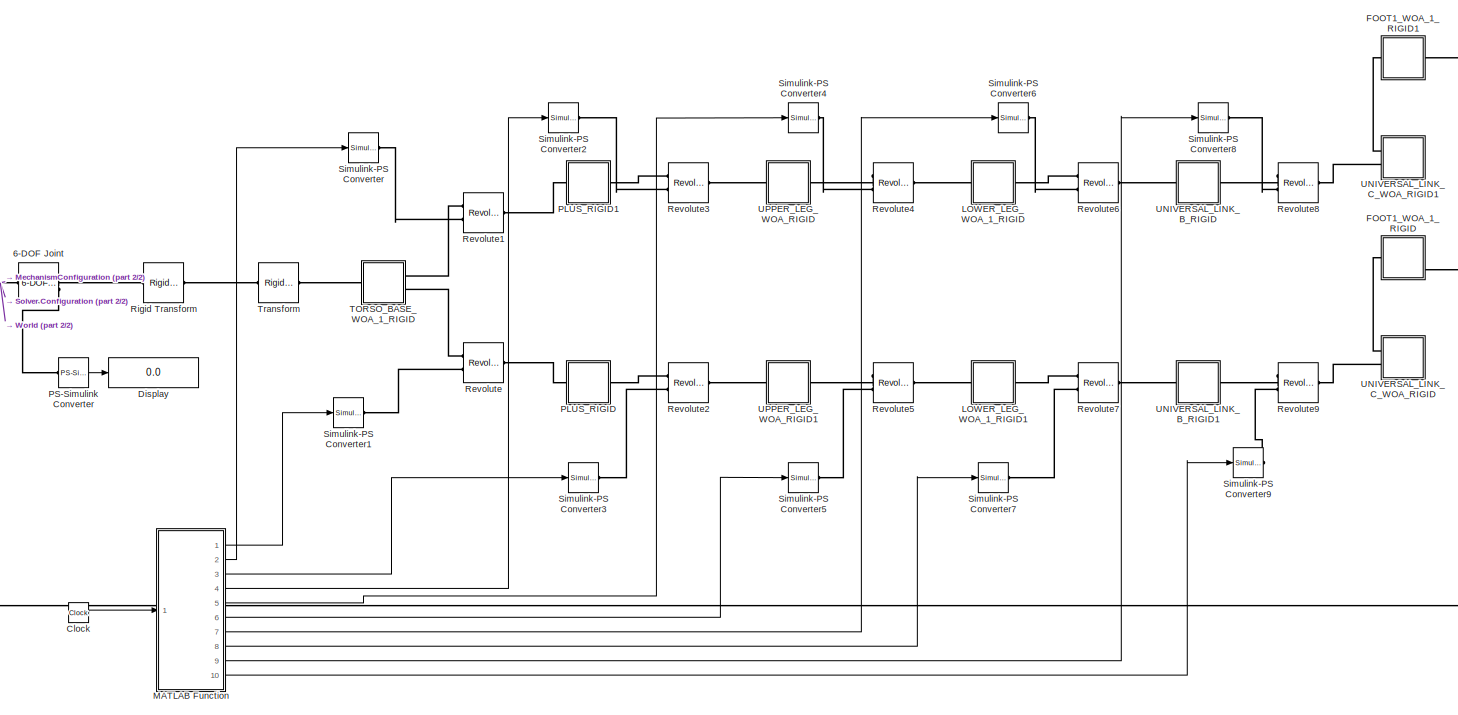
[diagram: root canvas - part 1/2, most of the canvas]
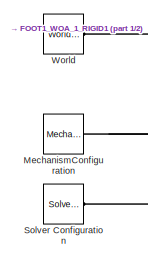
[diagram: root canvas - part 2/2, middle left region]
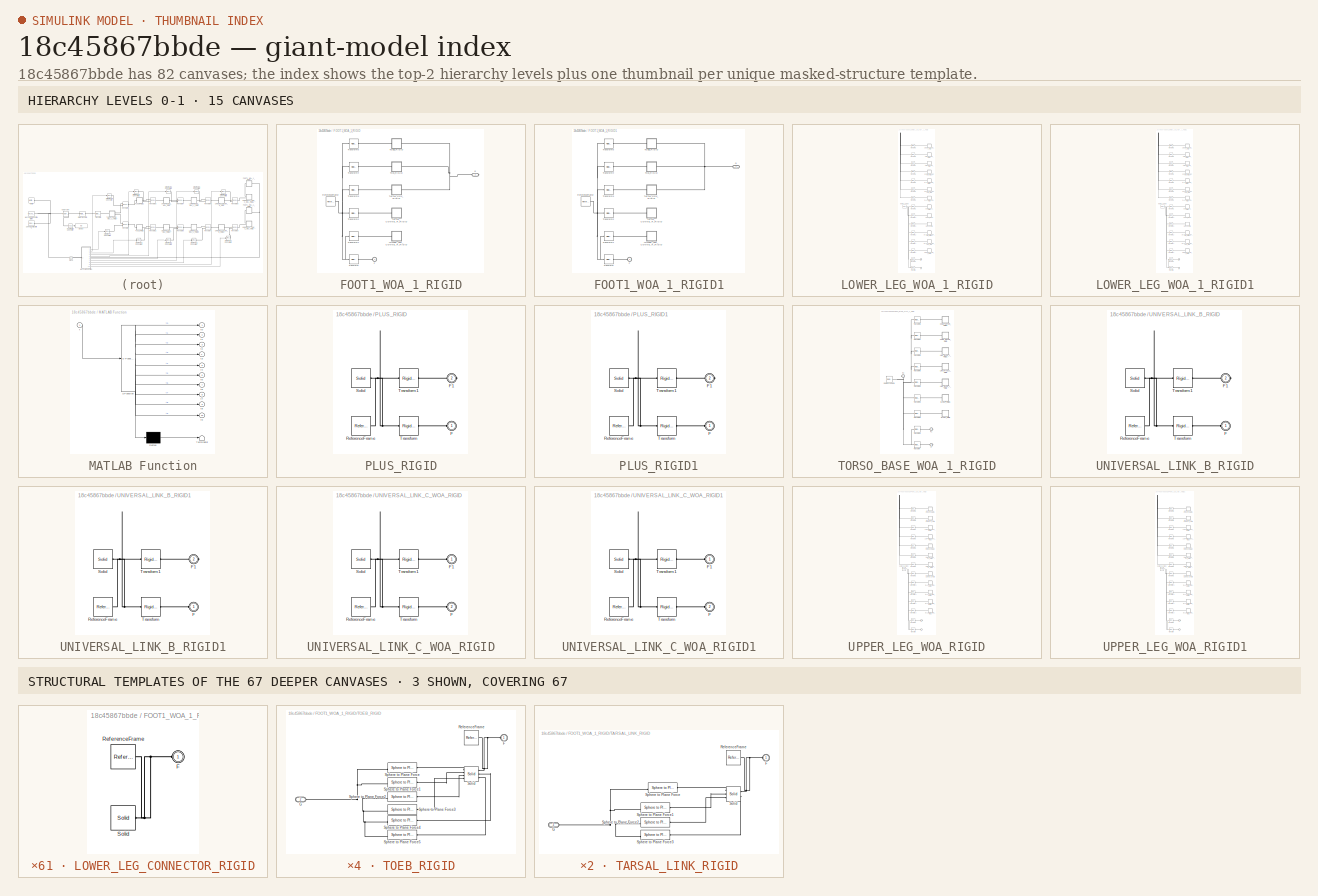
[diagram: thumbnail index - top-2 hierarchy levels (15 canvases) + 3 structural-template representatives of the remaining 67 canvases]
MODEL slx_18c45867bbde
KIND model
CONFIG AbsTol = auto
CONFIG EnableMultiTasking = off
CONFIG FixedStep = auto
CONFIG MaxStep = 1e-2
CONFIG MinStep = auto
CONFIG RelTol = 1e-3
CONFIG SampleTimeConstraint = Unconstrained
CONFIG Solver = ode15s
CONFIG SolverName = ode15s
CONFIG StartTime = 0.0
CONFIG StopTime = 50
BLOCK [Reference] 6-DOF Joint  REF=sm_lib/Joints/6-DOF Joint
  Ports = [0, 0, 0, 0, 0, 1, 2]
  SourceBlock = sm_lib/Joints/6-DOF Joint
  SourceProductBaseCode = MS
  SourceProductName = Simscape Multibody
  SourceType = 6-DOF Joint
BLOCK [Clock] Clock
  DisplayTime = on
BLOCK [Display] Display
  Decimation = 1
  Ports = [1]
BLOCK [SubSystem] FOOT1_WOA_1_RIGID
  Ports = [0, 0, 0, 0, 0, 1, 1]
  RequestExecContextInheritance = off
  Variant = off
BLOCK [PMIOPort] FOOT1_WOA_1_RIGID/F
  Port = 1
  Side = Left
BLOCK [PMIOPort] FOOT1_WOA_1_RIGID/G
  Port = 2
  Side = Right
BLOCK [SubSystem] FOOT1_WOA_1_RIGID/LOWER_LEG_CONNECTOR_RIGID
  Ports = [0, 0, 0, 0, 0, 1]
  RequestExecContextInheritance = off
  Variant = off
BLOCK [PMIOPort] FOOT1_WOA_1_RIGID/LOWER_LEG_CONNECTOR_RIGID/F
  Port = 1
  Side = Left
BLOCK [Reference] FOOT1_WOA_1_RIGID/LOWER_LEG_CONNECTOR_RIGID/ReferenceFrame  REF=sm_lib/Frames and
Transforms/Reference
Frame
  Ports = [0, 0, 0, 0, 0, 0, 1]
  SourceBlock = sm_lib/Frames and\nTransforms/Reference\nFrame
  SourceProductBaseCode = MS
  SourceProductName = Simscape Multibody
  SourceType = Reference\nFrame
BLOCK [Reference] FOOT1_WOA_1_RIGID/LOWER_LEG_CONNECTOR_RIGID/Solid  REF=sm_lib/Body Elements/Solid
  Ports = [0, 0, 0, 0, 0, 0, 1]
  SourceBlock = sm_lib/Body Elements/Solid
  SourceProductBaseCode = MS
  SourceProductName = Simscape Multibody
  SourceType = Solid
BLOCK [Reference] FOOT1_WOA_1_RIGID/ReferenceFrame  REF=sm_lib/Frames and
Transforms/Reference
Frame
  Ports = [0, 0, 0, 0, 0, 0, 1]
  SourceBlock = sm_lib/Frames and\nTransforms/Reference\nFrame
  SourceProductBaseCode = MS
  SourceProductName = Simscape Multibody
  SourceType = Reference\nFrame
BLOCK [SubSystem] FOOT1_WOA_1_RIGID/TARSAL_CONNECTOR_RIGID
  Ports = [0, 0, 0, 0, 0, 1]
  RequestExecContextInheritance = off
  Variant = off
BLOCK [PMIOPort] FOOT1_WOA_1_RIGID/TARSAL_CONNECTOR_RIGID/F
  Port = 1
  Side = Left
BLOCK [Reference] FOOT1_WOA_1_RIGID/TARSAL_CONNECTOR_RIGID/ReferenceFrame  REF=sm_lib/Frames and
Transforms/Reference
Frame
  Ports = [0, 0, 0, 0, 0, 0, 1]
  SourceBlock = sm_lib/Frames and\nTransforms/Reference\nFrame
  SourceProductBaseCode = MS
  SourceProductName = Simscape Multibody
  SourceType = Reference\nFrame
BLOCK [Reference] FOOT1_WOA_1_RIGID/TARSAL_CONNECTOR_RIGID/Solid  REF=sm_lib/Body Elements/Solid
  Ports = [0, 0, 0, 0, 0, 0, 1]
  SourceBlock = sm_lib/Body Elements/Solid
  SourceProductBaseCode = MS
  SourceProductName = Simscape Multibody
  SourceType = Solid
BLOCK [SubSystem] FOOT1_WOA_1_RIGID/TARSAL_LINK_RIGID
  Ports = [0, 0, 0, 0, 0, 1, 1]
  RequestExecContextInheritance = off
  Variant = off
BLOCK [PMIOPort] FOOT1_WOA_1_RIGID/TARSAL_LINK_RIGID/F
  Port = 1
  Side = Left
BLOCK [PMIOPort] FOOT1_WOA_1_RIGID/TARSAL_LINK_RIGID/G
  Port = 2
  Side = Right
BLOCK [Reference] FOOT1_WOA_1_RIGID/TARSAL_LINK_RIGID/ReferenceFrame  REF=sm_lib/Frames and
Transforms/Reference
Frame
  Ports = [0, 0, 0, 0, 0, 0, 1]
  SourceBlock = sm_lib/Frames and\nTransforms/Reference\nFrame
  SourceProductBaseCode = MS
  SourceProductName = Simscape Multibody
  SourceType = Reference\nFrame
BLOCK [Reference] FOOT1_WOA_1_RIGID/TARSAL_LINK_RIGID/Solid  REF=sm_lib/Body Elements/Solid
  Ports = [0, 0, 0, 0, 0, 3, 2]
  SourceBlock = sm_lib/Body Elements/Solid
  SourceProductBaseCode = MS
  SourceProductName = Simscape Multibody
  SourceType = Solid
BLOCK [Reference] FOOT1_WOA_1_RIGID/TARSAL_LINK_RIGID/Sphere to Plane Force  REF=Contact_Forces_Lib/3D/Sphere to Plane Force
  Ports = [0, 1, 0, 0, 0, 1, 1]
  SourceBlock = Contact_Forces_Lib/3D/Sphere to Plane Force
  SourceType = Sphere to Plane Force
BLOCK [Reference] FOOT1_WOA_1_RIGID/TARSAL_LINK_RIGID/Sphere to Plane Force1  REF=Contact_Forces_Lib/3D/Sphere to Plane Force
  Ports = [0, 1, 0, 0, 0, 1, 1]
  SourceBlock = Contact_Forces_Lib/3D/Sphere to Plane Force
  SourceType = Sphere to Plane Force
BLOCK [Reference] FOOT1_WOA_1_RIGID/TARSAL_LINK_RIGID/Sphere to Plane Force2  REF=Contact_Forces_Lib/3D/Sphere to Plane Force
  Ports = [0, 1, 0, 0, 0, 1, 1]
  SourceBlock = Contact_Forces_Lib/3D/Sphere to Plane Force
  SourceType = Sphere to Plane Force
BLOCK [Reference] FOOT1_WOA_1_RIGID/TARSAL_LINK_RIGID/Sphere to Plane Force3  REF=Contact_Forces_Lib/3D/Sphere to Plane Force
  Ports = [0, 1, 0, 0, 0, 1, 1]
  SourceBlock = Contact_Forces_Lib/3D/Sphere to Plane Force
  SourceType = Sphere to Plane Force
BLOCK [SubSystem] FOOT1_WOA_1_RIGID/TOEB_RIGID
  Ports = [0, 0, 0, 0, 0, 1, 1]
  RequestExecContextInheritance = off
  Variant = off
BLOCK [PMIOPort] FOOT1_WOA_1_RIGID/TOEB_RIGID/F
  Port = 1
  Side = Left
BLOCK [PMIOPort] FOOT1_WOA_1_RIGID/TOEB_RIGID/G
  Port = 2
  Side = Right
BLOCK [Reference] FOOT1_WOA_1_RIGID/TOEB_RIGID/ReferenceFrame  REF=sm_lib/Frames and
Transforms/Reference
Frame
  Ports = [0, 0, 0, 0, 0, 0, 1]
  SourceBlock = sm_lib/Frames and\nTransforms/Reference\nFrame
  SourceProductBaseCode = MS
  SourceProductName = Simscape Multibody
  SourceType = Reference\nFrame
BLOCK [Reference] FOOT1_WOA_1_RIGID/TOEB_RIGID/Solid  REF=sm_lib/Body Elements/Solid
  Ports = [0, 0, 0, 0, 0, 4, 3]
  SourceBlock = sm_lib/Body Elements/Solid
  SourceProductBaseCode = MS
  SourceProductName = Simscape Multibody
  SourceType = Solid
BLOCK [Reference] FOOT1_WOA_1_RIGID/TOEB_RIGID/Sphere to Plane Force  REF=Contact_Forces_Lib/3D/Sphere to Plane Force
  Ports = [0, 1, 0, 0, 0, 1, 1]
  SourceBlock = Contact_Forces_Lib/3D/Sphere to Plane Force
  SourceType = Sphere to Plane Force
BLOCK [Reference] FOOT1_WOA_1_RIGID/TOEB_RIGID/Sphere to Plane Force1  REF=Contact_Forces_Lib/3D/Sphere to Plane Force
  Ports = [0, 1, 0, 0, 0, 1, 1]
  SourceBlock = Contact_Forces_Lib/3D/Sphere to Plane Force
  SourceType = Sphere to Plane Force
BLOCK [Reference] FOOT1_WOA_1_RIGID/TOEB_RIGID/Sphere to Plane Force2  REF=Contact_Forces_Lib/3D/Sphere to Plane Force
  Ports = [0, 1, 0, 0, 0, 1, 1]
  SourceBlock = Contact_Forces_Lib/3D/Sphere to Plane Force
  SourceType = Sphere to Plane Force
BLOCK [Reference] FOOT1_WOA_1_RIGID/TOEB_RIGID/Sphere to Plane Force3  REF=Contact_Forces_Lib/3D/Sphere to Plane Force
  Ports = [0, 1, 0, 0, 0, 1, 1]
  SourceBlock = Contact_Forces_Lib/3D/Sphere to Plane Force
  SourceType = Sphere to Plane Force
BLOCK [Reference] FOOT1_WOA_1_RIGID/TOEB_RIGID/Sphere to Plane Force4  REF=Contact_Forces_Lib/3D/Sphere to Plane Force
  Ports = [0, 1, 0, 0, 0, 1, 1]
  SourceBlock = Contact_Forces_Lib/3D/Sphere to Plane Force
  SourceType = Sphere to Plane Force
BLOCK [Reference] FOOT1_WOA_1_RIGID/TOEB_RIGID/Sphere to Plane Force5  REF=Contact_Forces_Lib/3D/Sphere to Plane Force
  Ports = [0, 1, 0, 0, 0, 1, 1]
  SourceBlock = Contact_Forces_Lib/3D/Sphere to Plane Force
  SourceType = Sphere to Plane Force
BLOCK [SubSystem] FOOT1_WOA_1_RIGID/TOE_RIGID
  Ports = [0, 0, 0, 0, 0, 1, 1]
  RequestExecContextInheritance = off
  Variant = off
BLOCK [PMIOPort] FOOT1_WOA_1_RIGID/TOE_RIGID/F
  Port = 1
  Side = Left
BLOCK [PMIOPort] FOOT1_WOA_1_RIGID/TOE_RIGID/G
  Port = 2
  Side = Right
BLOCK [Reference] FOOT1_WOA_1_RIGID/TOE_RIGID/ReferenceFrame  REF=sm_lib/Frames and
Transforms/Reference
Frame
  Ports = [0, 0, 0, 0, 0, 0, 1]
  SourceBlock = sm_lib/Frames and\nTransforms/Reference\nFrame
  SourceProductBaseCode = MS
  SourceProductName = Simscape Multibody
  SourceType = Reference\nFrame
BLOCK [Reference] FOOT1_WOA_1_RIGID/TOE_RIGID/Solid  REF=sm_lib/Body Elements/Solid
  Ports = [0, 0, 0, 0, 0, 4, 3]
  SourceBlock = sm_lib/Body Elements/Solid
  SourceProductBaseCode = MS
  SourceProductName = Simscape Multibody
  SourceType = Solid
BLOCK [Reference] FOOT1_WOA_1_RIGID/TOE_RIGID/Sphere to Plane Force  REF=Contact_Forces_Lib/3D/Sphere to Plane Force
  Ports = [0, 1, 0, 0, 0, 1, 1]
  SourceBlock = Contact_Forces_Lib/3D/Sphere to Plane Force
  SourceType = Sphere to Plane Force
BLOCK [Reference] FOOT1_WOA_1_RIGID/TOE_RIGID/Sphere to Plane Force1  REF=Contact_Forces_Lib/3D/Sphere to Plane Force
  Ports = [0, 1, 0, 0, 0, 1, 1]
  SourceBlock = Contact_Forces_Lib/3D/Sphere to Plane Force
  SourceType = Sphere to Plane Force
BLOCK [Reference] FOOT1_WOA_1_RIGID/TOE_RIGID/Sphere to Plane Force2  REF=Contact_Forces_Lib/3D/Sphere to Plane Force
  Ports = [0, 1, 0, 0, 0, 1, 1]
  SourceBlock = Contact_Forces_Lib/3D/Sphere to Plane Force
  SourceType = Sphere to Plane Force
BLOCK [Reference] FOOT1_WOA_1_RIGID/TOE_RIGID/Sphere to Plane Force3  REF=Contact_Forces_Lib/3D/Sphere to Plane Force
  Ports = [0, 1, 0, 0, 0, 1, 1]
  SourceBlock = Contact_Forces_Lib/3D/Sphere to Plane Force
  SourceType = Sphere to Plane Force
BLOCK [Reference] FOOT1_WOA_1_RIGID/TOE_RIGID/Sphere to Plane Force4  REF=Contact_Forces_Lib/3D/Sphere to Plane Force
  Ports = [0, 1, 0, 0, 0, 1, 1]
  SourceBlock = Contact_Forces_Lib/3D/Sphere to Plane Force
  SourceType = Sphere to Plane Force
BLOCK [Reference] FOOT1_WOA_1_RIGID/TOE_RIGID/Sphere to Plane Force5  REF=Contact_Forces_Lib/3D/Sphere to Plane Force
  Ports = [0, 1, 0, 0, 0, 1, 1]
  SourceBlock = Contact_Forces_Lib/3D/Sphere to Plane Force
  SourceType = Sphere to Plane Force
BLOCK [Reference] FOOT1_WOA_1_RIGID/Transform  REF=sm_lib/Frames and
Transforms/Rigid
Transform
  Ports = [0, 0, 0, 0, 0, 1, 1]
  SourceBlock = sm_lib/Frames and\nTransforms/Rigid\nTransform
  SourceProductBaseCode = MS
  SourceProductName = Simscape Multibody
  SourceType = Rigid\nTransform
BLOCK [Reference] FOOT1_WOA_1_RIGID/Transform1  REF=sm_lib/Frames and
Transforms/Rigid
Transform
  Ports = [0, 0, 0, 0, 0, 1, 1]
  SourceBlock = sm_lib/Frames and\nTransforms/Rigid\nTransform
  SourceProductBaseCode = MS
  SourceProductName = Simscape Multibody
  SourceType = Rigid\nTransform
BLOCK [Reference] FOOT1_WOA_1_RIGID/Transform2  REF=sm_lib/Frames and
Transforms/Rigid
Transform
  Ports = [0, 0, 0, 0, 0, 1, 1]
  SourceBlock = sm_lib/Frames and\nTransforms/Rigid\nTransform
  SourceProductBaseCode = MS
  SourceProductName = Simscape Multibody
  SourceType = Rigid\nTransform
BLOCK [Reference] FOOT1_WOA_1_RIGID/Transform3  REF=sm_lib/Frames and
Transforms/Rigid
Transform
  Ports = [0, 0, 0, 0, 0, 1, 1]
  SourceBlock = sm_lib/Frames and\nTransforms/Rigid\nTransform
  SourceProductBaseCode = MS
  SourceProductName = Simscape Multibody
  SourceType = Rigid\nTransform
BLOCK [Reference] FOOT1_WOA_1_RIGID/Transform4  REF=sm_lib/Frames and
Transforms/Rigid
Transform
  Ports = [0, 0, 0, 0, 0, 1, 1]
  SourceBlock = sm_lib/Frames and\nTransforms/Rigid\nTransform
  SourceProductBaseCode = MS
  SourceProductName = Simscape Multibody
  SourceType = Rigid\nTransform
BLOCK [Reference] FOOT1_WOA_1_RIGID/Transform5  REF=sm_lib/Frames and
Transforms/Rigid
Transform
  Ports = [0, 0, 0, 0, 0, 1, 1]
  SourceBlock = sm_lib/Frames and\nTransforms/Rigid\nTransform
  SourceProductBaseCode = MS
  SourceProductName = Simscape Multibody
  SourceType = Rigid\nTransform
BLOCK [SubSystem] FOOT1_WOA_1_RIGID1
  Ports = [0, 0, 0, 0, 0, 1, 1]
  RequestExecContextInheritance = off
  Variant = off
BLOCK [PMIOPort] FOOT1_WOA_1_RIGID1/F
  Port = 1
  Side = Left
BLOCK [PMIOPort] FOOT1_WOA_1_RIGID1/G
  Port = 2
  Side = Right
BLOCK [SubSystem] FOOT1_WOA_1_RIGID1/LOWER_LEG_CONNECTOR_RIGID
  Ports = [0, 0, 0, 0, 0, 1]
  RequestExecContextInheritance = off
  Variant = off
BLOCK [PMIOPort] FOOT1_WOA_1_RIGID1/LOWER_LEG_CONNECTOR_RIGID/F
  Port = 1
  Side = Left
BLOCK [Reference] FOOT1_WOA_1_RIGID1/LOWER_LEG_CONNECTOR_RIGID/ReferenceFrame  REF=sm_lib/Frames and
Transforms/Reference
Frame
  Ports = [0, 0, 0, 0, 0, 0, 1]
  SourceBlock = sm_lib/Frames and\nTransforms/Reference\nFrame
  SourceProductBaseCode = MS
  SourceProductName = Simscape Multibody
  SourceType = Reference\nFrame
BLOCK [Reference] FOOT1_WOA_1_RIGID1/LOWER_LEG_CONNECTOR_RIGID/Solid  REF=sm_lib/Body Elements/Solid
  Ports = [0, 0, 0, 0, 0, 0, 1]
  SourceBlock = sm_lib/Body Elements/Solid
  SourceProductBaseCode = MS
  SourceProductName = Simscape Multibody
  SourceType = Solid
BLOCK [Reference] FOOT1_WOA_1_RIGID1/ReferenceFrame  REF=sm_lib/Frames and
Transforms/Reference
Frame
  Ports = [0, 0, 0, 0, 0, 0, 1]
  SourceBlock = sm_lib/Frames and\nTransforms/Reference\nFrame
  SourceProductBaseCode = MS
  SourceProductName = Simscape Multibody
  SourceType = Reference\nFrame
BLOCK [SubSystem] FOOT1_WOA_1_RIGID1/TARSAL_CONNECTOR_RIGID
  Ports = [0, 0, 0, 0, 0, 1]
  RequestExecContextInheritance = off
  Variant = off
BLOCK [PMIOPort] FOOT1_WOA_1_RIGID1/TARSAL_CONNECTOR_RIGID/F
  Port = 1
  Side = Left
BLOCK [Reference] FOOT1_WOA_1_RIGID1/TARSAL_CONNECTOR_RIGID/ReferenceFrame  REF=sm_lib/Frames and
Transforms/Reference
Frame
  Ports = [0, 0, 0, 0, 0, 0, 1]
  SourceBlock = sm_lib/Frames and\nTransforms/Reference\nFrame
  SourceProductBaseCode = MS
  SourceProductName = Simscape Multibody
  SourceType = Reference\nFrame
BLOCK [Reference] FOOT1_WOA_1_RIGID1/TARSAL_CONNECTOR_RIGID/Solid  REF=sm_lib/Body Elements/Solid
  Ports = [0, 0, 0, 0, 0, 0, 1]
  SourceBlock = sm_lib/Body Elements/Solid
  SourceProductBaseCode = MS
  SourceProductName = Simscape Multibody
  SourceType = Solid
BLOCK [SubSystem] FOOT1_WOA_1_RIGID1/TARSAL_LINK_RIGID
  Ports = [0, 0, 0, 0, 0, 1, 1]
  RequestExecContextInheritance = off
  Variant = off
BLOCK [PMIOPort] FOOT1_WOA_1_RIGID1/TARSAL_LINK_RIGID/F
  Port = 1
  Side = Left
BLOCK [PMIOPort] FOOT1_WOA_1_RIGID1/TARSAL_LINK_RIGID/G
  Port = 2
  Side = Right
BLOCK [Reference] FOOT1_WOA_1_RIGID1/TARSAL_LINK_RIGID/ReferenceFrame  REF=sm_lib/Frames and
Transforms/Reference
Frame
  Ports = [0, 0, 0, 0, 0, 0, 1]
  SourceBlock = sm_lib/Frames and\nTransforms/Reference\nFrame
  SourceProductBaseCode = MS
  SourceProductName = Simscape Multibody
  SourceType = Reference\nFrame
BLOCK [Reference] FOOT1_WOA_1_RIGID1/TARSAL_LINK_RIGID/Solid  REF=sm_lib/Body Elements/Solid
  Ports = [0, 0, 0, 0, 0, 3, 2]
  SourceBlock = sm_lib/Body Elements/Solid
  SourceProductBaseCode = MS
  SourceProductName = Simscape Multibody
  SourceType = Solid
BLOCK [Reference] FOOT1_WOA_1_RIGID1/TARSAL_LINK_RIGID/Sphere to Plane Force  REF=Contact_Forces_Lib/3D/Sphere to Plane Force
  Ports = [0, 1, 0, 0, 0, 1, 1]
  SourceBlock = Contact_Forces_Lib/3D/Sphere to Plane Force
  SourceType = Sphere to Plane Force
BLOCK [Reference] FOOT1_WOA_1_RIGID1/TARSAL_LINK_RIGID/Sphere to Plane Force1  REF=Contact_Forces_Lib/3D/Sphere to Plane Force
  Ports = [0, 1, 0, 0, 0, 1, 1]
  SourceBlock = Contact_Forces_Lib/3D/Sphere to Plane Force
  SourceType = Sphere to Plane Force
BLOCK [Reference] FOOT1_WOA_1_RIGID1/TARSAL_LINK_RIGID/Sphere to Plane Force2  REF=Contact_Forces_Lib/3D/Sphere to Plane Force
  Ports = [0, 1, 0, 0, 0, 1, 1]
  SourceBlock = Contact_Forces_Lib/3D/Sphere to Plane Force
  SourceType = Sphere to Plane Force
BLOCK [Reference] FOOT1_WOA_1_RIGID1/TARSAL_LINK_RIGID/Sphere to Plane Force3  REF=Contact_Forces_Lib/3D/Sphere to Plane Force
  Ports = [0, 1, 0, 0, 0, 1, 1]
  SourceBlock = Contact_Forces_Lib/3D/Sphere to Plane Force
  SourceType = Sphere to Plane Force
BLOCK [SubSystem] FOOT1_WOA_1_RIGID1/TOEB_RIGID
  Ports = [0, 0, 0, 0, 0, 1, 1]
  RequestExecContextInheritance = off
  Variant = off
BLOCK [PMIOPort] FOOT1_WOA_1_RIGID1/TOEB_RIGID/F
  Port = 1
  Side = Left
BLOCK [PMIOPort] FOOT1_WOA_1_RIGID1/TOEB_RIGID/G
  Port = 2
  Side = Right
BLOCK [Reference] FOOT1_WOA_1_RIGID1/TOEB_RIGID/ReferenceFrame  REF=sm_lib/Frames and
Transforms/Reference
Frame
  Ports = [0, 0, 0, 0, 0, 0, 1]
  SourceBlock = sm_lib/Frames and\nTransforms/Reference\nFrame
  SourceProductBaseCode = MS
  SourceProductName = Simscape Multibody
  SourceType = Reference\nFrame
BLOCK [Reference] FOOT1_WOA_1_RIGID1/TOEB_RIGID/Solid  REF=sm_lib/Body Elements/Solid
  Ports = [0, 0, 0, 0, 0, 4, 3]
  SourceBlock = sm_lib/Body Elements/Solid
  SourceProductBaseCode = MS
  SourceProductName = Simscape Multibody
  SourceType = Solid
BLOCK [Reference] FOOT1_WOA_1_RIGID1/TOEB_RIGID/Sphere to Plane Force  REF=Contact_Forces_Lib/3D/Sphere to Plane Force
  Ports = [0, 1, 0, 0, 0, 1, 1]
  SourceBlock = Contact_Forces_Lib/3D/Sphere to Plane Force
  SourceType = Sphere to Plane Force
BLOCK [Reference] FOOT1_WOA_1_RIGID1/TOEB_RIGID/Sphere to Plane Force1  REF=Contact_Forces_Lib/3D/Sphere to Plane Force
  Ports = [0, 1, 0, 0, 0, 1, 1]
  SourceBlock = Contact_Forces_Lib/3D/Sphere to Plane Force
  SourceType = Sphere to Plane Force
BLOCK [Reference] FOOT1_WOA_1_RIGID1/TOEB_RIGID/Sphere to Plane Force2  REF=Contact_Forces_Lib/3D/Sphere to Plane Force
  Ports = [0, 1, 0, 0, 0, 1, 1]
  SourceBlock = Contact_Forces_Lib/3D/Sphere to Plane Force
  SourceType = Sphere to Plane Force
BLOCK [Reference] FOOT1_WOA_1_RIGID1/TOEB_RIGID/Sphere to Plane Force3  REF=Contact_Forces_Lib/3D/Sphere to Plane Force
  Ports = [0, 1, 0, 0, 0, 1, 1]
  SourceBlock = Contact_Forces_Lib/3D/Sphere to Plane Force
  SourceType = Sphere to Plane Force
BLOCK [Reference] FOOT1_WOA_1_RIGID1/TOEB_RIGID/Sphere to Plane Force4  REF=Contact_Forces_Lib/3D/Sphere to Plane Force
  Ports = [0, 1, 0, 0, 0, 1, 1]
  SourceBlock = Contact_Forces_Lib/3D/Sphere to Plane Force
  SourceType = Sphere to Plane Force
BLOCK [Reference] FOOT1_WOA_1_RIGID1/TOEB_RIGID/Sphere to Plane Force5  REF=Contact_Forces_Lib/3D/Sphere to Plane Force
  Ports = [0, 1, 0, 0, 0, 1, 1]
  SourceBlock = Contact_Forces_Lib/3D/Sphere to Plane Force
  SourceType = Sphere to Plane Force
BLOCK [SubSystem] FOOT1_WOA_1_RIGID1/TOE_RIGID
  Ports = [0, 0, 0, 0, 0, 1, 1]
  RequestExecContextInheritance = off
  Variant = off
BLOCK [PMIOPort] FOOT1_WOA_1_RIGID1/TOE_RIGID/F
  Port = 1
  Side = Left
BLOCK [PMIOPort] FOOT1_WOA_1_RIGID1/TOE_RIGID/G
  Port = 2
  Side = Right
BLOCK [Reference] FOOT1_WOA_1_RIGID1/TOE_RIGID/ReferenceFrame  REF=sm_lib/Frames and
Transforms/Reference
Frame
  Ports = [0, 0, 0, 0, 0, 0, 1]
  SourceBlock = sm_lib/Frames and\nTransforms/Reference\nFrame
  SourceProductBaseCode = MS
  SourceProductName = Simscape Multibody
  SourceType = Reference\nFrame
BLOCK [Reference] FOOT1_WOA_1_RIGID1/TOE_RIGID/Solid  REF=sm_lib/Body Elements/Solid
  Ports = [0, 0, 0, 0, 0, 4, 3]
  SourceBlock = sm_lib/Body Elements/Solid
  SourceProductBaseCode = MS
  SourceProductName = Simscape Multibody
  SourceType = Solid
BLOCK [Reference] FOOT1_WOA_1_RIGID1/TOE_RIGID/Sphere to Plane Force  REF=Contact_Forces_Lib/3D/Sphere to Plane Force
  Ports = [0, 1, 0, 0, 0, 1, 1]
  SourceBlock = Contact_Forces_Lib/3D/Sphere to Plane Force
  SourceType = Sphere to Plane Force
BLOCK [Reference] FOOT1_WOA_1_RIGID1/TOE_RIGID/Sphere to Plane Force1  REF=Contact_Forces_Lib/3D/Sphere to Plane Force
  Ports = [0, 1, 0, 0, 0, 1, 1]
  SourceBlock = Contact_Forces_Lib/3D/Sphere to Plane Force
  SourceType = Sphere to Plane Force
BLOCK [Reference] FOOT1_WOA_1_RIGID1/TOE_RIGID/Sphere to Plane Force2  REF=Contact_Forces_Lib/3D/Sphere to Plane Force
  Ports = [0, 1, 0, 0, 0, 1, 1]
  SourceBlock = Contact_Forces_Lib/3D/Sphere to Plane Force
  SourceType = Sphere to Plane Force
BLOCK [Reference] FOOT1_WOA_1_RIGID1/TOE_RIGID/Sphere to Plane Force3  REF=Contact_Forces_Lib/3D/Sphere to Plane Force
  Ports = [0, 1, 0, 0, 0, 1, 1]
  SourceBlock = Contact_Forces_Lib/3D/Sphere to Plane Force
  SourceType = Sphere to Plane Force
BLOCK [Reference] FOOT1_WOA_1_RIGID1/TOE_RIGID/Sphere to Plane Force4  REF=Contact_Forces_Lib/3D/Sphere to Plane Force
  Ports = [0, 1, 0, 0, 0, 1, 1]
  SourceBlock = Contact_Forces_Lib/3D/Sphere to Plane Force
  SourceType = Sphere to Plane Force
BLOCK [Reference] FOOT1_WOA_1_RIGID1/TOE_RIGID/Sphere to Plane Force5  REF=Contact_Forces_Lib/3D/Sphere to Plane Force
  Ports = [0, 1, 0, 0, 0, 1, 1]
  SourceBlock = Contact_Forces_Lib/3D/Sphere to Plane Force
  SourceType = Sphere to Plane Force
BLOCK [Reference] FOOT1_WOA_1_RIGID1/Transform  REF=sm_lib/Frames and
Transforms/Rigid
Transform
  Ports = [0, 0, 0, 0, 0, 1, 1]
  SourceBlock = sm_lib/Frames and\nTransforms/Rigid\nTransform
  SourceProductBaseCode = MS
  SourceProductName = Simscape Multibody
  SourceType = Rigid\nTransform
BLOCK [Reference] FOOT1_WOA_1_RIGID1/Transform1  REF=sm_lib/Frames and
Transforms/Rigid
Transform
  Ports = [0, 0, 0, 0, 0, 1, 1]
  SourceBlock = sm_lib/Frames and\nTransforms/Rigid\nTransform
  SourceProductBaseCode = MS
  SourceProductName = Simscape Multibody
  SourceType = Rigid\nTransform
BLOCK [Reference] FOOT1_WOA_1_RIGID1/Transform2  REF=sm_lib/Frames and
Transforms/Rigid
Transform
  Ports = [0, 0, 0, 0, 0, 1, 1]
  SourceBlock = sm_lib/Frames and\nTransforms/Rigid\nTransform
  SourceProductBaseCode = MS
  SourceProductName = Simscape Multibody
  SourceType = Rigid\nTransform
BLOCK [Reference] FOOT1_WOA_1_RIGID1/Transform3  REF=sm_lib/Frames and
Transforms/Rigid
Transform
  Ports = [0, 0, 0, 0, 0, 1, 1]
  SourceBlock = sm_lib/Frames and\nTransforms/Rigid\nTransform
  SourceProductBaseCode = MS
  SourceProductName = Simscape Multibody
  SourceType = Rigid\nTransform
BLOCK [Reference] FOOT1_WOA_1_RIGID1/Transform4  REF=sm_lib/Frames and
Transforms/Rigid
Transform
  Ports = [0, 0, 0, 0, 0, 1, 1]
  SourceBlock = sm_lib/Frames and\nTransforms/Rigid\nTransform
  SourceProductBaseCode = MS
  SourceProductName = Simscape Multibody
  SourceType = Rigid\nTransform
BLOCK [Reference] FOOT1_WOA_1_RIGID1/Transform5  REF=sm_lib/Frames and
Transforms/Rigid
Transform
  Ports = [0, 0, 0, 0, 0, 1, 1]
  SourceBlock = sm_lib/Frames and\nTransforms/Rigid\nTransform
  SourceProductBaseCode = MS
  SourceProductName = Simscape Multibody
  SourceType = Rigid\nTransform
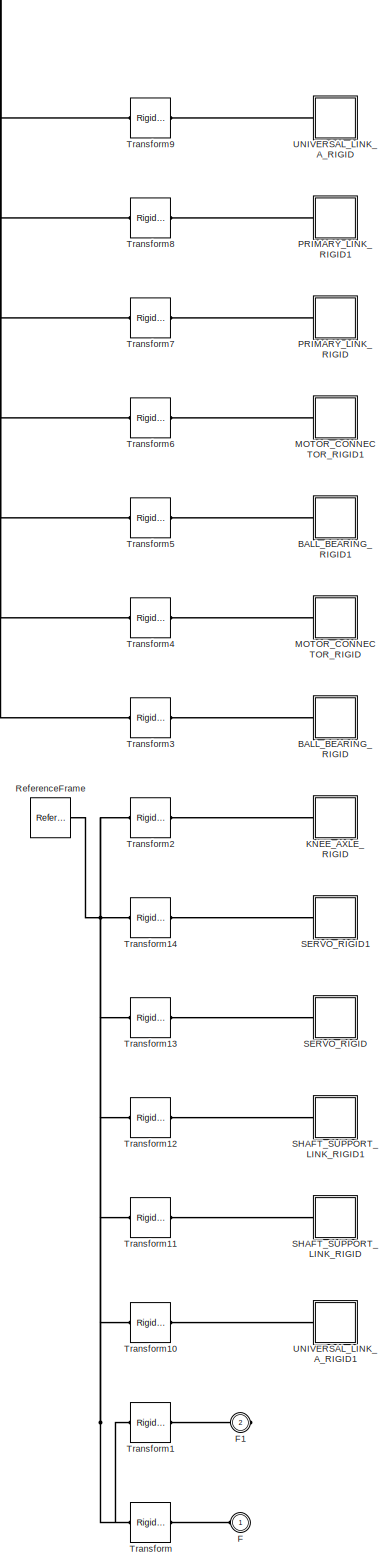
[diagram: LOWER_LEG_WOA_1_RIGID - part 1/1, most of the canvas]
BLOCK [SubSystem] LOWER_LEG_WOA_1_RIGID
  Ports = [0, 0, 0, 0, 0, 1, 1]
  RequestExecContextInheritance = off
  Variant = off
BLOCK [SubSystem] LOWER_LEG_WOA_1_RIGID/BALL_BEARING_RIGID
  Ports = [0, 0, 0, 0, 0, 1]
  RequestExecContextInheritance = off
  Variant = off
BLOCK [PMIOPort] LOWER_LEG_WOA_1_RIGID/BALL_BEARING_RIGID/F
  Port = 1
  Side = Left
BLOCK [Reference] LOWER_LEG_WOA_1_RIGID/BALL_BEARING_RIGID/ReferenceFrame  REF=sm_lib/Frames and
Transforms/Reference
Frame
  Ports = [0, 0, 0, 0, 0, 0, 1]
  SourceBlock = sm_lib/Frames and\nTransforms/Reference\nFrame
  SourceProductBaseCode = MS
  SourceProductName = Simscape Multibody
  SourceType = Reference\nFrame
BLOCK [Reference] LOWER_LEG_WOA_1_RIGID/BALL_BEARING_RIGID/Solid  REF=sm_lib/Body Elements/Solid
  Ports = [0, 0, 0, 0, 0, 0, 1]
  SourceBlock = sm_lib/Body Elements/Solid
  SourceProductBaseCode = MS
  SourceProductName = Simscape Multibody
  SourceType = Solid
BLOCK [SubSystem] LOWER_LEG_WOA_1_RIGID/BALL_BEARING_RIGID1
  Ports = [0, 0, 0, 0, 0, 1]
  RequestExecContextInheritance = off
  Variant = off
BLOCK [PMIOPort] LOWER_LEG_WOA_1_RIGID/BALL_BEARING_RIGID1/F
  Port = 1
  Side = Left
BLOCK [Reference] LOWER_LEG_WOA_1_RIGID/BALL_BEARING_RIGID1/ReferenceFrame  REF=sm_lib/Frames and
Transforms/Reference
Frame
  Ports = [0, 0, 0, 0, 0, 0, 1]
  SourceBlock = sm_lib/Frames and\nTransforms/Reference\nFrame
  SourceProductBaseCode = MS
  SourceProductName = Simscape Multibody
  SourceType = Reference\nFrame
BLOCK [Reference] LOWER_LEG_WOA_1_RIGID/BALL_BEARING_RIGID1/Solid  REF=sm_lib/Body Elements/Solid
  Ports = [0, 0, 0, 0, 0, 0, 1]
  SourceBlock = sm_lib/Body Elements/Solid
  SourceProductBaseCode = MS
  SourceProductName = Simscape Multibody
  SourceType = Solid
BLOCK [PMIOPort] LOWER_LEG_WOA_1_RIGID/F
  Port = 1
  Side = Left
BLOCK [PMIOPort] LOWER_LEG_WOA_1_RIGID/F1
  Port = 2
  Side = Right
BLOCK [SubSystem] LOWER_LEG_WOA_1_RIGID/KNEE_AXLE_RIGID
  Ports = [0, 0, 0, 0, 0, 1]
  RequestExecContextInheritance = off
  Variant = off
BLOCK [PMIOPort] LOWER_LEG_WOA_1_RIGID/KNEE_AXLE_RIGID/F
  Port = 1
  Side = Left
BLOCK [Reference] LOWER_LEG_WOA_1_RIGID/KNEE_AXLE_RIGID/ReferenceFrame  REF=sm_lib/Frames and
Transforms/Reference
Frame
  Ports = [0, 0, 0, 0, 0, 0, 1]
  SourceBlock = sm_lib/Frames and\nTransforms/Reference\nFrame
  SourceProductBaseCode = MS
  SourceProductName = Simscape Multibody
  SourceType = Reference\nFrame
BLOCK [Reference] LOWER_LEG_WOA_1_RIGID/KNEE_AXLE_RIGID/Solid  REF=sm_lib/Body Elements/Solid
  Ports = [0, 0, 0, 0, 0, 0, 1]
  SourceBlock = sm_lib/Body Elements/Solid
  SourceProductBaseCode = MS
  SourceProductName = Simscape Multibody
  SourceType = Solid
BLOCK [SubSystem] LOWER_LEG_WOA_1_RIGID/MOTOR_CONNECTOR_RIGID
  Ports = [0, 0, 0, 0, 0, 1]
  RequestExecContextInheritance = off
  Variant = off
BLOCK [PMIOPort] LOWER_LEG_WOA_1_RIGID/MOTOR_CONNECTOR_RIGID/F
  Port = 1
  Side = Left
BLOCK [Reference] LOWER_LEG_WOA_1_RIGID/MOTOR_CONNECTOR_RIGID/ReferenceFrame  REF=sm_lib/Frames and
Transforms/Reference
Frame
  Ports = [0, 0, 0, 0, 0, 0, 1]
  SourceBlock = sm_lib/Frames and\nTransforms/Reference\nFrame
  SourceProductBaseCode = MS
  SourceProductName = Simscape Multibody
  SourceType = Reference\nFrame
BLOCK [Reference] LOWER_LEG_WOA_1_RIGID/MOTOR_CONNECTOR_RIGID/Solid  REF=sm_lib/Body Elements/Solid
  Ports = [0, 0, 0, 0, 0, 0, 1]
  SourceBlock = sm_lib/Body Elements/Solid
  SourceProductBaseCode = MS
  SourceProductName = Simscape Multibody
  SourceType = Solid
BLOCK [SubSystem] LOWER_LEG_WOA_1_RIGID/MOTOR_CONNECTOR_RIGID1
  Ports = [0, 0, 0, 0, 0, 1]
  RequestExecContextInheritance = off
  Variant = off
BLOCK [PMIOPort] LOWER_LEG_WOA_1_RIGID/MOTOR_CONNECTOR_RIGID1/F
  Port = 1
  Side = Left
BLOCK [Reference] LOWER_LEG_WOA_1_RIGID/MOTOR_CONNECTOR_RIGID1/ReferenceFrame  REF=sm_lib/Frames and
Transforms/Reference
Frame
  Ports = [0, 0, 0, 0, 0, 0, 1]
  SourceBlock = sm_lib/Frames and\nTransforms/Reference\nFrame
  SourceProductBaseCode = MS
  SourceProductName = Simscape Multibody
  SourceType = Reference\nFrame
BLOCK [Reference] LOWER_LEG_WOA_1_RIGID/MOTOR_CONNECTOR_RIGID1/Solid  REF=sm_lib/Body Elements/Solid
  Ports = [0, 0, 0, 0, 0, 0, 1]
  SourceBlock = sm_lib/Body Elements/Solid
  SourceProductBaseCode = MS
  SourceProductName = Simscape Multibody
  SourceType = Solid
BLOCK [SubSystem] LOWER_LEG_WOA_1_RIGID/PRIMARY_LINK_RIGID
  Ports = [0, 0, 0, 0, 0, 1]
  RequestExecContextInheritance = off
  Variant = off
BLOCK [PMIOPort] LOWER_LEG_WOA_1_RIGID/PRIMARY_LINK_RIGID/F
  Port = 1
  Side = Left
BLOCK [Reference] LOWER_LEG_WOA_1_RIGID/PRIMARY_LINK_RIGID/ReferenceFrame  REF=sm_lib/Frames and
Transforms/Reference
Frame
  Ports = [0, 0, 0, 0, 0, 0, 1]
  SourceBlock = sm_lib/Frames and\nTransforms/Reference\nFrame
  SourceProductBaseCode = MS
  SourceProductName = Simscape Multibody
  SourceType = Reference\nFrame
BLOCK [Reference] LOWER_LEG_WOA_1_RIGID/PRIMARY_LINK_RIGID/Solid  REF=sm_lib/Body Elements/Solid
  Ports = [0, 0, 0, 0, 0, 0, 1]
  SourceBlock = sm_lib/Body Elements/Solid
  SourceProductBaseCode = MS
  SourceProductName = Simscape Multibody
  SourceType = Solid
BLOCK [SubSystem] LOWER_LEG_WOA_1_RIGID/PRIMARY_LINK_RIGID1
  Ports = [0, 0, 0, 0, 0, 1]
  RequestExecContextInheritance = off
  Variant = off
BLOCK [PMIOPort] LOWER_LEG_WOA_1_RIGID/PRIMARY_LINK_RIGID1/F
  Port = 1
  Side = Left
BLOCK [Reference] LOWER_LEG_WOA_1_RIGID/PRIMARY_LINK_RIGID1/ReferenceFrame  REF=sm_lib/Frames and
Transforms/Reference
Frame
  Ports = [0, 0, 0, 0, 0, 0, 1]
  SourceBlock = sm_lib/Frames and\nTransforms/Reference\nFrame
  SourceProductBaseCode = MS
  SourceProductName = Simscape Multibody
  SourceType = Reference\nFrame
BLOCK [Reference] LOWER_LEG_WOA_1_RIGID/PRIMARY_LINK_RIGID1/Solid  REF=sm_lib/Body Elements/Solid
  Ports = [0, 0, 0, 0, 0, 0, 1]
  SourceBlock = sm_lib/Body Elements/Solid
  SourceProductBaseCode = MS
  SourceProductName = Simscape Multibody
  SourceType = Solid
BLOCK [Reference] LOWER_LEG_WOA_1_RIGID/ReferenceFrame  REF=sm_lib/Frames and
Transforms/Reference
Frame
  Ports = [0, 0, 0, 0, 0, 0, 1]
  SourceBlock = sm_lib/Frames and\nTransforms/Reference\nFrame
  SourceProductBaseCode = MS
  SourceProductName = Simscape Multibody
  SourceType = Reference\nFrame
BLOCK [SubSystem] LOWER_LEG_WOA_1_RIGID/SERVO_RIGID
  Ports = [0, 0, 0, 0, 0, 1]
  RequestExecContextInheritance = off
  Variant = off
BLOCK [PMIOPort] LOWER_LEG_WOA_1_RIGID/SERVO_RIGID/F
  Port = 1
  Side = Left
BLOCK [Reference] LOWER_LEG_WOA_1_RIGID/SERVO_RIGID/ReferenceFrame  REF=sm_lib/Frames and
Transforms/Reference
Frame
  Ports = [0, 0, 0, 0, 0, 0, 1]
  SourceBlock = sm_lib/Frames and\nTransforms/Reference\nFrame
  SourceProductBaseCode = MS
  SourceProductName = Simscape Multibody
  SourceType = Reference\nFrame
BLOCK [Reference] LOWER_LEG_WOA_1_RIGID/SERVO_RIGID/Solid  REF=sm_lib/Body Elements/Solid
  Ports = [0, 0, 0, 0, 0, 0, 1]
  SourceBlock = sm_lib/Body Elements/Solid
  SourceProductBaseCode = MS
  SourceProductName = Simscape Multibody
  SourceType = Solid
BLOCK [SubSystem] LOWER_LEG_WOA_1_RIGID/SERVO_RIGID1
  Ports = [0, 0, 0, 0, 0, 1]
  RequestExecContextInheritance = off
  Variant = off
BLOCK [PMIOPort] LOWER_LEG_WOA_1_RIGID/SERVO_RIGID1/F
  Port = 1
  Side = Left
BLOCK [Reference] LOWER_LEG_WOA_1_RIGID/SERVO_RIGID1/ReferenceFrame  REF=sm_lib/Frames and
Transforms/Reference
Frame
  Ports = [0, 0, 0, 0, 0, 0, 1]
  SourceBlock = sm_lib/Frames and\nTransforms/Reference\nFrame
  SourceProductBaseCode = MS
  SourceProductName = Simscape Multibody
  SourceType = Reference\nFrame
BLOCK [Reference] LOWER_LEG_WOA_1_RIGID/SERVO_RIGID1/Solid  REF=sm_lib/Body Elements/Solid
  Ports = [0, 0, 0, 0, 0, 0, 1]
  SourceBlock = sm_lib/Body Elements/Solid
  SourceProductBaseCode = MS
  SourceProductName = Simscape Multibody
  SourceType = Solid
BLOCK [SubSystem] LOWER_LEG_WOA_1_RIGID/SHAFT_SUPPORT_LINK_RIGID
  Ports = [0, 0, 0, 0, 0, 1]
  RequestExecContextInheritance = off
  Variant = off
BLOCK [PMIOPort] LOWER_LEG_WOA_1_RIGID/SHAFT_SUPPORT_LINK_RIGID/F
  Port = 1
  Side = Left
BLOCK [Reference] LOWER_LEG_WOA_1_RIGID/SHAFT_SUPPORT_LINK_RIGID/ReferenceFrame  REF=sm_lib/Frames and
Transforms/Reference
Frame
  Ports = [0, 0, 0, 0, 0, 0, 1]
  SourceBlock = sm_lib/Frames and\nTransforms/Reference\nFrame
  SourceProductBaseCode = MS
  SourceProductName = Simscape Multibody
  SourceType = Reference\nFrame
BLOCK [Reference] LOWER_LEG_WOA_1_RIGID/SHAFT_SUPPORT_LINK_RIGID/Solid  REF=sm_lib/Body Elements/Solid
  Ports = [0, 0, 0, 0, 0, 0, 1]
  SourceBlock = sm_lib/Body Elements/Solid
  SourceProductBaseCode = MS
  SourceProductName = Simscape Multibody
  SourceType = Solid
BLOCK [SubSystem] LOWER_LEG_WOA_1_RIGID/SHAFT_SUPPORT_LINK_RIGID1
  Ports = [0, 0, 0, 0, 0, 1]
  RequestExecContextInheritance = off
  Variant = off
BLOCK [PMIOPort] LOWER_LEG_WOA_1_RIGID/SHAFT_SUPPORT_LINK_RIGID1/F
  Port = 1
  Side = Left
BLOCK [Reference] LOWER_LEG_WOA_1_RIGID/SHAFT_SUPPORT_LINK_RIGID1/ReferenceFrame  REF=sm_lib/Frames and
Transforms/Reference
Frame
  Ports = [0, 0, 0, 0, 0, 0, 1]
  SourceBlock = sm_lib/Frames and\nTransforms/Reference\nFrame
  SourceProductBaseCode = MS
  SourceProductName = Simscape Multibody
  SourceType = Reference\nFrame
BLOCK [Reference] LOWER_LEG_WOA_1_RIGID/SHAFT_SUPPORT_LINK_RIGID1/Solid  REF=sm_lib/Body Elements/Solid
  Ports = [0, 0, 0, 0, 0, 0, 1]
  SourceBlock = sm_lib/Body Elements/Solid
  SourceProductBaseCode = MS
  SourceProductName = Simscape Multibody
  SourceType = Solid
BLOCK [Reference] LOWER_LEG_WOA_1_RIGID/Transform  REF=sm_lib/Frames and
Transforms/Rigid
Transform
  Ports = [0, 0, 0, 0, 0, 1, 1]
  SourceBlock = sm_lib/Frames and\nTransforms/Rigid\nTransform
  SourceProductBaseCode = MS
  SourceProductName = Simscape Multibody
  SourceType = Rigid\nTransform
BLOCK [Reference] LOWER_LEG_WOA_1_RIGID/Transform1  REF=sm_lib/Frames and
Transforms/Rigid
Transform
  Ports = [0, 0, 0, 0, 0, 1, 1]
  SourceBlock = sm_lib/Frames and\nTransforms/Rigid\nTransform
  SourceProductBaseCode = MS
  SourceProductName = Simscape Multibody
  SourceType = Rigid\nTransform
BLOCK [Reference] LOWER_LEG_WOA_1_RIGID/Transform10  REF=sm_lib/Frames and
Transforms/Rigid
Transform
  Ports = [0, 0, 0, 0, 0, 1, 1]
  SourceBlock = sm_lib/Frames and\nTransforms/Rigid\nTransform
  SourceProductBaseCode = MS
  SourceProductName = Simscape Multibody
  SourceType = Rigid\nTransform
BLOCK [Reference] LOWER_LEG_WOA_1_RIGID/Transform11  REF=sm_lib/Frames and
Transforms/Rigid
Transform
  Ports = [0, 0, 0, 0, 0, 1, 1]
  SourceBlock = sm_lib/Frames and\nTransforms/Rigid\nTransform
  SourceProductBaseCode = MS
  SourceProductName = Simscape Multibody
  SourceType = Rigid\nTransform
BLOCK [Reference] LOWER_LEG_WOA_1_RIGID/Transform12  REF=sm_lib/Frames and
Transforms/Rigid
Transform
  Ports = [0, 0, 0, 0, 0, 1, 1]
  SourceBlock = sm_lib/Frames and\nTransforms/Rigid\nTransform
  SourceProductBaseCode = MS
  SourceProductName = Simscape Multibody
  SourceType = Rigid\nTransform
BLOCK [Reference] LOWER_LEG_WOA_1_RIGID/Transform13  REF=sm_lib/Frames and
Transforms/Rigid
Transform
  Ports = [0, 0, 0, 0, 0, 1, 1]
  SourceBlock = sm_lib/Frames and\nTransforms/Rigid\nTransform
  SourceProductBaseCode = MS
  SourceProductName = Simscape Multibody
  SourceType = Rigid\nTransform
BLOCK [Reference] LOWER_LEG_WOA_1_RIGID/Transform14  REF=sm_lib/Frames and
Transforms/Rigid
Transform
  Ports = [0, 0, 0, 0, 0, 1, 1]
  SourceBlock = sm_lib/Frames and\nTransforms/Rigid\nTransform
  SourceProductBaseCode = MS
  SourceProductName = Simscape Multibody
  SourceType = Rigid\nTransform
BLOCK [Reference] LOWER_LEG_WOA_1_RIGID/Transform2  REF=sm_lib/Frames and
Transforms/Rigid
Transform
  Ports = [0, 0, 0, 0, 0, 1, 1]
  SourceBlock = sm_lib/Frames and\nTransforms/Rigid\nTransform
  SourceProductBaseCode = MS
  SourceProductName = Simscape Multibody
  SourceType = Rigid\nTransform
BLOCK [Reference] LOWER_LEG_WOA_1_RIGID/Transform3  REF=sm_lib/Frames and
Transforms/Rigid
Transform
  Ports = [0, 0, 0, 0, 0, 1, 1]
  SourceBlock = sm_lib/Frames and\nTransforms/Rigid\nTransform
  SourceProductBaseCode = MS
  SourceProductName = Simscape Multibody
  SourceType = Rigid\nTransform
BLOCK [Reference] LOWER_LEG_WOA_1_RIGID/Transform4  REF=sm_lib/Frames and
Transforms/Rigid
Transform
  Ports = [0, 0, 0, 0, 0, 1, 1]
  SourceBlock = sm_lib/Frames and\nTransforms/Rigid\nTransform
  SourceProductBaseCode = MS
  SourceProductName = Simscape Multibody
  SourceType = Rigid\nTransform
BLOCK [Reference] LOWER_LEG_WOA_1_RIGID/Transform5  REF=sm_lib/Frames and
Transforms/Rigid
Transform
  Ports = [0, 0, 0, 0, 0, 1, 1]
  SourceBlock = sm_lib/Frames and\nTransforms/Rigid\nTransform
  SourceProductBaseCode = MS
  SourceProductName = Simscape Multibody
  SourceType = Rigid\nTransform
BLOCK [Reference] LOWER_LEG_WOA_1_RIGID/Transform6  REF=sm_lib/Frames and
Transforms/Rigid
Transform
  Ports = [0, 0, 0, 0, 0, 1, 1]
  SourceBlock = sm_lib/Frames and\nTransforms/Rigid\nTransform
  SourceProductBaseCode = MS
  SourceProductName = Simscape Multibody
  SourceType = Rigid\nTransform
BLOCK [Reference] LOWER_LEG_WOA_1_RIGID/Transform7  REF=sm_lib/Frames and
Transforms/Rigid
Transform
  Ports = [0, 0, 0, 0, 0, 1, 1]
  SourceBlock = sm_lib/Frames and\nTransforms/Rigid\nTransform
  SourceProductBaseCode = MS
  SourceProductName = Simscape Multibody
  SourceType = Rigid\nTransform
BLOCK [Reference] LOWER_LEG_WOA_1_RIGID/Transform8  REF=sm_lib/Frames and
Transforms/Rigid
Transform
  Ports = [0, 0, 0, 0, 0, 1, 1]
  SourceBlock = sm_lib/Frames and\nTransforms/Rigid\nTransform
  SourceProductBaseCode = MS
  SourceProductName = Simscape Multibody
  SourceType = Rigid\nTransform
BLOCK [Reference] LOWER_LEG_WOA_1_RIGID/Transform9  REF=sm_lib/Frames and
Transforms/Rigid
Transform
  Ports = [0, 0, 0, 0, 0, 1, 1]
  SourceBlock = sm_lib/Frames and\nTransforms/Rigid\nTransform
  SourceProductBaseCode = MS
  SourceProductName = Simscape Multibody
  SourceType = Rigid\nTransform
BLOCK [SubSystem] LOWER_LEG_WOA_1_RIGID/UNIVERSAL_LINK_A_RIGID
  Ports = [0, 0, 0, 0, 0, 1]
  RequestExecContextInheritance = off
  Variant = off
BLOCK [PMIOPort] LOWER_LEG_WOA_1_RIGID/UNIVERSAL_LINK_A_RIGID/F
  Port = 1
  Side = Left
BLOCK [Reference] LOWER_LEG_WOA_1_RIGID/UNIVERSAL_LINK_A_RIGID/ReferenceFrame  REF=sm_lib/Frames and
Transforms/Reference
Frame
  Ports = [0, 0, 0, 0, 0, 0, 1]
  SourceBlock = sm_lib/Frames and\nTransforms/Reference\nFrame
  SourceProductBaseCode = MS
  SourceProductName = Simscape Multibody
  SourceType = Reference\nFrame
BLOCK [Reference] LOWER_LEG_WOA_1_RIGID/UNIVERSAL_LINK_A_RIGID/Solid  REF=sm_lib/Body Elements/Solid
  Ports = [0, 0, 0, 0, 0, 0, 1]
  SourceBlock = sm_lib/Body Elements/Solid
  SourceProductBaseCode = MS
  SourceProductName = Simscape Multibody
  SourceType = Solid
BLOCK [SubSystem] LOWER_LEG_WOA_1_RIGID/UNIVERSAL_LINK_A_RIGID1
  Ports = [0, 0, 0, 0, 0, 1]
  RequestExecContextInheritance = off
  Variant = off
BLOCK [PMIOPort] LOWER_LEG_WOA_1_RIGID/UNIVERSAL_LINK_A_RIGID1/F
  Port = 1
  Side = Left
BLOCK [Reference] LOWER_LEG_WOA_1_RIGID/UNIVERSAL_LINK_A_RIGID1/ReferenceFrame  REF=sm_lib/Frames and
Transforms/Reference
Frame
  Ports = [0, 0, 0, 0, 0, 0, 1]
  SourceBlock = sm_lib/Frames and\nTransforms/Reference\nFrame
  SourceProductBaseCode = MS
  SourceProductName = Simscape Multibody
  SourceType = Reference\nFrame
BLOCK [Reference] LOWER_LEG_WOA_1_RIGID/UNIVERSAL_LINK_A_RIGID1/Solid  REF=sm_lib/Body Elements/Solid
  Ports = [0, 0, 0, 0, 0, 0, 1]
  SourceBlock = sm_lib/Body Elements/Solid
  SourceProductBaseCode = MS
  SourceProductName = Simscape Multibody
  SourceType = Solid
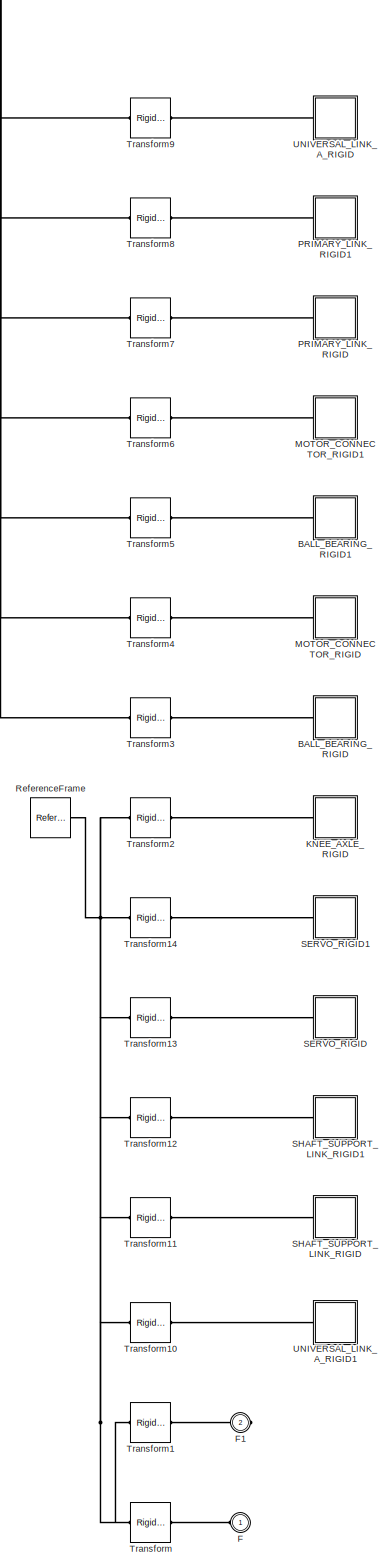
[diagram: LOWER_LEG_WOA_1_RIGID1 - part 1/1, most of the canvas]
BLOCK [SubSystem] LOWER_LEG_WOA_1_RIGID1
  Ports = [0, 0, 0, 0, 0, 1, 1]
  RequestExecContextInheritance = off
  Variant = off
BLOCK [SubSystem] LOWER_LEG_WOA_1_RIGID1/BALL_BEARING_RIGID
  Ports = [0, 0, 0, 0, 0, 1]
  RequestExecContextInheritance = off
  Variant = off
BLOCK [PMIOPort] LOWER_LEG_WOA_1_RIGID1/BALL_BEARING_RIGID/F
  Port = 1
  Side = Left
BLOCK [Reference] LOWER_LEG_WOA_1_RIGID1/BALL_BEARING_RIGID/ReferenceFrame  REF=sm_lib/Frames and
Transforms/Reference
Frame
  Ports = [0, 0, 0, 0, 0, 0, 1]
  SourceBlock = sm_lib/Frames and\nTransforms/Reference\nFrame
  SourceProductBaseCode = MS
  SourceProductName = Simscape Multibody
  SourceType = Reference\nFrame
BLOCK [Reference] LOWER_LEG_WOA_1_RIGID1/BALL_BEARING_RIGID/Solid  REF=sm_lib/Body Elements/Solid
  Ports = [0, 0, 0, 0, 0, 0, 1]
  SourceBlock = sm_lib/Body Elements/Solid
  SourceProductBaseCode = MS
  SourceProductName = Simscape Multibody
  SourceType = Solid
BLOCK [SubSystem] LOWER_LEG_WOA_1_RIGID1/BALL_BEARING_RIGID1
  Ports = [0, 0, 0, 0, 0, 1]
  RequestExecContextInheritance = off
  Variant = off
BLOCK [PMIOPort] LOWER_LEG_WOA_1_RIGID1/BALL_BEARING_RIGID1/F
  Port = 1
  Side = Left
BLOCK [Reference] LOWER_LEG_WOA_1_RIGID1/BALL_BEARING_RIGID1/ReferenceFrame  REF=sm_lib/Frames and
Transforms/Reference
Frame
  Ports = [0, 0, 0, 0, 0, 0, 1]
  SourceBlock = sm_lib/Frames and\nTransforms/Reference\nFrame
  SourceProductBaseCode = MS
  SourceProductName = Simscape Multibody
  SourceType = Reference\nFrame
BLOCK [Reference] LOWER_LEG_WOA_1_RIGID1/BALL_BEARING_RIGID1/Solid  REF=sm_lib/Body Elements/Solid
  Ports = [0, 0, 0, 0, 0, 0, 1]
  SourceBlock = sm_lib/Body Elements/Solid
  SourceProductBaseCode = MS
  SourceProductName = Simscape Multibody
  SourceType = Solid
BLOCK [PMIOPort] LOWER_LEG_WOA_1_RIGID1/F
  Port = 1
  Side = Left
BLOCK [PMIOPort] LOWER_LEG_WOA_1_RIGID1/F1
  Port = 2
  Side = Right
BLOCK [SubSystem] LOWER_LEG_WOA_1_RIGID1/KNEE_AXLE_RIGID
  Ports = [0, 0, 0, 0, 0, 1]
  RequestExecContextInheritance = off
  Variant = off
BLOCK [PMIOPort] LOWER_LEG_WOA_1_RIGID1/KNEE_AXLE_RIGID/F
  Port = 1
  Side = Left
BLOCK [Reference] LOWER_LEG_WOA_1_RIGID1/KNEE_AXLE_RIGID/ReferenceFrame  REF=sm_lib/Frames and
Transforms/Reference
Frame
  Ports = [0, 0, 0, 0, 0, 0, 1]
  SourceBlock = sm_lib/Frames and\nTransforms/Reference\nFrame
  SourceProductBaseCode = MS
  SourceProductName = Simscape Multibody
  SourceType = Reference\nFrame
BLOCK [Reference] LOWER_LEG_WOA_1_RIGID1/KNEE_AXLE_RIGID/Solid  REF=sm_lib/Body Elements/Solid
  Ports = [0, 0, 0, 0, 0, 0, 1]
  SourceBlock = sm_lib/Body Elements/Solid
  SourceProductBaseCode = MS
  SourceProductName = Simscape Multibody
  SourceType = Solid
BLOCK [SubSystem] LOWER_LEG_WOA_1_RIGID1/MOTOR_CONNECTOR_RIGID
  Ports = [0, 0, 0, 0, 0, 1]
  RequestExecContextInheritance = off
  Variant = off
BLOCK [PMIOPort] LOWER_LEG_WOA_1_RIGID1/MOTOR_CONNECTOR_RIGID/F
  Port = 1
  Side = Left
BLOCK [Reference] LOWER_LEG_WOA_1_RIGID1/MOTOR_CONNECTOR_RIGID/ReferenceFrame  REF=sm_lib/Frames and
Transforms/Reference
Frame
  Ports = [0, 0, 0, 0, 0, 0, 1]
  SourceBlock = sm_lib/Frames and\nTransforms/Reference\nFrame
  SourceProductBaseCode = MS
  SourceProductName = Simscape Multibody
  SourceType = Reference\nFrame
BLOCK [Reference] LOWER_LEG_WOA_1_RIGID1/MOTOR_CONNECTOR_RIGID/Solid  REF=sm_lib/Body Elements/Solid
  Ports = [0, 0, 0, 0, 0, 0, 1]
  SourceBlock = sm_lib/Body Elements/Solid
  SourceProductBaseCode = MS
  SourceProductName = Simscape Multibody
  SourceType = Solid
BLOCK [SubSystem] LOWER_LEG_WOA_1_RIGID1/MOTOR_CONNECTOR_RIGID1
  Ports = [0, 0, 0, 0, 0, 1]
  RequestExecContextInheritance = off
  Variant = off
BLOCK [PMIOPort] LOWER_LEG_WOA_1_RIGID1/MOTOR_CONNECTOR_RIGID1/F
  Port = 1
  Side = Left
BLOCK [Reference] LOWER_LEG_WOA_1_RIGID1/MOTOR_CONNECTOR_RIGID1/ReferenceFrame  REF=sm_lib/Frames and
Transforms/Reference
Frame
  Ports = [0, 0, 0, 0, 0, 0, 1]
  SourceBlock = sm_lib/Frames and\nTransforms/Reference\nFrame
  SourceProductBaseCode = MS
  SourceProductName = Simscape Multibody
  SourceType = Reference\nFrame
BLOCK [Reference] LOWER_LEG_WOA_1_RIGID1/MOTOR_CONNECTOR_RIGID1/Solid  REF=sm_lib/Body Elements/Solid
  Ports = [0, 0, 0, 0, 0, 0, 1]
  SourceBlock = sm_lib/Body Elements/Solid
  SourceProductBaseCode = MS
  SourceProductName = Simscape Multibody
  SourceType = Solid
BLOCK [SubSystem] LOWER_LEG_WOA_1_RIGID1/PRIMARY_LINK_RIGID
  Ports = [0, 0, 0, 0, 0, 1]
  RequestExecContextInheritance = off
  Variant = off
BLOCK [PMIOPort] LOWER_LEG_WOA_1_RIGID1/PRIMARY_LINK_RIGID/F
  Port = 1
  Side = Left
BLOCK [Reference] LOWER_LEG_WOA_1_RIGID1/PRIMARY_LINK_RIGID/ReferenceFrame  REF=sm_lib/Frames and
Transforms/Reference
Frame
  Ports = [0, 0, 0, 0, 0, 0, 1]
  SourceBlock = sm_lib/Frames and\nTransforms/Reference\nFrame
  SourceProductBaseCode = MS
  SourceProductName = Simscape Multibody
  SourceType = Reference\nFrame
BLOCK [Reference] LOWER_LEG_WOA_1_RIGID1/PRIMARY_LINK_RIGID/Solid  REF=sm_lib/Body Elements/Solid
  Ports = [0, 0, 0, 0, 0, 0, 1]
  SourceBlock = sm_lib/Body Elements/Solid
  SourceProductBaseCode = MS
  SourceProductName = Simscape Multibody
  SourceType = Solid
BLOCK [SubSystem] LOWER_LEG_WOA_1_RIGID1/PRIMARY_LINK_RIGID1
  Ports = [0, 0, 0, 0, 0, 1]
  RequestExecContextInheritance = off
  Variant = off
BLOCK [PMIOPort] LOWER_LEG_WOA_1_RIGID1/PRIMARY_LINK_RIGID1/F
  Port = 1
  Side = Left
BLOCK [Reference] LOWER_LEG_WOA_1_RIGID1/PRIMARY_LINK_RIGID1/ReferenceFrame  REF=sm_lib/Frames and
Transforms/Reference
Frame
  Ports = [0, 0, 0, 0, 0, 0, 1]
  SourceBlock = sm_lib/Frames and\nTransforms/Reference\nFrame
  SourceProductBaseCode = MS
  SourceProductName = Simscape Multibody
  SourceType = Reference\nFrame
BLOCK [Reference] LOWER_LEG_WOA_1_RIGID1/PRIMARY_LINK_RIGID1/Solid  REF=sm_lib/Body Elements/Solid
  Ports = [0, 0, 0, 0, 0, 0, 1]
  SourceBlock = sm_lib/Body Elements/Solid
  SourceProductBaseCode = MS
  SourceProductName = Simscape Multibody
  SourceType = Solid
BLOCK [Reference] LOWER_LEG_WOA_1_RIGID1/ReferenceFrame  REF=sm_lib/Frames and
Transforms/Reference
Frame
  Ports = [0, 0, 0, 0, 0, 0, 1]
  SourceBlock = sm_lib/Frames and\nTransforms/Reference\nFrame
  SourceProductBaseCode = MS
  SourceProductName = Simscape Multibody
  SourceType = Reference\nFrame
BLOCK [SubSystem] LOWER_LEG_WOA_1_RIGID1/SERVO_RIGID
  Ports = [0, 0, 0, 0, 0, 1]
  RequestExecContextInheritance = off
  Variant = off
BLOCK [PMIOPort] LOWER_LEG_WOA_1_RIGID1/SERVO_RIGID/F
  Port = 1
  Side = Left
BLOCK [Reference] LOWER_LEG_WOA_1_RIGID1/SERVO_RIGID/ReferenceFrame  REF=sm_lib/Frames and
Transforms/Reference
Frame
  Ports = [0, 0, 0, 0, 0, 0, 1]
  SourceBlock = sm_lib/Frames and\nTransforms/Reference\nFrame
  SourceProductBaseCode = MS
  SourceProductName = Simscape Multibody
  SourceType = Reference\nFrame
BLOCK [Reference] LOWER_LEG_WOA_1_RIGID1/SERVO_RIGID/Solid  REF=sm_lib/Body Elements/Solid
  Ports = [0, 0, 0, 0, 0, 0, 1]
  SourceBlock = sm_lib/Body Elements/Solid
  SourceProductBaseCode = MS
  SourceProductName = Simscape Multibody
  SourceType = Solid
BLOCK [SubSystem] LOWER_LEG_WOA_1_RIGID1/SERVO_RIGID1
  Ports = [0, 0, 0, 0, 0, 1]
  RequestExecContextInheritance = off
  Variant = off
BLOCK [PMIOPort] LOWER_LEG_WOA_1_RIGID1/SERVO_RIGID1/F
  Port = 1
  Side = Left
BLOCK [Reference] LOWER_LEG_WOA_1_RIGID1/SERVO_RIGID1/ReferenceFrame  REF=sm_lib/Frames and
Transforms/Reference
Frame
  Ports = [0, 0, 0, 0, 0, 0, 1]
  SourceBlock = sm_lib/Frames and\nTransforms/Reference\nFrame
  SourceProductBaseCode = MS
  SourceProductName = Simscape Multibody
  SourceType = Reference\nFrame
BLOCK [Reference] LOWER_LEG_WOA_1_RIGID1/SERVO_RIGID1/Solid  REF=sm_lib/Body Elements/Solid
  Ports = [0, 0, 0, 0, 0, 0, 1]
  SourceBlock = sm_lib/Body Elements/Solid
  SourceProductBaseCode = MS
  SourceProductName = Simscape Multibody
  SourceType = Solid
BLOCK [SubSystem] LOWER_LEG_WOA_1_RIGID1/SHAFT_SUPPORT_LINK_RIGID
  Ports = [0, 0, 0, 0, 0, 1]
  RequestExecContextInheritance = off
  Variant = off
BLOCK [PMIOPort] LOWER_LEG_WOA_1_RIGID1/SHAFT_SUPPORT_LINK_RIGID/F
  Port = 1
  Side = Left
BLOCK [Reference] LOWER_LEG_WOA_1_RIGID1/SHAFT_SUPPORT_LINK_RIGID/ReferenceFrame  REF=sm_lib/Frames and
Transforms/Reference
Frame
  Ports = [0, 0, 0, 0, 0, 0, 1]
  SourceBlock = sm_lib/Frames and\nTransforms/Reference\nFrame
  SourceProductBaseCode = MS
  SourceProductName = Simscape Multibody
  SourceType = Reference\nFrame
BLOCK [Reference] LOWER_LEG_WOA_1_RIGID1/SHAFT_SUPPORT_LINK_RIGID/Solid  REF=sm_lib/Body Elements/Solid
  Ports = [0, 0, 0, 0, 0, 0, 1]
  SourceBlock = sm_lib/Body Elements/Solid
  SourceProductBaseCode = MS
  SourceProductName = Simscape Multibody
  SourceType = Solid
BLOCK [SubSystem] LOWER_LEG_WOA_1_RIGID1/SHAFT_SUPPORT_LINK_RIGID1
  Ports = [0, 0, 0, 0, 0, 1]
  RequestExecContextInheritance = off
  Variant = off
BLOCK [PMIOPort] LOWER_LEG_WOA_1_RIGID1/SHAFT_SUPPORT_LINK_RIGID1/F
  Port = 1
  Side = Left
BLOCK [Reference] LOWER_LEG_WOA_1_RIGID1/SHAFT_SUPPORT_LINK_RIGID1/ReferenceFrame  REF=sm_lib/Frames and
Transforms/Reference
Frame
  Ports = [0, 0, 0, 0, 0, 0, 1]
  SourceBlock = sm_lib/Frames and\nTransforms/Reference\nFrame
  SourceProductBaseCode = MS
  SourceProductName = Simscape Multibody
  SourceType = Reference\nFrame
BLOCK [Reference] LOWER_LEG_WOA_1_RIGID1/SHAFT_SUPPORT_LINK_RIGID1/Solid  REF=sm_lib/Body Elements/Solid
  Ports = [0, 0, 0, 0, 0, 0, 1]
  SourceBlock = sm_lib/Body Elements/Solid
  SourceProductBaseCode = MS
  SourceProductName = Simscape Multibody
  SourceType = Solid
BLOCK [Reference] LOWER_LEG_WOA_1_RIGID1/Transform  REF=sm_lib/Frames and
Transforms/Rigid
Transform
  Ports = [0, 0, 0, 0, 0, 1, 1]
  SourceBlock = sm_lib/Frames and\nTransforms/Rigid\nTransform
  SourceProductBaseCode = MS
  SourceProductName = Simscape Multibody
  SourceType = Rigid\nTransform
BLOCK [Reference] LOWER_LEG_WOA_1_RIGID1/Transform1  REF=sm_lib/Frames and
Transforms/Rigid
Transform
  Ports = [0, 0, 0, 0, 0, 1, 1]
  SourceBlock = sm_lib/Frames and\nTransforms/Rigid\nTransform
  SourceProductBaseCode = MS
  SourceProductName = Simscape Multibody
  SourceType = Rigid\nTransform
BLOCK [Reference] LOWER_LEG_WOA_1_RIGID1/Transform10  REF=sm_lib/Frames and
Transforms/Rigid
Transform
  Ports = [0, 0, 0, 0, 0, 1, 1]
  SourceBlock = sm_lib/Frames and\nTransforms/Rigid\nTransform
  SourceProductBaseCode = MS
  SourceProductName = Simscape Multibody
  SourceType = Rigid\nTransform
BLOCK [Reference] LOWER_LEG_WOA_1_RIGID1/Transform11  REF=sm_lib/Frames and
Transforms/Rigid
Transform
  Ports = [0, 0, 0, 0, 0, 1, 1]
  SourceBlock = sm_lib/Frames and\nTransforms/Rigid\nTransform
  SourceProductBaseCode = MS
  SourceProductName = Simscape Multibody
  SourceType = Rigid\nTransform
BLOCK [Reference] LOWER_LEG_WOA_1_RIGID1/Transform12  REF=sm_lib/Frames and
Transforms/Rigid
Transform
  Ports = [0, 0, 0, 0, 0, 1, 1]
  SourceBlock = sm_lib/Frames and\nTransforms/Rigid\nTransform
  SourceProductBaseCode = MS
  SourceProductName = Simscape Multibody
  SourceType = Rigid\nTransform
BLOCK [Reference] LOWER_LEG_WOA_1_RIGID1/Transform13  REF=sm_lib/Frames and
Transforms/Rigid
Transform
  Ports = [0, 0, 0, 0, 0, 1, 1]
  SourceBlock = sm_lib/Frames and\nTransforms/Rigid\nTransform
  SourceProductBaseCode = MS
  SourceProductName = Simscape Multibody
  SourceType = Rigid\nTransform
BLOCK [Reference] LOWER_LEG_WOA_1_RIGID1/Transform14  REF=sm_lib/Frames and
Transforms/Rigid
Transform
  Ports = [0, 0, 0, 0, 0, 1, 1]
  SourceBlock = sm_lib/Frames and\nTransforms/Rigid\nTransform
  SourceProductBaseCode = MS
  SourceProductName = Simscape Multibody
  SourceType = Rigid\nTransform
BLOCK [Reference] LOWER_LEG_WOA_1_RIGID1/Transform2  REF=sm_lib/Frames and
Transforms/Rigid
Transform
  Ports = [0, 0, 0, 0, 0, 1, 1]
  SourceBlock = sm_lib/Frames and\nTransforms/Rigid\nTransform
  SourceProductBaseCode = MS
  SourceProductName = Simscape Multibody
  SourceType = Rigid\nTransform
BLOCK [Reference] LOWER_LEG_WOA_1_RIGID1/Transform3  REF=sm_lib/Frames and
Transforms/Rigid
Transform
  Ports = [0, 0, 0, 0, 0, 1, 1]
  SourceBlock = sm_lib/Frames and\nTransforms/Rigid\nTransform
  SourceProductBaseCode = MS
  SourceProductName = Simscape Multibody
  SourceType = Rigid\nTransform
BLOCK [Reference] LOWER_LEG_WOA_1_RIGID1/Transform4  REF=sm_lib/Frames and
Transforms/Rigid
Transform
  Ports = [0, 0, 0, 0, 0, 1, 1]
  SourceBlock = sm_lib/Frames and\nTransforms/Rigid\nTransform
  SourceProductBaseCode = MS
  SourceProductName = Simscape Multibody
  SourceType = Rigid\nTransform
BLOCK [Reference] LOWER_LEG_WOA_1_RIGID1/Transform5  REF=sm_lib/Frames and
Transforms/Rigid
Transform
  Ports = [0, 0, 0, 0, 0, 1, 1]
  SourceBlock = sm_lib/Frames and\nTransforms/Rigid\nTransform
  SourceProductBaseCode = MS
  SourceProductName = Simscape Multibody
  SourceType = Rigid\nTransform
BLOCK [Reference] LOWER_LEG_WOA_1_RIGID1/Transform6  REF=sm_lib/Frames and
Transforms/Rigid
Transform
  Ports = [0, 0, 0, 0, 0, 1, 1]
  SourceBlock = sm_lib/Frames and\nTransforms/Rigid\nTransform
  SourceProductBaseCode = MS
  SourceProductName = Simscape Multibody
  SourceType = Rigid\nTransform
BLOCK [Reference] LOWER_LEG_WOA_1_RIGID1/Transform7  REF=sm_lib/Frames and
Transforms/Rigid
Transform
  Ports = [0, 0, 0, 0, 0, 1, 1]
  SourceBlock = sm_lib/Frames and\nTransforms/Rigid\nTransform
  SourceProductBaseCode = MS
  SourceProductName = Simscape Multibody
  SourceType = Rigid\nTransform
BLOCK [Reference] LOWER_LEG_WOA_1_RIGID1/Transform8  REF=sm_lib/Frames and
Transforms/Rigid
Transform
  Ports = [0, 0, 0, 0, 0, 1, 1]
  SourceBlock = sm_lib/Frames and\nTransforms/Rigid\nTransform
  SourceProductBaseCode = MS
  SourceProductName = Simscape Multibody
  SourceType = Rigid\nTransform
BLOCK [Reference] LOWER_LEG_WOA_1_RIGID1/Transform9  REF=sm_lib/Frames and
Transforms/Rigid
Transform
  Ports = [0, 0, 0, 0, 0, 1, 1]
  SourceBlock = sm_lib/Frames and\nTransforms/Rigid\nTransform
  SourceProductBaseCode = MS
  SourceProductName = Simscape Multibody
  SourceType = Rigid\nTransform
BLOCK [SubSystem] LOWER_LEG_WOA_1_RIGID1/UNIVERSAL_LINK_A_RIGID
  Ports = [0, 0, 0, 0, 0, 1]
  RequestExecContextInheritance = off
  Variant = off
BLOCK [PMIOPort] LOWER_LEG_WOA_1_RIGID1/UNIVERSAL_LINK_A_RIGID/F
  Port = 1
  Side = Left
BLOCK [Reference] LOWER_LEG_WOA_1_RIGID1/UNIVERSAL_LINK_A_RIGID/ReferenceFrame  REF=sm_lib/Frames and
Transforms/Reference
Frame
  Ports = [0, 0, 0, 0, 0, 0, 1]
  SourceBlock = sm_lib/Frames and\nTransforms/Reference\nFrame
  SourceProductBaseCode = MS
  SourceProductName = Simscape Multibody
  SourceType = Reference\nFrame
BLOCK [Reference] LOWER_LEG_WOA_1_RIGID1/UNIVERSAL_LINK_A_RIGID/Solid  REF=sm_lib/Body Elements/Solid
  Ports = [0, 0, 0, 0, 0, 0, 1]
  SourceBlock = sm_lib/Body Elements/Solid
  SourceProductBaseCode = MS
  SourceProductName = Simscape Multibody
  SourceType = Solid
BLOCK [SubSystem] LOWER_LEG_WOA_1_RIGID1/UNIVERSAL_LINK_A_RIGID1
  Ports = [0, 0, 0, 0, 0, 1]
  RequestExecContextInheritance = off
  Variant = off
BLOCK [PMIOPort] LOWER_LEG_WOA_1_RIGID1/UNIVERSAL_LINK_A_RIGID1/F
  Port = 1
  Side = Left
BLOCK [Reference] LOWER_LEG_WOA_1_RIGID1/UNIVERSAL_LINK_A_RIGID1/ReferenceFrame  REF=sm_lib/Frames and
Transforms/Reference
Frame
  Ports = [0, 0, 0, 0, 0, 0, 1]
  SourceBlock = sm_lib/Frames and\nTransforms/Reference\nFrame
  SourceProductBaseCode = MS
  SourceProductName = Simscape Multibody
  SourceType = Reference\nFrame
BLOCK [Reference] LOWER_LEG_WOA_1_RIGID1/UNIVERSAL_LINK_A_RIGID1/Solid  REF=sm_lib/Body Elements/Solid
  Ports = [0, 0, 0, 0, 0, 0, 1]
  SourceBlock = sm_lib/Body Elements/Solid
  SourceProductBaseCode = MS
  SourceProductName = Simscape Multibody
  SourceType = Solid
BLOCK [SubSystem] MATLAB Function
  ErrorFcn = Stateflow.Translate.translate
  PermitHierarchicalResolution = ExplicitOnly
  Ports = [1, 10]
  RequestExecContextInheritance = off
  SFBlockType = MATLAB Function
  TreatAsAtomicUnit = on
  Variant = off
BLOCK [Demux] MATLAB Function/ Demux 
  Outputs = 1
  Ports = [1, 1]
BLOCK [S-Function] MATLAB Function/ SFunction 
  EnableBusSupport = on
  FunctionName = sf_sfun
  PortCounts = [1 11]
  Ports = [1, 11]
  SFcnIsStateOwnerBlock = off
  SFunctionDeploymentMode = off
  Tag = Stateflow S-Function biped 2
BLOCK [Terminator] MATLAB Function/ Terminator 
BLOCK [Inport] MATLAB Function/t
  IconDisplay = Port number
BLOCK [Outport] MATLAB Function/t0
  IconDisplay = Port number
BLOCK [Outport] MATLAB Function/t1
  IconDisplay = Port number
  Port = 2
BLOCK [Outport] MATLAB Function/t2
  IconDisplay = Port number
  Port = 3
BLOCK [Outport] MATLAB Function/t3
  IconDisplay = Port number
  Port = 4
BLOCK [Outport] MATLAB Function/t4
  IconDisplay = Port number
  Port = 5
BLOCK [Outport] MATLAB Function/t5
  IconDisplay = Port number
  Port = 6
BLOCK [Outport] MATLAB Function/t6
  IconDisplay = Port number
  Port = 7
BLOCK [Outport] MATLAB Function/t7
  IconDisplay = Port number
  Port = 8
BLOCK [Outport] MATLAB Function/t8
  IconDisplay = Port number
  Port = 9
BLOCK [Outport] MATLAB Function/t9
  IconDisplay = Port number
  Port = 10
BLOCK [Reference] MechanismConfiguration  REF=sm_lib/Utilities/Mechanism
Configuration
  Ports = [0, 0, 0, 0, 0, 0, 1]
  SourceBlock = sm_lib/Utilities/Mechanism\nConfiguration
  SourceProductBaseCode = MS
  SourceProductName = Simscape Multibody
  SourceType = Mechanism\nConfiguration
BLOCK [SubSystem] PLUS_RIGID
  Ports = [0, 0, 0, 0, 0, 1, 1]
  RequestExecContextInheritance = off
  Variant = off
BLOCK [PMIOPort] PLUS_RIGID/F
  Port = 1
  Side = Left
BLOCK [PMIOPort] PLUS_RIGID/F1
  Port = 2
  Side = Right
BLOCK [Reference] PLUS_RIGID/ReferenceFrame  REF=sm_lib/Frames and
Transforms/Reference
Frame
  Ports = [0, 0, 0, 0, 0, 0, 1]
  SourceBlock = sm_lib/Frames and\nTransforms/Reference\nFrame
  SourceProductBaseCode = MS
  SourceProductName = Simscape Multibody
  SourceType = Reference\nFrame
BLOCK [Reference] PLUS_RIGID/Solid  REF=sm_lib/Body Elements/Solid
  Ports = [0, 0, 0, 0, 0, 0, 1]
  SourceBlock = sm_lib/Body Elements/Solid
  SourceProductBaseCode = MS
  SourceProductName = Simscape Multibody
  SourceType = Solid
BLOCK [Reference] PLUS_RIGID/Transform  REF=sm_lib/Frames and
Transforms/Rigid
Transform
  Ports = [0, 0, 0, 0, 0, 1, 1]
  SourceBlock = sm_lib/Frames and\nTransforms/Rigid\nTransform
  SourceProductBaseCode = MS
  SourceProductName = Simscape Multibody
  SourceType = Rigid\nTransform
BLOCK [Reference] PLUS_RIGID/Transform1  REF=sm_lib/Frames and
Transforms/Rigid
Transform
  Ports = [0, 0, 0, 0, 0, 1, 1]
  SourceBlock = sm_lib/Frames and\nTransforms/Rigid\nTransform
  SourceProductBaseCode = MS
  SourceProductName = Simscape Multibody
  SourceType = Rigid\nTransform
BLOCK [SubSystem] PLUS_RIGID1
  Ports = [0, 0, 0, 0, 0, 1, 1]
  RequestExecContextInheritance = off
  Variant = off
BLOCK [PMIOPort] PLUS_RIGID1/F
  Port = 1
  Side = Left
BLOCK [PMIOPort] PLUS_RIGID1/F1
  Port = 2
  Side = Right
BLOCK [Reference] PLUS_RIGID1/ReferenceFrame  REF=sm_lib/Frames and
Transforms/Reference
Frame
  Ports = [0, 0, 0, 0, 0, 0, 1]
  SourceBlock = sm_lib/Frames and\nTransforms/Reference\nFrame
  SourceProductBaseCode = MS
  SourceProductName = Simscape Multibody
  SourceType = Reference\nFrame
BLOCK [Reference] PLUS_RIGID1/Solid  REF=sm_lib/Body Elements/Solid
  Ports = [0, 0, 0, 0, 0, 0, 1]
  SourceBlock = sm_lib/Body Elements/Solid
  SourceProductBaseCode = MS
  SourceProductName = Simscape Multibody
  SourceType = Solid
BLOCK [Reference] PLUS_RIGID1/Transform  REF=sm_lib/Frames and
Transforms/Rigid
Transform
  Ports = [0, 0, 0, 0, 0, 1, 1]
  SourceBlock = sm_lib/Frames and\nTransforms/Rigid\nTransform
  SourceProductBaseCode = MS
  SourceProductName = Simscape Multibody
  SourceType = Rigid\nTransform
BLOCK [Reference] PLUS_RIGID1/Transform1  REF=sm_lib/Frames and
Transforms/Rigid
Transform
  Ports = [0, 0, 0, 0, 0, 1, 1]
  SourceBlock = sm_lib/Frames and\nTransforms/Rigid\nTransform
  SourceProductBaseCode = MS
  SourceProductName = Simscape Multibody
  SourceType = Rigid\nTransform
BLOCK [Reference] PS-Simulink Converter  REF=nesl_utility/PS-Simulink
Converter
  Ports = [0, 1, 0, 0, 0, 1]
  SourceBlock = nesl_utility/PS-Simulink\nConverter
  SourceProductBaseCode = SS
  SourceProductName = Simscape
  SourceType = PS-Simulink\nConverter
BLOCK [Reference] Revolute  REF=sm_lib/Joints/Revolute Joint
  Ports = [0, 0, 0, 0, 0, 2, 1]
  SourceBlock = sm_lib/Joints/Revolute Joint
  SourceProductBaseCode = MS
  SourceProductName = Simscape Multibody
  SourceType = Revolute Joint
BLOCK [Reference] Revolute1  REF=sm_lib/Joints/Revolute Joint
  Ports = [0, 0, 0, 0, 0, 2, 1]
  SourceBlock = sm_lib/Joints/Revolute Joint
  SourceProductBaseCode = MS
  SourceProductName = Simscape Multibody
  SourceType = Revolute Joint
BLOCK [Reference] Revolute2  REF=sm_lib/Joints/Revolute Joint
  Ports = [0, 0, 0, 0, 0, 2, 1]
  SourceBlock = sm_lib/Joints/Revolute Joint
  SourceProductBaseCode = MS
  SourceProductName = Simscape Multibody
  SourceType = Revolute Joint
BLOCK [Reference] Revolute3  REF=sm_lib/Joints/Revolute Joint
  Ports = [0, 0, 0, 0, 0, 2, 1]
  SourceBlock = sm_lib/Joints/Revolute Joint
  SourceProductBaseCode = MS
  SourceProductName = Simscape Multibody
  SourceType = Revolute Joint
BLOCK [Reference] Revolute4  REF=sm_lib/Joints/Revolute Joint
  Ports = [0, 0, 0, 0, 0, 2, 1]
  SourceBlock = sm_lib/Joints/Revolute Joint
  SourceProductBaseCode = MS
  SourceProductName = Simscape Multibody
  SourceType = Revolute Joint
BLOCK [Reference] Revolute5  REF=sm_lib/Joints/Revolute Joint
  Ports = [0, 0, 0, 0, 0, 2, 1]
  SourceBlock = sm_lib/Joints/Revolute Joint
  SourceProductBaseCode = MS
  SourceProductName = Simscape Multibody
  SourceType = Revolute Joint
BLOCK [Reference] Revolute6  REF=sm_lib/Joints/Revolute Joint
  Ports = [0, 0, 0, 0, 0, 2, 1]
  SourceBlock = sm_lib/Joints/Revolute Joint
  SourceProductBaseCode = MS
  SourceProductName = Simscape Multibody
  SourceType = Revolute Joint
BLOCK [Reference] Revolute7  REF=sm_lib/Joints/Revolute Joint
  Ports = [0, 0, 0, 0, 0, 2, 1]
  SourceBlock = sm_lib/Joints/Revolute Joint
  SourceProductBaseCode = MS
  SourceProductName = Simscape Multibody
  SourceType = Revolute Joint
BLOCK [Reference] Revolute8  REF=sm_lib/Joints/Revolute Joint
  Ports = [0, 0, 0, 0, 0, 2, 1]
  SourceBlock = sm_lib/Joints/Revolute Joint
  SourceProductBaseCode = MS
  SourceProductName = Simscape Multibody
  SourceType = Revolute Joint
BLOCK [Reference] Revolute9  REF=sm_lib/Joints/Revolute Joint
  Ports = [0, 0, 0, 0, 0, 2, 1]
  SourceBlock = sm_lib/Joints/Revolute Joint
  SourceProductBaseCode = MS
  SourceProductName = Simscape Multibody
  SourceType = Revolute Joint
BLOCK [Reference] Rigid Transform  REF=sm_lib/Frames and
Transforms/Rigid
Transform
  Ports = [0, 0, 0, 0, 0, 1, 1]
  SourceBlock = sm_lib/Frames and\nTransforms/Rigid\nTransform
  SourceProductBaseCode = MS
  SourceProductName = Simscape Multibody
  SourceType = Rigid\nTransform
BLOCK [Reference] Simulink-PS Converter  REF=nesl_utility/Simulink-PS
Converter
  Ports = [1, 0, 0, 0, 0, 0, 1]
  SourceBlock = nesl_utility/Simulink-PS\nConverter
  SourceProductBaseCode = SS
  SourceProductName = Simscape
  SourceType = Simulink-PS\nConverter
BLOCK [Reference] Simulink-PS Converter1  REF=nesl_utility/Simulink-PS
Converter
  Ports = [1, 0, 0, 0, 0, 0, 1]
  SourceBlock = nesl_utility/Simulink-PS\nConverter
  SourceProductBaseCode = SS
  SourceProductName = Simscape
  SourceType = Simulink-PS\nConverter
BLOCK [Reference] Simulink-PS Converter2  REF=nesl_utility/Simulink-PS
Converter
  Ports = [1, 0, 0, 0, 0, 0, 1]
  SourceBlock = nesl_utility/Simulink-PS\nConverter
  SourceProductBaseCode = SS
  SourceProductName = Simscape
  SourceType = Simulink-PS\nConverter
BLOCK [Reference] Simulink-PS Converter3  REF=nesl_utility/Simulink-PS
Converter
  Ports = [1, 0, 0, 0, 0, 0, 1]
  SourceBlock = nesl_utility/Simulink-PS\nConverter
  SourceProductBaseCode = SS
  SourceProductName = Simscape
  SourceType = Simulink-PS\nConverter
BLOCK [Reference] Simulink-PS Converter4  REF=nesl_utility/Simulink-PS
Converter
  Ports = [1, 0, 0, 0, 0, 0, 1]
  SourceBlock = nesl_utility/Simulink-PS\nConverter
  SourceProductBaseCode = SS
  SourceProductName = Simscape
  SourceType = Simulink-PS\nConverter
BLOCK [Reference] Simulink-PS Converter5  REF=nesl_utility/Simulink-PS
Converter
  Ports = [1, 0, 0, 0, 0, 0, 1]
  SourceBlock = nesl_utility/Simulink-PS\nConverter
  SourceProductBaseCode = SS
  SourceProductName = Simscape
  SourceType = Simulink-PS\nConverter
BLOCK [Reference] Simulink-PS Converter6  REF=nesl_utility/Simulink-PS
Converter
  Ports = [1, 0, 0, 0, 0, 0, 1]
  SourceBlock = nesl_utility/Simulink-PS\nConverter
  SourceProductBaseCode = SS
  SourceProductName = Simscape
  SourceType = Simulink-PS\nConverter
BLOCK [Reference] Simulink-PS Converter7  REF=nesl_utility/Simulink-PS
Converter
  Ports = [1, 0, 0, 0, 0, 0, 1]
  SourceBlock = nesl_utility/Simulink-PS\nConverter
  SourceProductBaseCode = SS
  SourceProductName = Simscape
  SourceType = Simulink-PS\nConverter
BLOCK [Reference] Simulink-PS Converter8  REF=nesl_utility/Simulink-PS
Converter
  Ports = [1, 0, 0, 0, 0, 0, 1]
  SourceBlock = nesl_utility/Simulink-PS\nConverter
  SourceProductBaseCode = SS
  SourceProductName = Simscape
  SourceType = Simulink-PS\nConverter
BLOCK [Reference] Simulink-PS Converter9  REF=nesl_utility/Simulink-PS
Converter
  Ports = [1, 0, 0, 0, 0, 0, 1]
  SourceBlock = nesl_utility/Simulink-PS\nConverter
  SourceProductBaseCode = SS
  SourceProductName = Simscape
  SourceType = Simulink-PS\nConverter
BLOCK [Reference] Solver Configuration  REF=nesl_utility/Solver
Configuration
  Ports = [0, 0, 0, 0, 0, 0, 1]
  SourceBlock = nesl_utility/Solver\nConfiguration
  SourceProductBaseCode = SS
  SourceProductName = Simscape
  SourceType = Solver\nConfiguration
BLOCK [SubSystem] TORSO_BASE_WOA_1_RIGID
  Ports = [0, 0, 0, 0, 0, 1, 2]
  RequestExecContextInheritance = off
  Variant = off
BLOCK [SubSystem] TORSO_BASE_WOA_1_RIGID/BASE1_RIGID
  Ports = [0, 0, 0, 0, 0, 1]
  RequestExecContextInheritance = off
  Variant = off
BLOCK [PMIOPort] TORSO_BASE_WOA_1_RIGID/BASE1_RIGID/F
  Port = 1
  Side = Left
BLOCK [Reference] TORSO_BASE_WOA_1_RIGID/BASE1_RIGID/ReferenceFrame  REF=sm_lib/Frames and
Transforms/Reference
Frame
  Ports = [0, 0, 0, 0, 0, 0, 1]
  SourceBlock = sm_lib/Frames and\nTransforms/Reference\nFrame
  SourceProductBaseCode = MS
  SourceProductName = Simscape Multibody
  SourceType = Reference\nFrame
BLOCK [Reference] TORSO_BASE_WOA_1_RIGID/BASE1_RIGID/Solid  REF=sm_lib/Body Elements/Solid
  Ports = [0, 0, 0, 0, 0, 0, 1]
  SourceBlock = sm_lib/Body Elements/Solid
  SourceProductBaseCode = MS
  SourceProductName = Simscape Multibody
  SourceType = Solid
BLOCK [SubSystem] TORSO_BASE_WOA_1_RIGID/BASE1_RIGID1
  Ports = [0, 0, 0, 0, 0, 1]
  RequestExecContextInheritance = off
  Variant = off
BLOCK [PMIOPort] TORSO_BASE_WOA_1_RIGID/BASE1_RIGID1/F
  Port = 1
  Side = Left
BLOCK [Reference] TORSO_BASE_WOA_1_RIGID/BASE1_RIGID1/ReferenceFrame  REF=sm_lib/Frames and
Transforms/Reference
Frame
  Ports = [0, 0, 0, 0, 0, 0, 1]
  SourceBlock = sm_lib/Frames and\nTransforms/Reference\nFrame
  SourceProductBaseCode = MS
  SourceProductName = Simscape Multibody
  SourceType = Reference\nFrame
BLOCK [Reference] TORSO_BASE_WOA_1_RIGID/BASE1_RIGID1/Solid  REF=sm_lib/Body Elements/Solid
  Ports = [0, 0, 0, 0, 0, 0, 1]
  SourceBlock = sm_lib/Body Elements/Solid
  SourceProductBaseCode = MS
  SourceProductName = Simscape Multibody
  SourceType = Solid
BLOCK [PMIOPort] TORSO_BASE_WOA_1_RIGID/F
  Port = 3
  Side = Right
BLOCK [PMIOPort] TORSO_BASE_WOA_1_RIGID/F1
  Port = 2
  Side = Right
BLOCK [PMIOPort] TORSO_BASE_WOA_1_RIGID/F2
  Port = 1
  Side = Left
BLOCK [SubSystem] TORSO_BASE_WOA_1_RIGID/KNEE_MOTOR_RIGID
  Ports = [0, 0, 0, 0, 0, 1]
  RequestExecContextInheritance = off
  Variant = off
BLOCK [PMIOPort] TORSO_BASE_WOA_1_RIGID/KNEE_MOTOR_RIGID/F
  Port = 1
  Side = Left
BLOCK [Reference] TORSO_BASE_WOA_1_RIGID/KNEE_MOTOR_RIGID/ReferenceFrame  REF=sm_lib/Frames and
Transforms/Reference
Frame
  Ports = [0, 0, 0, 0, 0, 0, 1]
  SourceBlock = sm_lib/Frames and\nTransforms/Reference\nFrame
  SourceProductBaseCode = MS
  SourceProductName = Simscape Multibody
  SourceType = Reference\nFrame
BLOCK [Reference] TORSO_BASE_WOA_1_RIGID/KNEE_MOTOR_RIGID/Solid  REF=sm_lib/Body Elements/Solid
  Ports = [0, 0, 0, 0, 0, 0, 1]
  SourceBlock = sm_lib/Body Elements/Solid
  SourceProductBaseCode = MS
  SourceProductName = Simscape Multibody
  SourceType = Solid
BLOCK [SubSystem] TORSO_BASE_WOA_1_RIGID/KNEE_MOTOR_RIGID1
  Ports = [0, 0, 0, 0, 0, 1]
  RequestExecContextInheritance = off
  Variant = off
BLOCK [PMIOPort] TORSO_BASE_WOA_1_RIGID/KNEE_MOTOR_RIGID1/F
  Port = 1
  Side = Left
BLOCK [Reference] TORSO_BASE_WOA_1_RIGID/KNEE_MOTOR_RIGID1/ReferenceFrame  REF=sm_lib/Frames and
Transforms/Reference
Frame
  Ports = [0, 0, 0, 0, 0, 0, 1]
  SourceBlock = sm_lib/Frames and\nTransforms/Reference\nFrame
  SourceProductBaseCode = MS
  SourceProductName = Simscape Multibody
  SourceType = Reference\nFrame
BLOCK [Reference] TORSO_BASE_WOA_1_RIGID/KNEE_MOTOR_RIGID1/Solid  REF=sm_lib/Body Elements/Solid
  Ports = [0, 0, 0, 0, 0, 0, 1]
  SourceBlock = sm_lib/Body Elements/Solid
  SourceProductBaseCode = MS
  SourceProductName = Simscape Multibody
  SourceType = Solid
BLOCK [SubSystem] TORSO_BASE_WOA_1_RIGID/LINK_BASE_1_RIGID
  Ports = [0, 0, 0, 0, 0, 1]
  RequestExecContextInheritance = off
  Variant = off
BLOCK [PMIOPort] TORSO_BASE_WOA_1_RIGID/LINK_BASE_1_RIGID/F
  Port = 1
  Side = Left
BLOCK [Reference] TORSO_BASE_WOA_1_RIGID/LINK_BASE_1_RIGID/ReferenceFrame  REF=sm_lib/Frames and
Transforms/Reference
Frame
  Ports = [0, 0, 0, 0, 0, 0, 1]
  SourceBlock = sm_lib/Frames and\nTransforms/Reference\nFrame
  SourceProductBaseCode = MS
  SourceProductName = Simscape Multibody
  SourceType = Reference\nFrame
BLOCK [Reference] TORSO_BASE_WOA_1_RIGID/LINK_BASE_1_RIGID/Solid  REF=sm_lib/Body Elements/Solid
  Ports = [0, 0, 0, 0, 0, 0, 1]
  SourceBlock = sm_lib/Body Elements/Solid
  SourceProductBaseCode = MS
  SourceProductName = Simscape Multibody
  SourceType = Solid
BLOCK [SubSystem] TORSO_BASE_WOA_1_RIGID/LINK_BASE_2_RIGID
  Ports = [0, 0, 0, 0, 0, 1]
  RequestExecContextInheritance = off
  Variant = off
BLOCK [PMIOPort] TORSO_BASE_WOA_1_RIGID/LINK_BASE_2_RIGID/F
  Port = 1
  Side = Left
BLOCK [Reference] TORSO_BASE_WOA_1_RIGID/LINK_BASE_2_RIGID/ReferenceFrame  REF=sm_lib/Frames and
Transforms/Reference
Frame
  Ports = [0, 0, 0, 0, 0, 0, 1]
  SourceBlock = sm_lib/Frames and\nTransforms/Reference\nFrame
  SourceProductBaseCode = MS
  SourceProductName = Simscape Multibody
  SourceType = Reference\nFrame
BLOCK [Reference] TORSO_BASE_WOA_1_RIGID/LINK_BASE_2_RIGID/Solid  REF=sm_lib/Body Elements/Solid
  Ports = [0, 0, 0, 0, 0, 0, 1]
  SourceBlock = sm_lib/Body Elements/Solid
  SourceProductBaseCode = MS
  SourceProductName = Simscape Multibody
  SourceType = Solid
BLOCK [SubSystem] TORSO_BASE_WOA_1_RIGID/LINK_BASE_2_RIGID1
  Ports = [0, 0, 0, 0, 0, 1]
  RequestExecContextInheritance = off
  Variant = off
BLOCK [PMIOPort] TORSO_BASE_WOA_1_RIGID/LINK_BASE_2_RIGID1/F
  Port = 1
  Side = Left
BLOCK [Reference] TORSO_BASE_WOA_1_RIGID/LINK_BASE_2_RIGID1/ReferenceFrame  REF=sm_lib/Frames and
Transforms/Reference
Frame
  Ports = [0, 0, 0, 0, 0, 0, 1]
  SourceBlock = sm_lib/Frames and\nTransforms/Reference\nFrame
  SourceProductBaseCode = MS
  SourceProductName = Simscape Multibody
  SourceType = Reference\nFrame
BLOCK [Reference] TORSO_BASE_WOA_1_RIGID/LINK_BASE_2_RIGID1/Solid  REF=sm_lib/Body Elements/Solid
  Ports = [0, 0, 0, 0, 0, 0, 1]
  SourceBlock = sm_lib/Body Elements/Solid
  SourceProductBaseCode = MS
  SourceProductName = Simscape Multibody
  SourceType = Solid
BLOCK [Reference] TORSO_BASE_WOA_1_RIGID/ReferenceFrame  REF=sm_lib/Frames and
Transforms/Reference
Frame
  Ports = [0, 0, 0, 0, 0, 0, 1]
  SourceBlock = sm_lib/Frames and\nTransforms/Reference\nFrame
  SourceProductBaseCode = MS
  SourceProductName = Simscape Multibody
  SourceType = Reference\nFrame
BLOCK [Reference] TORSO_BASE_WOA_1_RIGID/Transform  REF=sm_lib/Frames and
Transforms/Rigid
Transform
  Ports = [0, 0, 0, 0, 0, 1, 1]
  SourceBlock = sm_lib/Frames and\nTransforms/Rigid\nTransform
  SourceProductBaseCode = MS
  SourceProductName = Simscape Multibody
  SourceType = Rigid\nTransform
BLOCK [Reference] TORSO_BASE_WOA_1_RIGID/Transform1  REF=sm_lib/Frames and
Transforms/Rigid
Transform
  Ports = [0, 0, 0, 0, 0, 1, 1]
  SourceBlock = sm_lib/Frames and\nTransforms/Rigid\nTransform
  SourceProductBaseCode = MS
  SourceProductName = Simscape Multibody
  SourceType = Rigid\nTransform
BLOCK [Reference] TORSO_BASE_WOA_1_RIGID/Transform2  REF=sm_lib/Frames and
Transforms/Rigid
Transform
  Ports = [0, 0, 0, 0, 0, 1, 1]
  SourceBlock = sm_lib/Frames and\nTransforms/Rigid\nTransform
  SourceProductBaseCode = MS
  SourceProductName = Simscape Multibody
  SourceType = Rigid\nTransform
BLOCK [Reference] TORSO_BASE_WOA_1_RIGID/Transform3  REF=sm_lib/Frames and
Transforms/Rigid
Transform
  Ports = [0, 0, 0, 0, 0, 1, 1]
  SourceBlock = sm_lib/Frames and\nTransforms/Rigid\nTransform
  SourceProductBaseCode = MS
  SourceProductName = Simscape Multibody
  SourceType = Rigid\nTransform
BLOCK [Reference] TORSO_BASE_WOA_1_RIGID/Transform4  REF=sm_lib/Frames and
Transforms/Rigid
Transform
  Ports = [0, 0, 0, 0, 0, 1, 1]
  SourceBlock = sm_lib/Frames and\nTransforms/Rigid\nTransform
  SourceProductBaseCode = MS
  SourceProductName = Simscape Multibody
  SourceType = Rigid\nTransform
BLOCK [Reference] TORSO_BASE_WOA_1_RIGID/Transform5  REF=sm_lib/Frames and
Transforms/Rigid
Transform
  Ports = [0, 0, 0, 0, 0, 1, 1]
  SourceBlock = sm_lib/Frames and\nTransforms/Rigid\nTransform
  SourceProductBaseCode = MS
  SourceProductName = Simscape Multibody
  SourceType = Rigid\nTransform
BLOCK [Reference] TORSO_BASE_WOA_1_RIGID/Transform6  REF=sm_lib/Frames and
Transforms/Rigid
Transform
  Ports = [0, 0, 0, 0, 0, 1, 1]
  SourceBlock = sm_lib/Frames and\nTransforms/Rigid\nTransform
  SourceProductBaseCode = MS
  SourceProductName = Simscape Multibody
  SourceType = Rigid\nTransform
BLOCK [Reference] TORSO_BASE_WOA_1_RIGID/Transform7  REF=sm_lib/Frames and
Transforms/Rigid
Transform
  Ports = [0, 0, 0, 0, 0, 1, 1]
  SourceBlock = sm_lib/Frames and\nTransforms/Rigid\nTransform
  SourceProductBaseCode = MS
  SourceProductName = Simscape Multibody
  SourceType = Rigid\nTransform
BLOCK [Reference] TORSO_BASE_WOA_1_RIGID/Transform8  REF=sm_lib/Frames and
Transforms/Rigid
Transform
  Ports = [0, 0, 0, 0, 0, 1, 1]
  SourceBlock = sm_lib/Frames and\nTransforms/Rigid\nTransform
  SourceProductBaseCode = MS
  SourceProductName = Simscape Multibody
  SourceType = Rigid\nTransform
BLOCK [Reference] Transform  REF=sm_lib/Frames and
Transforms/Rigid
Transform
  Ports = [0, 0, 0, 0, 0, 1, 1]
  SourceBlock = sm_lib/Frames and\nTransforms/Rigid\nTransform
  SourceProductBaseCode = MS
  SourceProductName = Simscape Multibody
  SourceType = Rigid\nTransform
BLOCK [SubSystem] UNIVERSAL_LINK_B_RIGID
  Ports = [0, 0, 0, 0, 0, 1, 1]
  RequestExecContextInheritance = off
  Variant = off
BLOCK [PMIOPort] UNIVERSAL_LINK_B_RIGID/F
  Port = 1
  Side = Left
BLOCK [PMIOPort] UNIVERSAL_LINK_B_RIGID/F1
  Port = 2
  Side = Right
BLOCK [Reference] UNIVERSAL_LINK_B_RIGID/ReferenceFrame  REF=sm_lib/Frames and
Transforms/Reference
Frame
  Ports = [0, 0, 0, 0, 0, 0, 1]
  SourceBlock = sm_lib/Frames and\nTransforms/Reference\nFrame
  SourceProductBaseCode = MS
  SourceProductName = Simscape Multibody
  SourceType = Reference\nFrame
BLOCK [Reference] UNIVERSAL_LINK_B_RIGID/Solid  REF=sm_lib/Body Elements/Solid
  Ports = [0, 0, 0, 0, 0, 0, 1]
  SourceBlock = sm_lib/Body Elements/Solid
  SourceProductBaseCode = MS
  SourceProductName = Simscape Multibody
  SourceType = Solid
BLOCK [Reference] UNIVERSAL_LINK_B_RIGID/Transform  REF=sm_lib/Frames and
Transforms/Rigid
Transform
  Ports = [0, 0, 0, 0, 0, 1, 1]
  SourceBlock = sm_lib/Frames and\nTransforms/Rigid\nTransform
  SourceProductBaseCode = MS
  SourceProductName = Simscape Multibody
  SourceType = Rigid\nTransform
BLOCK [Reference] UNIVERSAL_LINK_B_RIGID/Transform1  REF=sm_lib/Frames and
Transforms/Rigid
Transform
  Ports = [0, 0, 0, 0, 0, 1, 1]
  SourceBlock = sm_lib/Frames and\nTransforms/Rigid\nTransform
  SourceProductBaseCode = MS
  SourceProductName = Simscape Multibody
  SourceType = Rigid\nTransform
BLOCK [SubSystem] UNIVERSAL_LINK_B_RIGID1
  Ports = [0, 0, 0, 0, 0, 1, 1]
  RequestExecContextInheritance = off
  Variant = off
BLOCK [PMIOPort] UNIVERSAL_LINK_B_RIGID1/F
  Port = 1
  Side = Left
BLOCK [PMIOPort] UNIVERSAL_LINK_B_RIGID1/F1
  Port = 2
  Side = Right
BLOCK [Reference] UNIVERSAL_LINK_B_RIGID1/ReferenceFrame  REF=sm_lib/Frames and
Transforms/Reference
Frame
  Ports = [0, 0, 0, 0, 0, 0, 1]
  SourceBlock = sm_lib/Frames and\nTransforms/Reference\nFrame
  SourceProductBaseCode = MS
  SourceProductName = Simscape Multibody
  SourceType = Reference\nFrame
BLOCK [Reference] UNIVERSAL_LINK_B_RIGID1/Solid  REF=sm_lib/Body Elements/Solid
  Ports = [0, 0, 0, 0, 0, 0, 1]
  SourceBlock = sm_lib/Body Elements/Solid
  SourceProductBaseCode = MS
  SourceProductName = Simscape Multibody
  SourceType = Solid
BLOCK [Reference] UNIVERSAL_LINK_B_RIGID1/Transform  REF=sm_lib/Frames and
Transforms/Rigid
Transform
  Ports = [0, 0, 0, 0, 0, 1, 1]
  SourceBlock = sm_lib/Frames and\nTransforms/Rigid\nTransform
  SourceProductBaseCode = MS
  SourceProductName = Simscape Multibody
  SourceType = Rigid\nTransform
BLOCK [Reference] UNIVERSAL_LINK_B_RIGID1/Transform1  REF=sm_lib/Frames and
Transforms/Rigid
Transform
  Ports = [0, 0, 0, 0, 0, 1, 1]
  SourceBlock = sm_lib/Frames and\nTransforms/Rigid\nTransform
  SourceProductBaseCode = MS
  SourceProductName = Simscape Multibody
  SourceType = Rigid\nTransform
BLOCK [SubSystem] UNIVERSAL_LINK_C_WOA_RIGID
  Ports = [0, 0, 0, 0, 0, 2]
  RequestExecContextInheritance = off
  Variant = off
BLOCK [PMIOPort] UNIVERSAL_LINK_C_WOA_RIGID/F
  Port = 2
  Side = Left
BLOCK [PMIOPort] UNIVERSAL_LINK_C_WOA_RIGID/F1
  Port = 1
  Side = Left
BLOCK [Reference] UNIVERSAL_LINK_C_WOA_RIGID/ReferenceFrame  REF=sm_lib/Frames and
Transforms/Reference
Frame
  Ports = [0, 0, 0, 0, 0, 0, 1]
  SourceBlock = sm_lib/Frames and\nTransforms/Reference\nFrame
  SourceProductBaseCode = MS
  SourceProductName = Simscape Multibody
  SourceType = Reference\nFrame
BLOCK [Reference] UNIVERSAL_LINK_C_WOA_RIGID/Solid  REF=sm_lib/Body Elements/Solid
  Ports = [0, 0, 0, 0, 0, 0, 1]
  SourceBlock = sm_lib/Body Elements/Solid
  SourceProductBaseCode = MS
  SourceProductName = Simscape Multibody
  SourceType = Solid
BLOCK [Reference] UNIVERSAL_LINK_C_WOA_RIGID/Transform  REF=sm_lib/Frames and
Transforms/Rigid
Transform
  Ports = [0, 0, 0, 0, 0, 1, 1]
  SourceBlock = sm_lib/Frames and\nTransforms/Rigid\nTransform
  SourceProductBaseCode = MS
  SourceProductName = Simscape Multibody
  SourceType = Rigid\nTransform
BLOCK [Reference] UNIVERSAL_LINK_C_WOA_RIGID/Transform1  REF=sm_lib/Frames and
Transforms/Rigid
Transform
  Ports = [0, 0, 0, 0, 0, 1, 1]
  SourceBlock = sm_lib/Frames and\nTransforms/Rigid\nTransform
  SourceProductBaseCode = MS
  SourceProductName = Simscape Multibody
  SourceType = Rigid\nTransform
BLOCK [SubSystem] UNIVERSAL_LINK_C_WOA_RIGID1
  Ports = [0, 0, 0, 0, 0, 2]
  RequestExecContextInheritance = off
  Variant = off
BLOCK [PMIOPort] UNIVERSAL_LINK_C_WOA_RIGID1/F
  Port = 2
  Side = Left
BLOCK [PMIOPort] UNIVERSAL_LINK_C_WOA_RIGID1/F1
  Port = 1
  Side = Left
BLOCK [Reference] UNIVERSAL_LINK_C_WOA_RIGID1/ReferenceFrame  REF=sm_lib/Frames and
Transforms/Reference
Frame
  Ports = [0, 0, 0, 0, 0, 0, 1]
  SourceBlock = sm_lib/Frames and\nTransforms/Reference\nFrame
  SourceProductBaseCode = MS
  SourceProductName = Simscape Multibody
  SourceType = Reference\nFrame
BLOCK [Reference] UNIVERSAL_LINK_C_WOA_RIGID1/Solid  REF=sm_lib/Body Elements/Solid
  Ports = [0, 0, 0, 0, 0, 0, 1]
  SourceBlock = sm_lib/Body Elements/Solid
  SourceProductBaseCode = MS
  SourceProductName = Simscape Multibody
  SourceType = Solid
BLOCK [Reference] UNIVERSAL_LINK_C_WOA_RIGID1/Transform  REF=sm_lib/Frames and
Transforms/Rigid
Transform
  Ports = [0, 0, 0, 0, 0, 1, 1]
  SourceBlock = sm_lib/Frames and\nTransforms/Rigid\nTransform
  SourceProductBaseCode = MS
  SourceProductName = Simscape Multibody
  SourceType = Rigid\nTransform
BLOCK [Reference] UNIVERSAL_LINK_C_WOA_RIGID1/Transform1  REF=sm_lib/Frames and
Transforms/Rigid
Transform
  Ports = [0, 0, 0, 0, 0, 1, 1]
  SourceBlock = sm_lib/Frames and\nTransforms/Rigid\nTransform
  SourceProductBaseCode = MS
  SourceProductName = Simscape Multibody
  SourceType = Rigid\nTransform
BLOCK [SubSystem] UPPER_LEG_WOA_RIGID
  Ports = [0, 0, 0, 0, 0, 1, 1]
  RequestExecContextInheritance = off
  Variant = off
BLOCK [SubSystem] UPPER_LEG_WOA_RIGID/BALL_BEARING_RIGID
  Ports = [0, 0, 0, 0, 0, 1]
  RequestExecContextInheritance = off
  Variant = off
BLOCK [PMIOPort] UPPER_LEG_WOA_RIGID/BALL_BEARING_RIGID/F
  Port = 1
  Side = Left
BLOCK [Reference] UPPER_LEG_WOA_RIGID/BALL_BEARING_RIGID/ReferenceFrame  REF=sm_lib/Frames and
Transforms/Reference
Frame
  Ports = [0, 0, 0, 0, 0, 0, 1]
  SourceBlock = sm_lib/Frames and\nTransforms/Reference\nFrame
  SourceProductBaseCode = MS
  SourceProductName = Simscape Multibody
  SourceType = Reference\nFrame
BLOCK [Reference] UPPER_LEG_WOA_RIGID/BALL_BEARING_RIGID/Solid  REF=sm_lib/Body Elements/Solid
  Ports = [0, 0, 0, 0, 0, 0, 1]
  SourceBlock = sm_lib/Body Elements/Solid
  SourceProductBaseCode = MS
  SourceProductName = Simscape Multibody
  SourceType = Solid
BLOCK [SubSystem] UPPER_LEG_WOA_RIGID/BALL_BEARING_RIGID1
  Ports = [0, 0, 0, 0, 0, 1]
  RequestExecContextInheritance = off
  Variant = off
BLOCK [PMIOPort] UPPER_LEG_WOA_RIGID/BALL_BEARING_RIGID1/F
  Port = 1
  Side = Left
BLOCK [Reference] UPPER_LEG_WOA_RIGID/BALL_BEARING_RIGID1/ReferenceFrame  REF=sm_lib/Frames and
Transforms/Reference
Frame
  Ports = [0, 0, 0, 0, 0, 0, 1]
  SourceBlock = sm_lib/Frames and\nTransforms/Reference\nFrame
  SourceProductBaseCode = MS
  SourceProductName = Simscape Multibody
  SourceType = Reference\nFrame
BLOCK [Reference] UPPER_LEG_WOA_RIGID/BALL_BEARING_RIGID1/Solid  REF=sm_lib/Body Elements/Solid
  Ports = [0, 0, 0, 0, 0, 0, 1]
  SourceBlock = sm_lib/Body Elements/Solid
  SourceProductBaseCode = MS
  SourceProductName = Simscape Multibody
  SourceType = Solid
BLOCK [SubSystem] UPPER_LEG_WOA_RIGID/BALL_BEARING_RIGID2
  Ports = [0, 0, 0, 0, 0, 1]
  RequestExecContextInheritance = off
  Variant = off
BLOCK [PMIOPort] UPPER_LEG_WOA_RIGID/BALL_BEARING_RIGID2/F
  Port = 1
  Side = Left
BLOCK [Reference] UPPER_LEG_WOA_RIGID/BALL_BEARING_RIGID2/ReferenceFrame  REF=sm_lib/Frames and
Transforms/Reference
Frame
  Ports = [0, 0, 0, 0, 0, 0, 1]
  SourceBlock = sm_lib/Frames and\nTransforms/Reference\nFrame
  SourceProductBaseCode = MS
  SourceProductName = Simscape Multibody
  SourceType = Reference\nFrame
BLOCK [Reference] UPPER_LEG_WOA_RIGID/BALL_BEARING_RIGID2/Solid  REF=sm_lib/Body Elements/Solid
  Ports = [0, 0, 0, 0, 0, 0, 1]
  SourceBlock = sm_lib/Body Elements/Solid
  SourceProductBaseCode = MS
  SourceProductName = Simscape Multibody
  SourceType = Solid
BLOCK [SubSystem] UPPER_LEG_WOA_RIGID/BALL_BEARING_RIGID3
  Ports = [0, 0, 0, 0, 0, 1]
  RequestExecContextInheritance = off
  Variant = off
BLOCK [PMIOPort] UPPER_LEG_WOA_RIGID/BALL_BEARING_RIGID3/F
  Port = 1
  Side = Left
BLOCK [Reference] UPPER_LEG_WOA_RIGID/BALL_BEARING_RIGID3/ReferenceFrame  REF=sm_lib/Frames and
Transforms/Reference
Frame
  Ports = [0, 0, 0, 0, 0, 0, 1]
  SourceBlock = sm_lib/Frames and\nTransforms/Reference\nFrame
  SourceProductBaseCode = MS
  SourceProductName = Simscape Multibody
  SourceType = Reference\nFrame
BLOCK [Reference] UPPER_LEG_WOA_RIGID/BALL_BEARING_RIGID3/Solid  REF=sm_lib/Body Elements/Solid
  Ports = [0, 0, 0, 0, 0, 0, 1]
  SourceBlock = sm_lib/Body Elements/Solid
  SourceProductBaseCode = MS
  SourceProductName = Simscape Multibody
  SourceType = Solid
BLOCK [PMIOPort] UPPER_LEG_WOA_RIGID/F
  Port = 1
  Side = Left
BLOCK [PMIOPort] UPPER_LEG_WOA_RIGID/F1
  Port = 2
  Side = Right
BLOCK [SubSystem] UPPER_LEG_WOA_RIGID/HIP_SHAFT1_CONNECTOR_RIGID
  Ports = [0, 0, 0, 0, 0, 1]
  RequestExecContextInheritance = off
  Variant = off
BLOCK [PMIOPort] UPPER_LEG_WOA_RIGID/HIP_SHAFT1_CONNECTOR_RIGID/F
  Port = 1
  Side = Left
BLOCK [Reference] UPPER_LEG_WOA_RIGID/HIP_SHAFT1_CONNECTOR_RIGID/ReferenceFrame  REF=sm_lib/Frames and
Transforms/Reference
Frame
  Ports = [0, 0, 0, 0, 0, 0, 1]
  SourceBlock = sm_lib/Frames and\nTransforms/Reference\nFrame
  SourceProductBaseCode = MS
  SourceProductName = Simscape Multibody
  SourceType = Reference\nFrame
BLOCK [Reference] UPPER_LEG_WOA_RIGID/HIP_SHAFT1_CONNECTOR_RIGID/Solid  REF=sm_lib/Body Elements/Solid
  Ports = [0, 0, 0, 0, 0, 0, 1]
  SourceBlock = sm_lib/Body Elements/Solid
  SourceProductBaseCode = MS
  SourceProductName = Simscape Multibody
  SourceType = Solid
BLOCK [SubSystem] UPPER_LEG_WOA_RIGID/HIP_SHAFT1_CONNECTOR_RIGID1
  Ports = [0, 0, 0, 0, 0, 1]
  RequestExecContextInheritance = off
  Variant = off
BLOCK [PMIOPort] UPPER_LEG_WOA_RIGID/HIP_SHAFT1_CONNECTOR_RIGID1/F
  Port = 1
  Side = Left
BLOCK [Reference] UPPER_LEG_WOA_RIGID/HIP_SHAFT1_CONNECTOR_RIGID1/ReferenceFrame  REF=sm_lib/Frames and
Transforms/Reference
Frame
  Ports = [0, 0, 0, 0, 0, 0, 1]
  SourceBlock = sm_lib/Frames and\nTransforms/Reference\nFrame
  SourceProductBaseCode = MS
  SourceProductName = Simscape Multibody
  SourceType = Reference\nFrame
BLOCK [Reference] UPPER_LEG_WOA_RIGID/HIP_SHAFT1_CONNECTOR_RIGID1/Solid  REF=sm_lib/Body Elements/Solid
  Ports = [0, 0, 0, 0, 0, 0, 1]
  SourceBlock = sm_lib/Body Elements/Solid
  SourceProductBaseCode = MS
  SourceProductName = Simscape Multibody
  SourceType = Solid
BLOCK [SubSystem] UPPER_LEG_WOA_RIGID/KNEE_SHAFT_CONNECTOR_RIGID
  Ports = [0, 0, 0, 0, 0, 1]
  RequestExecContextInheritance = off
  Variant = off
BLOCK [PMIOPort] UPPER_LEG_WOA_RIGID/KNEE_SHAFT_CONNECTOR_RIGID/F
  Port = 1
  Side = Left
BLOCK [Reference] UPPER_LEG_WOA_RIGID/KNEE_SHAFT_CONNECTOR_RIGID/ReferenceFrame  REF=sm_lib/Frames and
Transforms/Reference
Frame
  Ports = [0, 0, 0, 0, 0, 0, 1]
  SourceBlock = sm_lib/Frames and\nTransforms/Reference\nFrame
  SourceProductBaseCode = MS
  SourceProductName = Simscape Multibody
  SourceType = Reference\nFrame
BLOCK [Reference] UPPER_LEG_WOA_RIGID/KNEE_SHAFT_CONNECTOR_RIGID/Solid  REF=sm_lib/Body Elements/Solid
  Ports = [0, 0, 0, 0, 0, 0, 1]
  SourceBlock = sm_lib/Body Elements/Solid
  SourceProductBaseCode = MS
  SourceProductName = Simscape Multibody
  SourceType = Solid
BLOCK [SubSystem] UPPER_LEG_WOA_RIGID/KNEE_SHAFT_CONNECTOR_RIGID1
  Ports = [0, 0, 0, 0, 0, 1]
  RequestExecContextInheritance = off
  Variant = off
BLOCK [PMIOPort] UPPER_LEG_WOA_RIGID/KNEE_SHAFT_CONNECTOR_RIGID1/F
  Port = 1
  Side = Left
BLOCK [Reference] UPPER_LEG_WOA_RIGID/KNEE_SHAFT_CONNECTOR_RIGID1/ReferenceFrame  REF=sm_lib/Frames and
Transforms/Reference
Frame
  Ports = [0, 0, 0, 0, 0, 0, 1]
  SourceBlock = sm_lib/Frames and\nTransforms/Reference\nFrame
  SourceProductBaseCode = MS
  SourceProductName = Simscape Multibody
  SourceType = Reference\nFrame
BLOCK [Reference] UPPER_LEG_WOA_RIGID/KNEE_SHAFT_CONNECTOR_RIGID1/Solid  REF=sm_lib/Body Elements/Solid
  Ports = [0, 0, 0, 0, 0, 0, 1]
  SourceBlock = sm_lib/Body Elements/Solid
  SourceProductBaseCode = MS
  SourceProductName = Simscape Multibody
  SourceType = Solid
BLOCK [SubSystem] UPPER_LEG_WOA_RIGID/PRIMARY_LINK_UL_RIGID
  Ports = [0, 0, 0, 0, 0, 1]
  RequestExecContextInheritance = off
  Variant = off
BLOCK [PMIOPort] UPPER_LEG_WOA_RIGID/PRIMARY_LINK_UL_RIGID/F
  Port = 1
  Side = Left
BLOCK [Reference] UPPER_LEG_WOA_RIGID/PRIMARY_LINK_UL_RIGID/ReferenceFrame  REF=sm_lib/Frames and
Transforms/Reference
Frame
  Ports = [0, 0, 0, 0, 0, 0, 1]
  SourceBlock = sm_lib/Frames and\nTransforms/Reference\nFrame
  SourceProductBaseCode = MS
  SourceProductName = Simscape Multibody
  SourceType = Reference\nFrame
BLOCK [Reference] UPPER_LEG_WOA_RIGID/PRIMARY_LINK_UL_RIGID/Solid  REF=sm_lib/Body Elements/Solid
  Ports = [0, 0, 0, 0, 0, 0, 1]
  SourceBlock = sm_lib/Body Elements/Solid
  SourceProductBaseCode = MS
  SourceProductName = Simscape Multibody
  SourceType = Solid
BLOCK [SubSystem] UPPER_LEG_WOA_RIGID/PRIMARY_LINK_UL_RIGID1
  Ports = [0, 0, 0, 0, 0, 1]
  RequestExecContextInheritance = off
  Variant = off
BLOCK [PMIOPort] UPPER_LEG_WOA_RIGID/PRIMARY_LINK_UL_RIGID1/F
  Port = 1
  Side = Left
BLOCK [Reference] UPPER_LEG_WOA_RIGID/PRIMARY_LINK_UL_RIGID1/ReferenceFrame  REF=sm_lib/Frames and
Transforms/Reference
Frame
  Ports = [0, 0, 0, 0, 0, 0, 1]
  SourceBlock = sm_lib/Frames and\nTransforms/Reference\nFrame
  SourceProductBaseCode = MS
  SourceProductName = Simscape Multibody
  SourceType = Reference\nFrame
BLOCK [Reference] UPPER_LEG_WOA_RIGID/PRIMARY_LINK_UL_RIGID1/Solid  REF=sm_lib/Body Elements/Solid
  Ports = [0, 0, 0, 0, 0, 0, 1]
  SourceBlock = sm_lib/Body Elements/Solid
  SourceProductBaseCode = MS
  SourceProductName = Simscape Multibody
  SourceType = Solid
BLOCK [Reference] UPPER_LEG_WOA_RIGID/ReferenceFrame  REF=sm_lib/Frames and
Transforms/Reference
Frame
  Ports = [0, 0, 0, 0, 0, 0, 1]
  SourceBlock = sm_lib/Frames and\nTransforms/Reference\nFrame
  SourceProductBaseCode = MS
  SourceProductName = Simscape Multibody
  SourceType = Reference\nFrame
BLOCK [SubSystem] UPPER_LEG_WOA_RIGID/SUPPORT_LINK1_RIGID
  Ports = [0, 0, 0, 0, 0, 1]
  RequestExecContextInheritance = off
  Variant = off
BLOCK [PMIOPort] UPPER_LEG_WOA_RIGID/SUPPORT_LINK1_RIGID/F
  Port = 1
  Side = Left
BLOCK [Reference] UPPER_LEG_WOA_RIGID/SUPPORT_LINK1_RIGID/ReferenceFrame  REF=sm_lib/Frames and
Transforms/Reference
Frame
  Ports = [0, 0, 0, 0, 0, 0, 1]
  SourceBlock = sm_lib/Frames and\nTransforms/Reference\nFrame
  SourceProductBaseCode = MS
  SourceProductName = Simscape Multibody
  SourceType = Reference\nFrame
BLOCK [Reference] UPPER_LEG_WOA_RIGID/SUPPORT_LINK1_RIGID/Solid  REF=sm_lib/Body Elements/Solid
  Ports = [0, 0, 0, 0, 0, 0, 1]
  SourceBlock = sm_lib/Body Elements/Solid
  SourceProductBaseCode = MS
  SourceProductName = Simscape Multibody
  SourceType = Solid
BLOCK [SubSystem] UPPER_LEG_WOA_RIGID/SUPPORT_LINK1_RIGID1
  Ports = [0, 0, 0, 0, 0, 1]
  RequestExecContextInheritance = off
  Variant = off
BLOCK [PMIOPort] UPPER_LEG_WOA_RIGID/SUPPORT_LINK1_RIGID1/F
  Port = 1
  Side = Left
BLOCK [Reference] UPPER_LEG_WOA_RIGID/SUPPORT_LINK1_RIGID1/ReferenceFrame  REF=sm_lib/Frames and
Transforms/Reference
Frame
  Ports = [0, 0, 0, 0, 0, 0, 1]
  SourceBlock = sm_lib/Frames and\nTransforms/Reference\nFrame
  SourceProductBaseCode = MS
  SourceProductName = Simscape Multibody
  SourceType = Reference\nFrame
BLOCK [Reference] UPPER_LEG_WOA_RIGID/SUPPORT_LINK1_RIGID1/Solid  REF=sm_lib/Body Elements/Solid
  Ports = [0, 0, 0, 0, 0, 0, 1]
  SourceBlock = sm_lib/Body Elements/Solid
  SourceProductBaseCode = MS
  SourceProductName = Simscape Multibody
  SourceType = Solid
BLOCK [Reference] UPPER_LEG_WOA_RIGID/Transform  REF=sm_lib/Frames and
Transforms/Rigid
Transform
  Ports = [0, 0, 0, 0, 0, 1, 1]
  SourceBlock = sm_lib/Frames and\nTransforms/Rigid\nTransform
  SourceProductBaseCode = MS
  SourceProductName = Simscape Multibody
  SourceType = Rigid\nTransform
BLOCK [Reference] UPPER_LEG_WOA_RIGID/Transform1  REF=sm_lib/Frames and
Transforms/Rigid
Transform
  Ports = [0, 0, 0, 0, 0, 1, 1]
  SourceBlock = sm_lib/Frames and\nTransforms/Rigid\nTransform
  SourceProductBaseCode = MS
  SourceProductName = Simscape Multibody
  SourceType = Rigid\nTransform
BLOCK [Reference] UPPER_LEG_WOA_RIGID/Transform10  REF=sm_lib/Frames and
Transforms/Rigid
Transform
  Ports = [0, 0, 0, 0, 0, 1, 1]
  SourceBlock = sm_lib/Frames and\nTransforms/Rigid\nTransform
  SourceProductBaseCode = MS
  SourceProductName = Simscape Multibody
  SourceType = Rigid\nTransform
BLOCK [Reference] UPPER_LEG_WOA_RIGID/Transform11  REF=sm_lib/Frames and
Transforms/Rigid
Transform
  Ports = [0, 0, 0, 0, 0, 1, 1]
  SourceBlock = sm_lib/Frames and\nTransforms/Rigid\nTransform
  SourceProductBaseCode = MS
  SourceProductName = Simscape Multibody
  SourceType = Rigid\nTransform
BLOCK [Reference] UPPER_LEG_WOA_RIGID/Transform12  REF=sm_lib/Frames and
Transforms/Rigid
Transform
  Ports = [0, 0, 0, 0, 0, 1, 1]
  SourceBlock = sm_lib/Frames and\nTransforms/Rigid\nTransform
  SourceProductBaseCode = MS
  SourceProductName = Simscape Multibody
  SourceType = Rigid\nTransform
BLOCK [Reference] UPPER_LEG_WOA_RIGID/Transform13  REF=sm_lib/Frames and
Transforms/Rigid
Transform
  Ports = [0, 0, 0, 0, 0, 1, 1]
  SourceBlock = sm_lib/Frames and\nTransforms/Rigid\nTransform
  SourceProductBaseCode = MS
  SourceProductName = Simscape Multibody
  SourceType = Rigid\nTransform
BLOCK [Reference] UPPER_LEG_WOA_RIGID/Transform2  REF=sm_lib/Frames and
Transforms/Rigid
Transform
  Ports = [0, 0, 0, 0, 0, 1, 1]
  SourceBlock = sm_lib/Frames and\nTransforms/Rigid\nTransform
  SourceProductBaseCode = MS
  SourceProductName = Simscape Multibody
  SourceType = Rigid\nTransform
BLOCK [Reference] UPPER_LEG_WOA_RIGID/Transform3  REF=sm_lib/Frames and
Transforms/Rigid
Transform
  Ports = [0, 0, 0, 0, 0, 1, 1]
  SourceBlock = sm_lib/Frames and\nTransforms/Rigid\nTransform
  SourceProductBaseCode = MS
  SourceProductName = Simscape Multibody
  SourceType = Rigid\nTransform
BLOCK [Reference] UPPER_LEG_WOA_RIGID/Transform4  REF=sm_lib/Frames and
Transforms/Rigid
Transform
  Ports = [0, 0, 0, 0, 0, 1, 1]
  SourceBlock = sm_lib/Frames and\nTransforms/Rigid\nTransform
  SourceProductBaseCode = MS
  SourceProductName = Simscape Multibody
  SourceType = Rigid\nTransform
BLOCK [Reference] UPPER_LEG_WOA_RIGID/Transform5  REF=sm_lib/Frames and
Transforms/Rigid
Transform
  Ports = [0, 0, 0, 0, 0, 1, 1]
  SourceBlock = sm_lib/Frames and\nTransforms/Rigid\nTransform
  SourceProductBaseCode = MS
  SourceProductName = Simscape Multibody
  SourceType = Rigid\nTransform
BLOCK [Reference] UPPER_LEG_WOA_RIGID/Transform6  REF=sm_lib/Frames and
Transforms/Rigid
Transform
  Ports = [0, 0, 0, 0, 0, 1, 1]
  SourceBlock = sm_lib/Frames and\nTransforms/Rigid\nTransform
  SourceProductBaseCode = MS
  SourceProductName = Simscape Multibody
  SourceType = Rigid\nTransform
BLOCK [Reference] UPPER_LEG_WOA_RIGID/Transform7  REF=sm_lib/Frames and
Transforms/Rigid
Transform
  Ports = [0, 0, 0, 0, 0, 1, 1]
  SourceBlock = sm_lib/Frames and\nTransforms/Rigid\nTransform
  SourceProductBaseCode = MS
  SourceProductName = Simscape Multibody
  SourceType = Rigid\nTransform
BLOCK [Reference] UPPER_LEG_WOA_RIGID/Transform8  REF=sm_lib/Frames and
Transforms/Rigid
Transform
  Ports = [0, 0, 0, 0, 0, 1, 1]
  SourceBlock = sm_lib/Frames and\nTransforms/Rigid\nTransform
  SourceProductBaseCode = MS
  SourceProductName = Simscape Multibody
  SourceType = Rigid\nTransform
BLOCK [Reference] UPPER_LEG_WOA_RIGID/Transform9  REF=sm_lib/Frames and
Transforms/Rigid
Transform
  Ports = [0, 0, 0, 0, 0, 1, 1]
  SourceBlock = sm_lib/Frames and\nTransforms/Rigid\nTransform
  SourceProductBaseCode = MS
  SourceProductName = Simscape Multibody
  SourceType = Rigid\nTransform
BLOCK [SubSystem] UPPER_LEG_WOA_RIGID1
  Ports = [0, 0, 0, 0, 0, 1, 1]
  RequestExecContextInheritance = off
  Variant = off
BLOCK [SubSystem] UPPER_LEG_WOA_RIGID1/BALL_BEARING_RIGID
  Ports = [0, 0, 0, 0, 0, 1]
  RequestExecContextInheritance = off
  Variant = off
BLOCK [PMIOPort] UPPER_LEG_WOA_RIGID1/BALL_BEARING_RIGID/F
  Port = 1
  Side = Left
BLOCK [Reference] UPPER_LEG_WOA_RIGID1/BALL_BEARING_RIGID/ReferenceFrame  REF=sm_lib/Frames and
Transforms/Reference
Frame
  Ports = [0, 0, 0, 0, 0, 0, 1]
  SourceBlock = sm_lib/Frames and\nTransforms/Reference\nFrame
  SourceProductBaseCode = MS
  SourceProductName = Simscape Multibody
  SourceType = Reference\nFrame
BLOCK [Reference] UPPER_LEG_WOA_RIGID1/BALL_BEARING_RIGID/Solid  REF=sm_lib/Body Elements/Solid
  Ports = [0, 0, 0, 0, 0, 0, 1]
  SourceBlock = sm_lib/Body Elements/Solid
  SourceProductBaseCode = MS
  SourceProductName = Simscape Multibody
  SourceType = Solid
BLOCK [SubSystem] UPPER_LEG_WOA_RIGID1/BALL_BEARING_RIGID1
  Ports = [0, 0, 0, 0, 0, 1]
  RequestExecContextInheritance = off
  Variant = off
BLOCK [PMIOPort] UPPER_LEG_WOA_RIGID1/BALL_BEARING_RIGID1/F
  Port = 1
  Side = Left
BLOCK [Reference] UPPER_LEG_WOA_RIGID1/BALL_BEARING_RIGID1/ReferenceFrame  REF=sm_lib/Frames and
Transforms/Reference
Frame
  Ports = [0, 0, 0, 0, 0, 0, 1]
  SourceBlock = sm_lib/Frames and\nTransforms/Reference\nFrame
  SourceProductBaseCode = MS
  SourceProductName = Simscape Multibody
  SourceType = Reference\nFrame
BLOCK [Reference] UPPER_LEG_WOA_RIGID1/BALL_BEARING_RIGID1/Solid  REF=sm_lib/Body Elements/Solid
  Ports = [0, 0, 0, 0, 0, 0, 1]
  SourceBlock = sm_lib/Body Elements/Solid
  SourceProductBaseCode = MS
  SourceProductName = Simscape Multibody
  SourceType = Solid
BLOCK [SubSystem] UPPER_LEG_WOA_RIGID1/BALL_BEARING_RIGID2
  Ports = [0, 0, 0, 0, 0, 1]
  RequestExecContextInheritance = off
  Variant = off
BLOCK [PMIOPort] UPPER_LEG_WOA_RIGID1/BALL_BEARING_RIGID2/F
  Port = 1
  Side = Left
BLOCK [Reference] UPPER_LEG_WOA_RIGID1/BALL_BEARING_RIGID2/ReferenceFrame  REF=sm_lib/Frames and
Transforms/Reference
Frame
  Ports = [0, 0, 0, 0, 0, 0, 1]
  SourceBlock = sm_lib/Frames and\nTransforms/Reference\nFrame
  SourceProductBaseCode = MS
  SourceProductName = Simscape Multibody
  SourceType = Reference\nFrame
BLOCK [Reference] UPPER_LEG_WOA_RIGID1/BALL_BEARING_RIGID2/Solid  REF=sm_lib/Body Elements/Solid
  Ports = [0, 0, 0, 0, 0, 0, 1]
  SourceBlock = sm_lib/Body Elements/Solid
  SourceProductBaseCode = MS
  SourceProductName = Simscape Multibody
  SourceType = Solid
BLOCK [SubSystem] UPPER_LEG_WOA_RIGID1/BALL_BEARING_RIGID3
  Ports = [0, 0, 0, 0, 0, 1]
  RequestExecContextInheritance = off
  Variant = off
BLOCK [PMIOPort] UPPER_LEG_WOA_RIGID1/BALL_BEARING_RIGID3/F
  Port = 1
  Side = Left
BLOCK [Reference] UPPER_LEG_WOA_RIGID1/BALL_BEARING_RIGID3/ReferenceFrame  REF=sm_lib/Frames and
Transforms/Reference
Frame
  Ports = [0, 0, 0, 0, 0, 0, 1]
  SourceBlock = sm_lib/Frames and\nTransforms/Reference\nFrame
  SourceProductBaseCode = MS
  SourceProductName = Simscape Multibody
  SourceType = Reference\nFrame
BLOCK [Reference] UPPER_LEG_WOA_RIGID1/BALL_BEARING_RIGID3/Solid  REF=sm_lib/Body Elements/Solid
  Ports = [0, 0, 0, 0, 0, 0, 1]
  SourceBlock = sm_lib/Body Elements/Solid
  SourceProductBaseCode = MS
  SourceProductName = Simscape Multibody
  SourceType = Solid
BLOCK [PMIOPort] UPPER_LEG_WOA_RIGID1/F
  Port = 1
  Side = Left
BLOCK [PMIOPort] UPPER_LEG_WOA_RIGID1/F1
  Port = 2
  Side = Right
BLOCK [SubSystem] UPPER_LEG_WOA_RIGID1/HIP_SHAFT1_CONNECTOR_RIGID
  Ports = [0, 0, 0, 0, 0, 1]
  RequestExecContextInheritance = off
  Variant = off
BLOCK [PMIOPort] UPPER_LEG_WOA_RIGID1/HIP_SHAFT1_CONNECTOR_RIGID/F
  Port = 1
  Side = Left
BLOCK [Reference] UPPER_LEG_WOA_RIGID1/HIP_SHAFT1_CONNECTOR_RIGID/ReferenceFrame  REF=sm_lib/Frames and
Transforms/Reference
Frame
  Ports = [0, 0, 0, 0, 0, 0, 1]
  SourceBlock = sm_lib/Frames and\nTransforms/Reference\nFrame
  SourceProductBaseCode = MS
  SourceProductName = Simscape Multibody
  SourceType = Reference\nFrame
BLOCK [Reference] UPPER_LEG_WOA_RIGID1/HIP_SHAFT1_CONNECTOR_RIGID/Solid  REF=sm_lib/Body Elements/Solid
  Ports = [0, 0, 0, 0, 0, 0, 1]
  SourceBlock = sm_lib/Body Elements/Solid
  SourceProductBaseCode = MS
  SourceProductName = Simscape Multibody
  SourceType = Solid
BLOCK [SubSystem] UPPER_LEG_WOA_RIGID1/HIP_SHAFT1_CONNECTOR_RIGID1
  Ports = [0, 0, 0, 0, 0, 1]
  RequestExecContextInheritance = off
  Variant = off
BLOCK [PMIOPort] UPPER_LEG_WOA_RIGID1/HIP_SHAFT1_CONNECTOR_RIGID1/F
  Port = 1
  Side = Left
BLOCK [Reference] UPPER_LEG_WOA_RIGID1/HIP_SHAFT1_CONNECTOR_RIGID1/ReferenceFrame  REF=sm_lib/Frames and
Transforms/Reference
Frame
  Ports = [0, 0, 0, 0, 0, 0, 1]
  SourceBlock = sm_lib/Frames and\nTransforms/Reference\nFrame
  SourceProductBaseCode = MS
  SourceProductName = Simscape Multibody
  SourceType = Reference\nFrame
BLOCK [Reference] UPPER_LEG_WOA_RIGID1/HIP_SHAFT1_CONNECTOR_RIGID1/Solid  REF=sm_lib/Body Elements/Solid
  Ports = [0, 0, 0, 0, 0, 0, 1]
  SourceBlock = sm_lib/Body Elements/Solid
  SourceProductBaseCode = MS
  SourceProductName = Simscape Multibody
  SourceType = Solid
BLOCK [SubSystem] UPPER_LEG_WOA_RIGID1/KNEE_SHAFT_CONNECTOR_RIGID
  Ports = [0, 0, 0, 0, 0, 1]
  RequestExecContextInheritance = off
  Variant = off
BLOCK [PMIOPort] UPPER_LEG_WOA_RIGID1/KNEE_SHAFT_CONNECTOR_RIGID/F
  Port = 1
  Side = Left
BLOCK [Reference] UPPER_LEG_WOA_RIGID1/KNEE_SHAFT_CONNECTOR_RIGID/ReferenceFrame  REF=sm_lib/Frames and
Transforms/Reference
Frame
  Ports = [0, 0, 0, 0, 0, 0, 1]
  SourceBlock = sm_lib/Frames and\nTransforms/Reference\nFrame
  SourceProductBaseCode = MS
  SourceProductName = Simscape Multibody
  SourceType = Reference\nFrame
BLOCK [Reference] UPPER_LEG_WOA_RIGID1/KNEE_SHAFT_CONNECTOR_RIGID/Solid  REF=sm_lib/Body Elements/Solid
  Ports = [0, 0, 0, 0, 0, 0, 1]
  SourceBlock = sm_lib/Body Elements/Solid
  SourceProductBaseCode = MS
  SourceProductName = Simscape Multibody
  SourceType = Solid
BLOCK [SubSystem] UPPER_LEG_WOA_RIGID1/KNEE_SHAFT_CONNECTOR_RIGID1
  Ports = [0, 0, 0, 0, 0, 1]
  RequestExecContextInheritance = off
  Variant = off
BLOCK [PMIOPort] UPPER_LEG_WOA_RIGID1/KNEE_SHAFT_CONNECTOR_RIGID1/F
  Port = 1
  Side = Left
BLOCK [Reference] UPPER_LEG_WOA_RIGID1/KNEE_SHAFT_CONNECTOR_RIGID1/ReferenceFrame  REF=sm_lib/Frames and
Transforms/Reference
Frame
  Ports = [0, 0, 0, 0, 0, 0, 1]
  SourceBlock = sm_lib/Frames and\nTransforms/Reference\nFrame
  SourceProductBaseCode = MS
  SourceProductName = Simscape Multibody
  SourceType = Reference\nFrame
BLOCK [Reference] UPPER_LEG_WOA_RIGID1/KNEE_SHAFT_CONNECTOR_RIGID1/Solid  REF=sm_lib/Body Elements/Solid
  Ports = [0, 0, 0, 0, 0, 0, 1]
  SourceBlock = sm_lib/Body Elements/Solid
  SourceProductBaseCode = MS
  SourceProductName = Simscape Multibody
  SourceType = Solid
BLOCK [SubSystem] UPPER_LEG_WOA_RIGID1/PRIMARY_LINK_UL_RIGID
  Ports = [0, 0, 0, 0, 0, 1]
  RequestExecContextInheritance = off
  Variant = off
BLOCK [PMIOPort] UPPER_LEG_WOA_RIGID1/PRIMARY_LINK_UL_RIGID/F
  Port = 1
  Side = Left
BLOCK [Reference] UPPER_LEG_WOA_RIGID1/PRIMARY_LINK_UL_RIGID/ReferenceFrame  REF=sm_lib/Frames and
Transforms/Reference
Frame
  Ports = [0, 0, 0, 0, 0, 0, 1]
  SourceBlock = sm_lib/Frames and\nTransforms/Reference\nFrame
  SourceProductBaseCode = MS
  SourceProductName = Simscape Multibody
  SourceType = Reference\nFrame
BLOCK [Reference] UPPER_LEG_WOA_RIGID1/PRIMARY_LINK_UL_RIGID/Solid  REF=sm_lib/Body Elements/Solid
  Ports = [0, 0, 0, 0, 0, 0, 1]
  SourceBlock = sm_lib/Body Elements/Solid
  SourceProductBaseCode = MS
  SourceProductName = Simscape Multibody
  SourceType = Solid
BLOCK [SubSystem] UPPER_LEG_WOA_RIGID1/PRIMARY_LINK_UL_RIGID1
  Ports = [0, 0, 0, 0, 0, 1]
  RequestExecContextInheritance = off
  Variant = off
BLOCK [PMIOPort] UPPER_LEG_WOA_RIGID1/PRIMARY_LINK_UL_RIGID1/F
  Port = 1
  Side = Left
BLOCK [Reference] UPPER_LEG_WOA_RIGID1/PRIMARY_LINK_UL_RIGID1/ReferenceFrame  REF=sm_lib/Frames and
Transforms/Reference
Frame
  Ports = [0, 0, 0, 0, 0, 0, 1]
  SourceBlock = sm_lib/Frames and\nTransforms/Reference\nFrame
  SourceProductBaseCode = MS
  SourceProductName = Simscape Multibody
  SourceType = Reference\nFrame
BLOCK [Reference] UPPER_LEG_WOA_RIGID1/PRIMARY_LINK_UL_RIGID1/Solid  REF=sm_lib/Body Elements/Solid
  Ports = [0, 0, 0, 0, 0, 0, 1]
  SourceBlock = sm_lib/Body Elements/Solid
  SourceProductBaseCode = MS
  SourceProductName = Simscape Multibody
  SourceType = Solid
BLOCK [Reference] UPPER_LEG_WOA_RIGID1/ReferenceFrame  REF=sm_lib/Frames and
Transforms/Reference
Frame
  Ports = [0, 0, 0, 0, 0, 0, 1]
  SourceBlock = sm_lib/Frames and\nTransforms/Reference\nFrame
  SourceProductBaseCode = MS
  SourceProductName = Simscape Multibody
  SourceType = Reference\nFrame
BLOCK [SubSystem] UPPER_LEG_WOA_RIGID1/SUPPORT_LINK1_RIGID
  Ports = [0, 0, 0, 0, 0, 1]
  RequestExecContextInheritance = off
  Variant = off
BLOCK [PMIOPort] UPPER_LEG_WOA_RIGID1/SUPPORT_LINK1_RIGID/F
  Port = 1
  Side = Left
BLOCK [Reference] UPPER_LEG_WOA_RIGID1/SUPPORT_LINK1_RIGID/ReferenceFrame  REF=sm_lib/Frames and
Transforms/Reference
Frame
  Ports = [0, 0, 0, 0, 0, 0, 1]
  SourceBlock = sm_lib/Frames and\nTransforms/Reference\nFrame
  SourceProductBaseCode = MS
  SourceProductName = Simscape Multibody
  SourceType = Reference\nFrame
BLOCK [Reference] UPPER_LEG_WOA_RIGID1/SUPPORT_LINK1_RIGID/Solid  REF=sm_lib/Body Elements/Solid
  Ports = [0, 0, 0, 0, 0, 0, 1]
  SourceBlock = sm_lib/Body Elements/Solid
  SourceProductBaseCode = MS
  SourceProductName = Simscape Multibody
  SourceType = Solid
BLOCK [SubSystem] UPPER_LEG_WOA_RIGID1/SUPPORT_LINK1_RIGID1
  Ports = [0, 0, 0, 0, 0, 1]
  RequestExecContextInheritance = off
  Variant = off
BLOCK [PMIOPort] UPPER_LEG_WOA_RIGID1/SUPPORT_LINK1_RIGID1/F
  Port = 1
  Side = Left
BLOCK [Reference] UPPER_LEG_WOA_RIGID1/SUPPORT_LINK1_RIGID1/ReferenceFrame  REF=sm_lib/Frames and
Transforms/Reference
Frame
  Ports = [0, 0, 0, 0, 0, 0, 1]
  SourceBlock = sm_lib/Frames and\nTransforms/Reference\nFrame
  SourceProductBaseCode = MS
  SourceProductName = Simscape Multibody
  SourceType = Reference\nFrame
BLOCK [Reference] UPPER_LEG_WOA_RIGID1/SUPPORT_LINK1_RIGID1/Solid  REF=sm_lib/Body Elements/Solid
  Ports = [0, 0, 0, 0, 0, 0, 1]
  SourceBlock = sm_lib/Body Elements/Solid
  SourceProductBaseCode = MS
  SourceProductName = Simscape Multibody
  SourceType = Solid
BLOCK [Reference] UPPER_LEG_WOA_RIGID1/Transform  REF=sm_lib/Frames and
Transforms/Rigid
Transform
  Ports = [0, 0, 0, 0, 0, 1, 1]
  SourceBlock = sm_lib/Frames and\nTransforms/Rigid\nTransform
  SourceProductBaseCode = MS
  SourceProductName = Simscape Multibody
  SourceType = Rigid\nTransform
BLOCK [Reference] UPPER_LEG_WOA_RIGID1/Transform1  REF=sm_lib/Frames and
Transforms/Rigid
Transform
  Ports = [0, 0, 0, 0, 0, 1, 1]
  SourceBlock = sm_lib/Frames and\nTransforms/Rigid\nTransform
  SourceProductBaseCode = MS
  SourceProductName = Simscape Multibody
  SourceType = Rigid\nTransform
BLOCK [Reference] UPPER_LEG_WOA_RIGID1/Transform10  REF=sm_lib/Frames and
Transforms/Rigid
Transform
  Ports = [0, 0, 0, 0, 0, 1, 1]
  SourceBlock = sm_lib/Frames and\nTransforms/Rigid\nTransform
  SourceProductBaseCode = MS
  SourceProductName = Simscape Multibody
  SourceType = Rigid\nTransform
BLOCK [Reference] UPPER_LEG_WOA_RIGID1/Transform11  REF=sm_lib/Frames and
Transforms/Rigid
Transform
  Ports = [0, 0, 0, 0, 0, 1, 1]
  SourceBlock = sm_lib/Frames and\nTransforms/Rigid\nTransform
  SourceProductBaseCode = MS
  SourceProductName = Simscape Multibody
  SourceType = Rigid\nTransform
BLOCK [Reference] UPPER_LEG_WOA_RIGID1/Transform12  REF=sm_lib/Frames and
Transforms/Rigid
Transform
  Ports = [0, 0, 0, 0, 0, 1, 1]
  SourceBlock = sm_lib/Frames and\nTransforms/Rigid\nTransform
  SourceProductBaseCode = MS
  SourceProductName = Simscape Multibody
  SourceType = Rigid\nTransform
BLOCK [Reference] UPPER_LEG_WOA_RIGID1/Transform13  REF=sm_lib/Frames and
Transforms/Rigid
Transform
  Ports = [0, 0, 0, 0, 0, 1, 1]
  SourceBlock = sm_lib/Frames and\nTransforms/Rigid\nTransform
  SourceProductBaseCode = MS
  SourceProductName = Simscape Multibody
  SourceType = Rigid\nTransform
BLOCK [Reference] UPPER_LEG_WOA_RIGID1/Transform2  REF=sm_lib/Frames and
Transforms/Rigid
Transform
  Ports = [0, 0, 0, 0, 0, 1, 1]
  SourceBlock = sm_lib/Frames and\nTransforms/Rigid\nTransform
  SourceProductBaseCode = MS
  SourceProductName = Simscape Multibody
  SourceType = Rigid\nTransform
BLOCK [Reference] UPPER_LEG_WOA_RIGID1/Transform3  REF=sm_lib/Frames and
Transforms/Rigid
Transform
  Ports = [0, 0, 0, 0, 0, 1, 1]
  SourceBlock = sm_lib/Frames and\nTransforms/Rigid\nTransform
  SourceProductBaseCode = MS
  SourceProductName = Simscape Multibody
  SourceType = Rigid\nTransform
BLOCK [Reference] UPPER_LEG_WOA_RIGID1/Transform4  REF=sm_lib/Frames and
Transforms/Rigid
Transform
  Ports = [0, 0, 0, 0, 0, 1, 1]
  SourceBlock = sm_lib/Frames and\nTransforms/Rigid\nTransform
  SourceProductBaseCode = MS
  SourceProductName = Simscape Multibody
  SourceType = Rigid\nTransform
BLOCK [Reference] UPPER_LEG_WOA_RIGID1/Transform5  REF=sm_lib/Frames and
Transforms/Rigid
Transform
  Ports = [0, 0, 0, 0, 0, 1, 1]
  SourceBlock = sm_lib/Frames and\nTransforms/Rigid\nTransform
  SourceProductBaseCode = MS
  SourceProductName = Simscape Multibody
  SourceType = Rigid\nTransform
BLOCK [Reference] UPPER_LEG_WOA_RIGID1/Transform6  REF=sm_lib/Frames and
Transforms/Rigid
Transform
  Ports = [0, 0, 0, 0, 0, 1, 1]
  SourceBlock = sm_lib/Frames and\nTransforms/Rigid\nTransform
  SourceProductBaseCode = MS
  SourceProductName = Simscape Multibody
  SourceType = Rigid\nTransform
BLOCK [Reference] UPPER_LEG_WOA_RIGID1/Transform7  REF=sm_lib/Frames and
Transforms/Rigid
Transform
  Ports = [0, 0, 0, 0, 0, 1, 1]
  SourceBlock = sm_lib/Frames and\nTransforms/Rigid\nTransform
  SourceProductBaseCode = MS
  SourceProductName = Simscape Multibody
  SourceType = Rigid\nTransform
BLOCK [Reference] UPPER_LEG_WOA_RIGID1/Transform8  REF=sm_lib/Frames and
Transforms/Rigid
Transform
  Ports = [0, 0, 0, 0, 0, 1, 1]
  SourceBlock = sm_lib/Frames and\nTransforms/Rigid\nTransform
  SourceProductBaseCode = MS
  SourceProductName = Simscape Multibody
  SourceType = Rigid\nTransform
BLOCK [Reference] UPPER_LEG_WOA_RIGID1/Transform9  REF=sm_lib/Frames and
Transforms/Rigid
Transform
  Ports = [0, 0, 0, 0, 0, 1, 1]
  SourceBlock = sm_lib/Frames and\nTransforms/Rigid\nTransform
  SourceProductBaseCode = MS
  SourceProductName = Simscape Multibody
  SourceType = Rigid\nTransform
BLOCK [Reference] World  REF=sm_lib/Frames and
Transforms/World Frame
  Ports = [0, 0, 0, 0, 0, 0, 1]
  SourceBlock = sm_lib/Frames and\nTransforms/World Frame
  SourceProductBaseCode = MS
  SourceProductName = Simscape Multibody
  SourceType = World Frame
LINE Clock:1 -> MATLAB Function:1
LINE MATLAB Function:1 -> Simulink-PS Converter1:1
LINE MATLAB Function:10 -> Simulink-PS Converter9:1
LINE MATLAB Function:2 -> Simulink-PS Converter:1
LINE MATLAB Function:3 -> Simulink-PS Converter3:1
LINE MATLAB Function:4 -> Simulink-PS Converter2:1
LINE MATLAB Function:5 -> Simulink-PS Converter4:1
LINE MATLAB Function:6 -> Simulink-PS Converter5:1
LINE MATLAB Function:7 -> Simulink-PS Converter6:1
LINE MATLAB Function:8 -> Simulink-PS Converter7:1
LINE MATLAB Function:9 -> Simulink-PS Converter8:1
LINE PS-Simulink Converter:1 -> Display:1
PNET net1: 6-DOF Joint:LConn1 -- FOOT1_WOA_1_RIGID1:RConn1 -- FOOT1_WOA_1_RIGID:RConn1 -- MechanismConfiguration:RConn1 -- Solver Configuration:RConn1 -- World:RConn1
PLINE 6-DOF Joint:RConn1 -- Rigid Transform:LConn1
PLINE 6-DOF Joint:RConn2 -- PS-Simulink Converter:LConn1
PLINE FOOT1_WOA_1_RIGID/F:RConn1 -- FOOT1_WOA_1_RIGID/Transform:RConn1
PNET net2: FOOT1_WOA_1_RIGID/G:RConn1 -- FOOT1_WOA_1_RIGID/TARSAL_LINK_RIGID:RConn1 -- FOOT1_WOA_1_RIGID/TOEB_RIGID:RConn1 -- FOOT1_WOA_1_RIGID/TOE_RIGID:RConn1
PNET net3: FOOT1_WOA_1_RIGID/LOWER_LEG_CONNECTOR_RIGID/F:RConn1 -- FOOT1_WOA_1_RIGID/LOWER_LEG_CONNECTOR_RIGID/ReferenceFrame:RConn1 -- FOOT1_WOA_1_RIGID/LOWER_LEG_CONNECTOR_RIGID/Solid:RConn1
PLINE FOOT1_WOA_1_RIGID/LOWER_LEG_CONNECTOR_RIGID:LConn1 -- FOOT1_WOA_1_RIGID/Transform1:RConn1
PNET net4: FOOT1_WOA_1_RIGID/ReferenceFrame:RConn1 -- FOOT1_WOA_1_RIGID/Transform1:LConn1 -- FOOT1_WOA_1_RIGID/Transform2:LConn1 -- FOOT1_WOA_1_RIGID/Transform3:LConn1 -- FOOT1_WOA_1_RIGID/Transform4:LConn1 -- FOOT1_WOA_1_RIGID/Transform5:LConn1 -- FOOT1_WOA_1_RIGID/Transform:LConn1
PNET net5: FOOT1_WOA_1_RIGID/TARSAL_CONNECTOR_RIGID/F:RConn1 -- FOOT1_WOA_1_RIGID/TARSAL_CONNECTOR_RIGID/ReferenceFrame:RConn1 -- FOOT1_WOA_1_RIGID/TARSAL_CONNECTOR_RIGID/Solid:RConn1
PLINE FOOT1_WOA_1_RIGID/TARSAL_CONNECTOR_RIGID:LConn1 -- FOOT1_WOA_1_RIGID/Transform2:RConn1
PNET net6: FOOT1_WOA_1_RIGID/TARSAL_LINK_RIGID/F:RConn1 -- FOOT1_WOA_1_RIGID/TARSAL_LINK_RIGID/ReferenceFrame:RConn1 -- FOOT1_WOA_1_RIGID/TARSAL_LINK_RIGID/Solid:RConn1
PNET net7: FOOT1_WOA_1_RIGID/TARSAL_LINK_RIGID/G:RConn1 -- FOOT1_WOA_1_RIGID/TARSAL_LINK_RIGID/Sphere to Plane Force1:RConn1 -- FOOT1_WOA_1_RIGID/TARSAL_LINK_RIGID/Sphere to Plane Force2:RConn1 -- FOOT1_WOA_1_RIGID/TARSAL_LINK_RIGID/Sphere to Plane Force3:RConn1 -- FOOT1_WOA_1_RIGID/TARSAL_LINK_RIGID/Sphere to Plane Force:RConn1
PLINE FOOT1_WOA_1_RIGID/TARSAL_LINK_RIGID/Solid:LConn1 -- FOOT1_WOA_1_RIGID/TARSAL_LINK_RIGID/Sphere to Plane Force:LConn1
PLINE FOOT1_WOA_1_RIGID/TARSAL_LINK_RIGID/Solid:LConn2 -- FOOT1_WOA_1_RIGID/TARSAL_LINK_RIGID/Sphere to Plane Force1:LConn1
PLINE FOOT1_WOA_1_RIGID/TARSAL_LINK_RIGID/Solid:LConn3 -- FOOT1_WOA_1_RIGID/TARSAL_LINK_RIGID/Sphere to Plane Force2:LConn1
PLINE FOOT1_WOA_1_RIGID/TARSAL_LINK_RIGID/Solid:RConn2 -- FOOT1_WOA_1_RIGID/TARSAL_LINK_RIGID/Sphere to Plane Force3:LConn1
PLINE FOOT1_WOA_1_RIGID/TARSAL_LINK_RIGID:LConn1 -- FOOT1_WOA_1_RIGID/Transform3:RConn1
PNET net8: FOOT1_WOA_1_RIGID/TOEB_RIGID/F:RConn1 -- FOOT1_WOA_1_RIGID/TOEB_RIGID/ReferenceFrame:RConn1 -- FOOT1_WOA_1_RIGID/TOEB_RIGID/Solid:RConn1
PNET net9: FOOT1_WOA_1_RIGID/TOEB_RIGID/G:RConn1 -- FOOT1_WOA_1_RIGID/TOEB_RIGID/Sphere to Plane Force1:RConn1 -- FOOT1_WOA_1_RIGID/TOEB_RIGID/Sphere to Plane Force2:RConn1 -- FOOT1_WOA_1_RIGID/TOEB_RIGID/Sphere to Plane Force3:RConn1 -- FOOT1_WOA_1_RIGID/TOEB_RIGID/Sphere to Plane Force4:RConn1 -- FOOT1_WOA_1_RIGID/TOEB_RIGID/Sphere to Plane Force5:RConn1 -- FOOT1_WOA_1_RIGID/TOEB_RIGID/Sphere to Plane Force:RConn1
PLINE FOOT1_WOA_1_RIGID/TOEB_RIGID/Solid:LConn1 -- FOOT1_WOA_1_RIGID/TOEB_RIGID/Sphere to Plane Force:LConn1
PLINE FOOT1_WOA_1_RIGID/TOEB_RIGID/Solid:LConn2 -- FOOT1_WOA_1_RIGID/TOEB_RIGID/Sphere to Plane Force1:LConn1
PLINE FOOT1_WOA_1_RIGID/TOEB_RIGID/Solid:LConn3 -- FOOT1_WOA_1_RIGID/TOEB_RIGID/Sphere to Plane Force2:LConn1
PLINE FOOT1_WOA_1_RIGID/TOEB_RIGID/Solid:LConn4 -- FOOT1_WOA_1_RIGID/TOEB_RIGID/Sphere to Plane Force3:LConn1
PLINE FOOT1_WOA_1_RIGID/TOEB_RIGID/Solid:RConn2 -- FOOT1_WOA_1_RIGID/TOEB_RIGID/Sphere to Plane Force4:LConn1
PLINE FOOT1_WOA_1_RIGID/TOEB_RIGID/Solid:RConn3 -- FOOT1_WOA_1_RIGID/TOEB_RIGID/Sphere to Plane Force5:LConn1
PLINE FOOT1_WOA_1_RIGID/TOEB_RIGID:LConn1 -- FOOT1_WOA_1_RIGID/Transform5:RConn1
PNET net10: FOOT1_WOA_1_RIGID/TOE_RIGID/F:RConn1 -- FOOT1_WOA_1_RIGID/TOE_RIGID/ReferenceFrame:RConn1 -- FOOT1_WOA_1_RIGID/TOE_RIGID/Solid:RConn1
PNET net11: FOOT1_WOA_1_RIGID/TOE_RIGID/G:RConn1 -- FOOT1_WOA_1_RIGID/TOE_RIGID/Sphere to Plane Force1:RConn1 -- FOOT1_WOA_1_RIGID/TOE_RIGID/Sphere to Plane Force2:RConn1 -- FOOT1_WOA_1_RIGID/TOE_RIGID/Sphere to Plane Force3:RConn1 -- FOOT1_WOA_1_RIGID/TOE_RIGID/Sphere to Plane Force4:RConn1 -- FOOT1_WOA_1_RIGID/TOE_RIGID/Sphere to Plane Force5:RConn1 -- FOOT1_WOA_1_RIGID/TOE_RIGID/Sphere to Plane Force:RConn1
PLINE FOOT1_WOA_1_RIGID/TOE_RIGID/Solid:LConn1 -- FOOT1_WOA_1_RIGID/TOE_RIGID/Sphere to Plane Force:LConn1
PLINE FOOT1_WOA_1_RIGID/TOE_RIGID/Solid:LConn2 -- FOOT1_WOA_1_RIGID/TOE_RIGID/Sphere to Plane Force1:LConn1
PLINE FOOT1_WOA_1_RIGID/TOE_RIGID/Solid:LConn3 -- FOOT1_WOA_1_RIGID/TOE_RIGID/Sphere to Plane Force2:LConn1
PLINE FOOT1_WOA_1_RIGID/TOE_RIGID/Solid:LConn4 -- FOOT1_WOA_1_RIGID/TOE_RIGID/Sphere to Plane Force3:LConn1
PLINE FOOT1_WOA_1_RIGID/TOE_RIGID/Solid:RConn2 -- FOOT1_WOA_1_RIGID/TOE_RIGID/Sphere to Plane Force4:LConn1
PLINE FOOT1_WOA_1_RIGID/TOE_RIGID/Solid:RConn3 -- FOOT1_WOA_1_RIGID/TOE_RIGID/Sphere to Plane Force5:LConn1
PLINE FOOT1_WOA_1_RIGID/TOE_RIGID:LConn1 -- FOOT1_WOA_1_RIGID/Transform4:RConn1
PLINE FOOT1_WOA_1_RIGID1/F:RConn1 -- FOOT1_WOA_1_RIGID1/Transform:RConn1
PNET net12: FOOT1_WOA_1_RIGID1/G:RConn1 -- FOOT1_WOA_1_RIGID1/TARSAL_LINK_RIGID:RConn1 -- FOOT1_WOA_1_RIGID1/TOEB_RIGID:RConn1 -- FOOT1_WOA_1_RIGID1/TOE_RIGID:RConn1
PNET net13: FOOT1_WOA_1_RIGID1/LOWER_LEG_CONNECTOR_RIGID/F:RConn1 -- FOOT1_WOA_1_RIGID1/LOWER_LEG_CONNECTOR_RIGID/ReferenceFrame:RConn1 -- FOOT1_WOA_1_RIGID1/LOWER_LEG_CONNECTOR_RIGID/Solid:RConn1
PLINE FOOT1_WOA_1_RIGID1/LOWER_LEG_CONNECTOR_RIGID:LConn1 -- FOOT1_WOA_1_RIGID1/Transform1:RConn1
PNET net14: FOOT1_WOA_1_RIGID1/ReferenceFrame:RConn1 -- FOOT1_WOA_1_RIGID1/Transform1:LConn1 -- FOOT1_WOA_1_RIGID1/Transform2:LConn1 -- FOOT1_WOA_1_RIGID1/Transform3:LConn1 -- FOOT1_WOA_1_RIGID1/Transform4:LConn1 -- FOOT1_WOA_1_RIGID1/Transform5:LConn1 -- FOOT1_WOA_1_RIGID1/Transform:LConn1
PNET net15: FOOT1_WOA_1_RIGID1/TARSAL_CONNECTOR_RIGID/F:RConn1 -- FOOT1_WOA_1_RIGID1/TARSAL_CONNECTOR_RIGID/ReferenceFrame:RConn1 -- FOOT1_WOA_1_RIGID1/TARSAL_CONNECTOR_RIGID/Solid:RConn1
PLINE FOOT1_WOA_1_RIGID1/TARSAL_CONNECTOR_RIGID:LConn1 -- FOOT1_WOA_1_RIGID1/Transform2:RConn1
PNET net16: FOOT1_WOA_1_RIGID1/TARSAL_LINK_RIGID/F:RConn1 -- FOOT1_WOA_1_RIGID1/TARSAL_LINK_RIGID/ReferenceFrame:RConn1 -- FOOT1_WOA_1_RIGID1/TARSAL_LINK_RIGID/Solid:RConn1
PNET net17: FOOT1_WOA_1_RIGID1/TARSAL_LINK_RIGID/G:RConn1 -- FOOT1_WOA_1_RIGID1/TARSAL_LINK_RIGID/Sphere to Plane Force1:RConn1 -- FOOT1_WOA_1_RIGID1/TARSAL_LINK_RIGID/Sphere to Plane Force2:RConn1 -- FOOT1_WOA_1_RIGID1/TARSAL_LINK_RIGID/Sphere to Plane Force3:RConn1 -- FOOT1_WOA_1_RIGID1/TARSAL_LINK_RIGID/Sphere to Plane Force:RConn1
PLINE FOOT1_WOA_1_RIGID1/TARSAL_LINK_RIGID/Solid:LConn1 -- FOOT1_WOA_1_RIGID1/TARSAL_LINK_RIGID/Sphere to Plane Force:LConn1
PLINE FOOT1_WOA_1_RIGID1/TARSAL_LINK_RIGID/Solid:LConn2 -- FOOT1_WOA_1_RIGID1/TARSAL_LINK_RIGID/Sphere to Plane Force1:LConn1
PLINE FOOT1_WOA_1_RIGID1/TARSAL_LINK_RIGID/Solid:LConn3 -- FOOT1_WOA_1_RIGID1/TARSAL_LINK_RIGID/Sphere to Plane Force2:LConn1
PLINE FOOT1_WOA_1_RIGID1/TARSAL_LINK_RIGID/Solid:RConn2 -- FOOT1_WOA_1_RIGID1/TARSAL_LINK_RIGID/Sphere to Plane Force3:LConn1
PLINE FOOT1_WOA_1_RIGID1/TARSAL_LINK_RIGID:LConn1 -- FOOT1_WOA_1_RIGID1/Transform3:RConn1
PNET net18: FOOT1_WOA_1_RIGID1/TOEB_RIGID/F:RConn1 -- FOOT1_WOA_1_RIGID1/TOEB_RIGID/ReferenceFrame:RConn1 -- FOOT1_WOA_1_RIGID1/TOEB_RIGID/Solid:RConn1
PNET net19: FOOT1_WOA_1_RIGID1/TOEB_RIGID/G:RConn1 -- FOOT1_WOA_1_RIGID1/TOEB_RIGID/Sphere to Plane Force1:RConn1 -- FOOT1_WOA_1_RIGID1/TOEB_RIGID/Sphere to Plane Force2:RConn1 -- FOOT1_WOA_1_RIGID1/TOEB_RIGID/Sphere to Plane Force3:RConn1 -- FOOT1_WOA_1_RIGID1/TOEB_RIGID/Sphere to Plane Force4:RConn1 -- FOOT1_WOA_1_RIGID1/TOEB_RIGID/Sphere to Plane Force5:RConn1 -- FOOT1_WOA_1_RIGID1/TOEB_RIGID/Sphere to Plane Force:RConn1
PLINE FOOT1_WOA_1_RIGID1/TOEB_RIGID/Solid:LConn1 -- FOOT1_WOA_1_RIGID1/TOEB_RIGID/Sphere to Plane Force:LConn1
PLINE FOOT1_WOA_1_RIGID1/TOEB_RIGID/Solid:LConn2 -- FOOT1_WOA_1_RIGID1/TOEB_RIGID/Sphere to Plane Force1:LConn1
PLINE FOOT1_WOA_1_RIGID1/TOEB_RIGID/Solid:LConn3 -- FOOT1_WOA_1_RIGID1/TOEB_RIGID/Sphere to Plane Force2:LConn1
PLINE FOOT1_WOA_1_RIGID1/TOEB_RIGID/Solid:LConn4 -- FOOT1_WOA_1_RIGID1/TOEB_RIGID/Sphere to Plane Force3:LConn1
PLINE FOOT1_WOA_1_RIGID1/TOEB_RIGID/Solid:RConn2 -- FOOT1_WOA_1_RIGID1/TOEB_RIGID/Sphere to Plane Force4:LConn1
PLINE FOOT1_WOA_1_RIGID1/TOEB_RIGID/Solid:RConn3 -- FOOT1_WOA_1_RIGID1/TOEB_RIGID/Sphere to Plane Force5:LConn1
PLINE FOOT1_WOA_1_RIGID1/TOEB_RIGID:LConn1 -- FOOT1_WOA_1_RIGID1/Transform5:RConn1
PNET net20: FOOT1_WOA_1_RIGID1/TOE_RIGID/F:RConn1 -- FOOT1_WOA_1_RIGID1/TOE_RIGID/ReferenceFrame:RConn1 -- FOOT1_WOA_1_RIGID1/TOE_RIGID/Solid:RConn1
PNET net21: FOOT1_WOA_1_RIGID1/TOE_RIGID/G:RConn1 -- FOOT1_WOA_1_RIGID1/TOE_RIGID/Sphere to Plane Force1:RConn1 -- FOOT1_WOA_1_RIGID1/TOE_RIGID/Sphere to Plane Force2:RConn1 -- FOOT1_WOA_1_RIGID1/TOE_RIGID/Sphere to Plane Force3:RConn1 -- FOOT1_WOA_1_RIGID1/TOE_RIGID/Sphere to Plane Force4:RConn1 -- FOOT1_WOA_1_RIGID1/TOE_RIGID/Sphere to Plane Force5:RConn1 -- FOOT1_WOA_1_RIGID1/TOE_RIGID/Sphere to Plane Force:RConn1
PLINE FOOT1_WOA_1_RIGID1/TOE_RIGID/Solid:LConn1 -- FOOT1_WOA_1_RIGID1/TOE_RIGID/Sphere to Plane Force:LConn1
PLINE FOOT1_WOA_1_RIGID1/TOE_RIGID/Solid:LConn2 -- FOOT1_WOA_1_RIGID1/TOE_RIGID/Sphere to Plane Force1:LConn1
PLINE FOOT1_WOA_1_RIGID1/TOE_RIGID/Solid:LConn3 -- FOOT1_WOA_1_RIGID1/TOE_RIGID/Sphere to Plane Force2:LConn1
PLINE FOOT1_WOA_1_RIGID1/TOE_RIGID/Solid:LConn4 -- FOOT1_WOA_1_RIGID1/TOE_RIGID/Sphere to Plane Force3:LConn1
PLINE FOOT1_WOA_1_RIGID1/TOE_RIGID/Solid:RConn2 -- FOOT1_WOA_1_RIGID1/TOE_RIGID/Sphere to Plane Force4:LConn1
PLINE FOOT1_WOA_1_RIGID1/TOE_RIGID/Solid:RConn3 -- FOOT1_WOA_1_RIGID1/TOE_RIGID/Sphere to Plane Force5:LConn1
PLINE FOOT1_WOA_1_RIGID1/TOE_RIGID:LConn1 -- FOOT1_WOA_1_RIGID1/Transform4:RConn1
PLINE FOOT1_WOA_1_RIGID1:LConn1 -- UNIVERSAL_LINK_C_WOA_RIGID1:LConn1
PLINE FOOT1_WOA_1_RIGID:LConn1 -- UNIVERSAL_LINK_C_WOA_RIGID:LConn1
PNET net22: LOWER_LEG_WOA_1_RIGID/BALL_BEARING_RIGID/F:RConn1 -- LOWER_LEG_WOA_1_RIGID/BALL_BEARING_RIGID/ReferenceFrame:RConn1 -- LOWER_LEG_WOA_1_RIGID/BALL_BEARING_RIGID/Solid:RConn1
PNET net23: LOWER_LEG_WOA_1_RIGID/BALL_BEARING_RIGID1/F:RConn1 -- LOWER_LEG_WOA_1_RIGID/BALL_BEARING_RIGID1/ReferenceFrame:RConn1 -- LOWER_LEG_WOA_1_RIGID/BALL_BEARING_RIGID1/Solid:RConn1
PLINE LOWER_LEG_WOA_1_RIGID/BALL_BEARING_RIGID1:LConn1 -- LOWER_LEG_WOA_1_RIGID/Transform5:RConn1
PLINE LOWER_LEG_WOA_1_RIGID/BALL_BEARING_RIGID:LConn1 -- LOWER_LEG_WOA_1_RIGID/Transform3:RConn1
PLINE LOWER_LEG_WOA_1_RIGID/F1:RConn1 -- LOWER_LEG_WOA_1_RIGID/Transform1:RConn1
PLINE LOWER_LEG_WOA_1_RIGID/F:RConn1 -- LOWER_LEG_WOA_1_RIGID/Transform:RConn1
PNET net24: LOWER_LEG_WOA_1_RIGID/KNEE_AXLE_RIGID/F:RConn1 -- LOWER_LEG_WOA_1_RIGID/KNEE_AXLE_RIGID/ReferenceFrame:RConn1 -- LOWER_LEG_WOA_1_RIGID/KNEE_AXLE_RIGID/Solid:RConn1
PLINE LOWER_LEG_WOA_1_RIGID/KNEE_AXLE_RIGID:LConn1 -- LOWER_LEG_WOA_1_RIGID/Transform2:RConn1
PNET net25: LOWER_LEG_WOA_1_RIGID/MOTOR_CONNECTOR_RIGID/F:RConn1 -- LOWER_LEG_WOA_1_RIGID/MOTOR_CONNECTOR_RIGID/ReferenceFrame:RConn1 -- LOWER_LEG_WOA_1_RIGID/MOTOR_CONNECTOR_RIGID/Solid:RConn1
PNET net26: LOWER_LEG_WOA_1_RIGID/MOTOR_CONNECTOR_RIGID1/F:RConn1 -- LOWER_LEG_WOA_1_RIGID/MOTOR_CONNECTOR_RIGID1/ReferenceFrame:RConn1 -- LOWER_LEG_WOA_1_RIGID/MOTOR_CONNECTOR_RIGID1/Solid:RConn1
PLINE LOWER_LEG_WOA_1_RIGID/MOTOR_CONNECTOR_RIGID1:LConn1 -- LOWER_LEG_WOA_1_RIGID/Transform6:RConn1
PLINE LOWER_LEG_WOA_1_RIGID/MOTOR_CONNECTOR_RIGID:LConn1 -- LOWER_LEG_WOA_1_RIGID/Transform4:RConn1
PNET net27: LOWER_LEG_WOA_1_RIGID/PRIMARY_LINK_RIGID/F:RConn1 -- LOWER_LEG_WOA_1_RIGID/PRIMARY_LINK_RIGID/ReferenceFrame:RConn1 -- LOWER_LEG_WOA_1_RIGID/PRIMARY_LINK_RIGID/Solid:RConn1
PNET net28: LOWER_LEG_WOA_1_RIGID/PRIMARY_LINK_RIGID1/F:RConn1 -- LOWER_LEG_WOA_1_RIGID/PRIMARY_LINK_RIGID1/ReferenceFrame:RConn1 -- LOWER_LEG_WOA_1_RIGID/PRIMARY_LINK_RIGID1/Solid:RConn1
PLINE LOWER_LEG_WOA_1_RIGID/PRIMARY_LINK_RIGID1:LConn1 -- LOWER_LEG_WOA_1_RIGID/Transform8:RConn1
PLINE LOWER_LEG_WOA_1_RIGID/PRIMARY_LINK_RIGID:LConn1 -- LOWER_LEG_WOA_1_RIGID/Transform7:RConn1
PNET net29: LOWER_LEG_WOA_1_RIGID/ReferenceFrame:RConn1 -- LOWER_LEG_WOA_1_RIGID/Transform10:LConn1 -- LOWER_LEG_WOA_1_RIGID/Transform11:LConn1 -- LOWER_LEG_WOA_1_RIGID/Transform12:LConn1 -- LOWER_LEG_WOA_1_RIGID/Transform13:LConn1 -- LOWER_LEG_WOA_1_RIGID/Transform14:LConn1 -- LOWER_LEG_WOA_1_RIGID/Transform1:LConn1 -- LOWER_LEG_WOA_1_RIGID/Transform2:LConn1 -- LOWER_LEG_WOA_1_RIGID/Transform3:LConn1 -- LOWER_LEG_WOA_1_RIGID/Transform4:LConn1 -- LOWER_LEG_WOA_1_RIGID/Transform5:LConn1 -- LOWER_LEG_WOA_1_RIGID/Transform6:LConn1 -- LOWER_LEG_WOA_1_RIGID/Transform7:LConn1 -- LOWER_LEG_WOA_1_RIGID/Transform8:LConn1 -- LOWER_LEG_WOA_1_RIGID/Transform9:LConn1 -- LOWER_LEG_WOA_1_RIGID/Transform:LConn1
PNET net30: LOWER_LEG_WOA_1_RIGID/SERVO_RIGID/F:RConn1 -- LOWER_LEG_WOA_1_RIGID/SERVO_RIGID/ReferenceFrame:RConn1 -- LOWER_LEG_WOA_1_RIGID/SERVO_RIGID/Solid:RConn1
PNET net31: LOWER_LEG_WOA_1_RIGID/SERVO_RIGID1/F:RConn1 -- LOWER_LEG_WOA_1_RIGID/SERVO_RIGID1/ReferenceFrame:RConn1 -- LOWER_LEG_WOA_1_RIGID/SERVO_RIGID1/Solid:RConn1
PLINE LOWER_LEG_WOA_1_RIGID/SERVO_RIGID1:LConn1 -- LOWER_LEG_WOA_1_RIGID/Transform14:RConn1
PLINE LOWER_LEG_WOA_1_RIGID/SERVO_RIGID:LConn1 -- LOWER_LEG_WOA_1_RIGID/Transform13:RConn1
PNET net32: LOWER_LEG_WOA_1_RIGID/SHAFT_SUPPORT_LINK_RIGID/F:RConn1 -- LOWER_LEG_WOA_1_RIGID/SHAFT_SUPPORT_LINK_RIGID/ReferenceFrame:RConn1 -- LOWER_LEG_WOA_1_RIGID/SHAFT_SUPPORT_LINK_RIGID/Solid:RConn1
PNET net33: LOWER_LEG_WOA_1_RIGID/SHAFT_SUPPORT_LINK_RIGID1/F:RConn1 -- LOWER_LEG_WOA_1_RIGID/SHAFT_SUPPORT_LINK_RIGID1/ReferenceFrame:RConn1 -- LOWER_LEG_WOA_1_RIGID/SHAFT_SUPPORT_LINK_RIGID1/Solid:RConn1
PLINE LOWER_LEG_WOA_1_RIGID/SHAFT_SUPPORT_LINK_RIGID1:LConn1 -- LOWER_LEG_WOA_1_RIGID/Transform12:RConn1
PLINE LOWER_LEG_WOA_1_RIGID/SHAFT_SUPPORT_LINK_RIGID:LConn1 -- LOWER_LEG_WOA_1_RIGID/Transform11:RConn1
PLINE LOWER_LEG_WOA_1_RIGID/Transform10:RConn1 -- LOWER_LEG_WOA_1_RIGID/UNIVERSAL_LINK_A_RIGID1:LConn1
PLINE LOWER_LEG_WOA_1_RIGID/Transform9:RConn1 -- LOWER_LEG_WOA_1_RIGID/UNIVERSAL_LINK_A_RIGID:LConn1
PNET net34: LOWER_LEG_WOA_1_RIGID/UNIVERSAL_LINK_A_RIGID/F:RConn1 -- LOWER_LEG_WOA_1_RIGID/UNIVERSAL_LINK_A_RIGID/ReferenceFrame:RConn1 -- LOWER_LEG_WOA_1_RIGID/UNIVERSAL_LINK_A_RIGID/Solid:RConn1
PNET net35: LOWER_LEG_WOA_1_RIGID/UNIVERSAL_LINK_A_RIGID1/F:RConn1 -- LOWER_LEG_WOA_1_RIGID/UNIVERSAL_LINK_A_RIGID1/ReferenceFrame:RConn1 -- LOWER_LEG_WOA_1_RIGID/UNIVERSAL_LINK_A_RIGID1/Solid:RConn1
PNET net36: LOWER_LEG_WOA_1_RIGID1/BALL_BEARING_RIGID/F:RConn1 -- LOWER_LEG_WOA_1_RIGID1/BALL_BEARING_RIGID/ReferenceFrame:RConn1 -- LOWER_LEG_WOA_1_RIGID1/BALL_BEARING_RIGID/Solid:RConn1
PNET net37: LOWER_LEG_WOA_1_RIGID1/BALL_BEARING_RIGID1/F:RConn1 -- LOWER_LEG_WOA_1_RIGID1/BALL_BEARING_RIGID1/ReferenceFrame:RConn1 -- LOWER_LEG_WOA_1_RIGID1/BALL_BEARING_RIGID1/Solid:RConn1
PLINE LOWER_LEG_WOA_1_RIGID1/BALL_BEARING_RIGID1:LConn1 -- LOWER_LEG_WOA_1_RIGID1/Transform5:RConn1
PLINE LOWER_LEG_WOA_1_RIGID1/BALL_BEARING_RIGID:LConn1 -- LOWER_LEG_WOA_1_RIGID1/Transform3:RConn1
PLINE LOWER_LEG_WOA_1_RIGID1/F1:RConn1 -- LOWER_LEG_WOA_1_RIGID1/Transform1:RConn1
PLINE LOWER_LEG_WOA_1_RIGID1/F:RConn1 -- LOWER_LEG_WOA_1_RIGID1/Transform:RConn1
PNET net38: LOWER_LEG_WOA_1_RIGID1/KNEE_AXLE_RIGID/F:RConn1 -- LOWER_LEG_WOA_1_RIGID1/KNEE_AXLE_RIGID/ReferenceFrame:RConn1 -- LOWER_LEG_WOA_1_RIGID1/KNEE_AXLE_RIGID/Solid:RConn1
PLINE LOWER_LEG_WOA_1_RIGID1/KNEE_AXLE_RIGID:LConn1 -- LOWER_LEG_WOA_1_RIGID1/Transform2:RConn1
PNET net39: LOWER_LEG_WOA_1_RIGID1/MOTOR_CONNECTOR_RIGID/F:RConn1 -- LOWER_LEG_WOA_1_RIGID1/MOTOR_CONNECTOR_RIGID/ReferenceFrame:RConn1 -- LOWER_LEG_WOA_1_RIGID1/MOTOR_CONNECTOR_RIGID/Solid:RConn1
PNET net40: LOWER_LEG_WOA_1_RIGID1/MOTOR_CONNECTOR_RIGID1/F:RConn1 -- LOWER_LEG_WOA_1_RIGID1/MOTOR_CONNECTOR_RIGID1/ReferenceFrame:RConn1 -- LOWER_LEG_WOA_1_RIGID1/MOTOR_CONNECTOR_RIGID1/Solid:RConn1
PLINE LOWER_LEG_WOA_1_RIGID1/MOTOR_CONNECTOR_RIGID1:LConn1 -- LOWER_LEG_WOA_1_RIGID1/Transform6:RConn1
PLINE LOWER_LEG_WOA_1_RIGID1/MOTOR_CONNECTOR_RIGID:LConn1 -- LOWER_LEG_WOA_1_RIGID1/Transform4:RConn1
PNET net41: LOWER_LEG_WOA_1_RIGID1/PRIMARY_LINK_RIGID/F:RConn1 -- LOWER_LEG_WOA_1_RIGID1/PRIMARY_LINK_RIGID/ReferenceFrame:RConn1 -- LOWER_LEG_WOA_1_RIGID1/PRIMARY_LINK_RIGID/Solid:RConn1
PNET net42: LOWER_LEG_WOA_1_RIGID1/PRIMARY_LINK_RIGID1/F:RConn1 -- LOWER_LEG_WOA_1_RIGID1/PRIMARY_LINK_RIGID1/ReferenceFrame:RConn1 -- LOWER_LEG_WOA_1_RIGID1/PRIMARY_LINK_RIGID1/Solid:RConn1
PLINE LOWER_LEG_WOA_1_RIGID1/PRIMARY_LINK_RIGID1:LConn1 -- LOWER_LEG_WOA_1_RIGID1/Transform8:RConn1
PLINE LOWER_LEG_WOA_1_RIGID1/PRIMARY_LINK_RIGID:LConn1 -- LOWER_LEG_WOA_1_RIGID1/Transform7:RConn1
PNET net43: LOWER_LEG_WOA_1_RIGID1/ReferenceFrame:RConn1 -- LOWER_LEG_WOA_1_RIGID1/Transform10:LConn1 -- LOWER_LEG_WOA_1_RIGID1/Transform11:LConn1 -- LOWER_LEG_WOA_1_RIGID1/Transform12:LConn1 -- LOWER_LEG_WOA_1_RIGID1/Transform13:LConn1 -- LOWER_LEG_WOA_1_RIGID1/Transform14:LConn1 -- LOWER_LEG_WOA_1_RIGID1/Transform1:LConn1 -- LOWER_LEG_WOA_1_RIGID1/Transform2:LConn1 -- LOWER_LEG_WOA_1_RIGID1/Transform3:LConn1 -- LOWER_LEG_WOA_1_RIGID1/Transform4:LConn1 -- LOWER_LEG_WOA_1_RIGID1/Transform5:LConn1 -- LOWER_LEG_WOA_1_RIGID1/Transform6:LConn1 -- LOWER_LEG_WOA_1_RIGID1/Transform7:LConn1 -- LOWER_LEG_WOA_1_RIGID1/Transform8:LConn1 -- LOWER_LEG_WOA_1_RIGID1/Transform9:LConn1 -- LOWER_LEG_WOA_1_RIGID1/Transform:LConn1
PNET net44: LOWER_LEG_WOA_1_RIGID1/SERVO_RIGID/F:RConn1 -- LOWER_LEG_WOA_1_RIGID1/SERVO_RIGID/ReferenceFrame:RConn1 -- LOWER_LEG_WOA_1_RIGID1/SERVO_RIGID/Solid:RConn1
PNET net45: LOWER_LEG_WOA_1_RIGID1/SERVO_RIGID1/F:RConn1 -- LOWER_LEG_WOA_1_RIGID1/SERVO_RIGID1/ReferenceFrame:RConn1 -- LOWER_LEG_WOA_1_RIGID1/SERVO_RIGID1/Solid:RConn1
PLINE LOWER_LEG_WOA_1_RIGID1/SERVO_RIGID1:LConn1 -- LOWER_LEG_WOA_1_RIGID1/Transform14:RConn1
PLINE LOWER_LEG_WOA_1_RIGID1/SERVO_RIGID:LConn1 -- LOWER_LEG_WOA_1_RIGID1/Transform13:RConn1
PNET net46: LOWER_LEG_WOA_1_RIGID1/SHAFT_SUPPORT_LINK_RIGID/F:RConn1 -- LOWER_LEG_WOA_1_RIGID1/SHAFT_SUPPORT_LINK_RIGID/ReferenceFrame:RConn1 -- LOWER_LEG_WOA_1_RIGID1/SHAFT_SUPPORT_LINK_RIGID/Solid:RConn1
PNET net47: LOWER_LEG_WOA_1_RIGID1/SHAFT_SUPPORT_LINK_RIGID1/F:RConn1 -- LOWER_LEG_WOA_1_RIGID1/SHAFT_SUPPORT_LINK_RIGID1/ReferenceFrame:RConn1 -- LOWER_LEG_WOA_1_RIGID1/SHAFT_SUPPORT_LINK_RIGID1/Solid:RConn1
PLINE LOWER_LEG_WOA_1_RIGID1/SHAFT_SUPPORT_LINK_RIGID1:LConn1 -- LOWER_LEG_WOA_1_RIGID1/Transform12:RConn1
PLINE LOWER_LEG_WOA_1_RIGID1/SHAFT_SUPPORT_LINK_RIGID:LConn1 -- LOWER_LEG_WOA_1_RIGID1/Transform11:RConn1
PLINE LOWER_LEG_WOA_1_RIGID1/Transform10:RConn1 -- LOWER_LEG_WOA_1_RIGID1/UNIVERSAL_LINK_A_RIGID1:LConn1
PLINE LOWER_LEG_WOA_1_RIGID1/Transform9:RConn1 -- LOWER_LEG_WOA_1_RIGID1/UNIVERSAL_LINK_A_RIGID:LConn1
PNET net48: LOWER_LEG_WOA_1_RIGID1/UNIVERSAL_LINK_A_RIGID/F:RConn1 -- LOWER_LEG_WOA_1_RIGID1/UNIVERSAL_LINK_A_RIGID/ReferenceFrame:RConn1 -- LOWER_LEG_WOA_1_RIGID1/UNIVERSAL_LINK_A_RIGID/Solid:RConn1
PNET net49: LOWER_LEG_WOA_1_RIGID1/UNIVERSAL_LINK_A_RIGID1/F:RConn1 -- LOWER_LEG_WOA_1_RIGID1/UNIVERSAL_LINK_A_RIGID1/ReferenceFrame:RConn1 -- LOWER_LEG_WOA_1_RIGID1/UNIVERSAL_LINK_A_RIGID1/Solid:RConn1
PLINE LOWER_LEG_WOA_1_RIGID1:LConn1 -- Revolute5:RConn1
PLINE LOWER_LEG_WOA_1_RIGID1:RConn1 -- Revolute7:LConn1
PLINE LOWER_LEG_WOA_1_RIGID:LConn1 -- Revolute4:RConn1
PLINE LOWER_LEG_WOA_1_RIGID:RConn1 -- Revolute6:LConn1
PLINE PLUS_RIGID/F1:RConn1 -- PLUS_RIGID/Transform1:RConn1
PLINE PLUS_RIGID/F:RConn1 -- PLUS_RIGID/Transform:RConn1
PNET net50: PLUS_RIGID/ReferenceFrame:RConn1 -- PLUS_RIGID/Solid:RConn1 -- PLUS_RIGID/Transform1:LConn1 -- PLUS_RIGID/Transform:LConn1
PLINE PLUS_RIGID1/F1:RConn1 -- PLUS_RIGID1/Transform1:RConn1
PLINE PLUS_RIGID1/F:RConn1 -- PLUS_RIGID1/Transform:RConn1
PNET net51: PLUS_RIGID1/ReferenceFrame:RConn1 -- PLUS_RIGID1/Solid:RConn1 -- PLUS_RIGID1/Transform1:LConn1 -- PLUS_RIGID1/Transform:LConn1
PLINE PLUS_RIGID1:LConn1 -- Revolute1:RConn1
PLINE PLUS_RIGID1:RConn1 -- Revolute3:LConn1
PLINE PLUS_RIGID:LConn1 -- Revolute:RConn1
PLINE PLUS_RIGID:RConn1 -- Revolute2:LConn1
PLINE Revolute1:LConn1 -- TORSO_BASE_WOA_1_RIGID:RConn1
PLINE Revolute1:LConn2 -- Simulink-PS Converter:RConn1
PLINE Revolute2:LConn2 -- Simulink-PS Converter3:RConn1
PLINE Revolute2:RConn1 -- UPPER_LEG_WOA_RIGID1:LConn1
PLINE Revolute3:LConn2 -- Simulink-PS Converter2:RConn1
PLINE Revolute3:RConn1 -- UPPER_LEG_WOA_RIGID:LConn1
PLINE Revolute4:LConn1 -- UPPER_LEG_WOA_RIGID:RConn1
PLINE Revolute4:LConn2 -- Simulink-PS Converter4:RConn1
PLINE Revolute5:LConn1 -- UPPER_LEG_WOA_RIGID1:RConn1
PLINE Revolute5:LConn2 -- Simulink-PS Converter5:RConn1
PLINE Revolute6:LConn2 -- Simulink-PS Converter6:RConn1
PLINE Revolute6:RConn1 -- UNIVERSAL_LINK_B_RIGID:LConn1
PLINE Revolute7:LConn2 -- Simulink-PS Converter7:RConn1
PLINE Revolute7:RConn1 -- UNIVERSAL_LINK_B_RIGID1:LConn1
PLINE Revolute8:LConn1 -- UNIVERSAL_LINK_B_RIGID:RConn1
PLINE Revolute8:LConn2 -- Simulink-PS Converter8:RConn1
PLINE Revolute8:RConn1 -- UNIVERSAL_LINK_C_WOA_RIGID1:LConn2
PLINE Revolute9:LConn1 -- UNIVERSAL_LINK_B_RIGID1:RConn1
PLINE Revolute9:LConn2 -- Simulink-PS Converter9:RConn1
PLINE Revolute9:RConn1 -- UNIVERSAL_LINK_C_WOA_RIGID:LConn2
PLINE Revolute:LConn1 -- TORSO_BASE_WOA_1_RIGID:RConn2
PLINE Revolute:LConn2 -- Simulink-PS Converter1:RConn1
PLINE Rigid Transform:RConn1 -- Transform:LConn1
PNET net52: TORSO_BASE_WOA_1_RIGID/BASE1_RIGID/F:RConn1 -- TORSO_BASE_WOA_1_RIGID/BASE1_RIGID/ReferenceFrame:RConn1 -- TORSO_BASE_WOA_1_RIGID/BASE1_RIGID/Solid:RConn1
PNET net53: TORSO_BASE_WOA_1_RIGID/BASE1_RIGID1/F:RConn1 -- TORSO_BASE_WOA_1_RIGID/BASE1_RIGID1/ReferenceFrame:RConn1 -- TORSO_BASE_WOA_1_RIGID/BASE1_RIGID1/Solid:RConn1
PLINE TORSO_BASE_WOA_1_RIGID/BASE1_RIGID1:LConn1 -- TORSO_BASE_WOA_1_RIGID/Transform3:RConn1
PLINE TORSO_BASE_WOA_1_RIGID/BASE1_RIGID:LConn1 -- TORSO_BASE_WOA_1_RIGID/Transform2:RConn1
PLINE TORSO_BASE_WOA_1_RIGID/F1:RConn1 -- TORSO_BASE_WOA_1_RIGID/Transform1:RConn1
PNET net54: TORSO_BASE_WOA_1_RIGID/F2:RConn1 -- TORSO_BASE_WOA_1_RIGID/ReferenceFrame:RConn1 -- TORSO_BASE_WOA_1_RIGID/Transform1:LConn1 -- TORSO_BASE_WOA_1_RIGID/Transform2:LConn1 -- TORSO_BASE_WOA_1_RIGID/Transform3:LConn1 -- TORSO_BASE_WOA_1_RIGID/Transform4:LConn1 -- TORSO_BASE_WOA_1_RIGID/Transform5:LConn1 -- TORSO_BASE_WOA_1_RIGID/Transform6:LConn1 -- TORSO_BASE_WOA_1_RIGID/Transform7:LConn1 -- TORSO_BASE_WOA_1_RIGID/Transform8:LConn1 -- TORSO_BASE_WOA_1_RIGID/Transform:LConn1
PLINE TORSO_BASE_WOA_1_RIGID/F:RConn1 -- TORSO_BASE_WOA_1_RIGID/Transform:RConn1
PNET net55: TORSO_BASE_WOA_1_RIGID/KNEE_MOTOR_RIGID/F:RConn1 -- TORSO_BASE_WOA_1_RIGID/KNEE_MOTOR_RIGID/ReferenceFrame:RConn1 -- TORSO_BASE_WOA_1_RIGID/KNEE_MOTOR_RIGID/Solid:RConn1
PNET net56: TORSO_BASE_WOA_1_RIGID/KNEE_MOTOR_RIGID1/F:RConn1 -- TORSO_BASE_WOA_1_RIGID/KNEE_MOTOR_RIGID1/ReferenceFrame:RConn1 -- TORSO_BASE_WOA_1_RIGID/KNEE_MOTOR_RIGID1/Solid:RConn1
PLINE TORSO_BASE_WOA_1_RIGID/KNEE_MOTOR_RIGID1:LConn1 -- TORSO_BASE_WOA_1_RIGID/Transform8:RConn1
PLINE TORSO_BASE_WOA_1_RIGID/KNEE_MOTOR_RIGID:LConn1 -- TORSO_BASE_WOA_1_RIGID/Transform7:RConn1
PNET net57: TORSO_BASE_WOA_1_RIGID/LINK_BASE_1_RIGID/F:RConn1 -- TORSO_BASE_WOA_1_RIGID/LINK_BASE_1_RIGID/ReferenceFrame:RConn1 -- TORSO_BASE_WOA_1_RIGID/LINK_BASE_1_RIGID/Solid:RConn1
PLINE TORSO_BASE_WOA_1_RIGID/LINK_BASE_1_RIGID:LConn1 -- TORSO_BASE_WOA_1_RIGID/Transform4:RConn1
PNET net58: TORSO_BASE_WOA_1_RIGID/LINK_BASE_2_RIGID/F:RConn1 -- TORSO_BASE_WOA_1_RIGID/LINK_BASE_2_RIGID/ReferenceFrame:RConn1 -- TORSO_BASE_WOA_1_RIGID/LINK_BASE_2_RIGID/Solid:RConn1
PNET net59: TORSO_BASE_WOA_1_RIGID/LINK_BASE_2_RIGID1/F:RConn1 -- TORSO_BASE_WOA_1_RIGID/LINK_BASE_2_RIGID1/ReferenceFrame:RConn1 -- TORSO_BASE_WOA_1_RIGID/LINK_BASE_2_RIGID1/Solid:RConn1
PLINE TORSO_BASE_WOA_1_RIGID/LINK_BASE_2_RIGID1:LConn1 -- TORSO_BASE_WOA_1_RIGID/Transform6:RConn1
PLINE TORSO_BASE_WOA_1_RIGID/LINK_BASE_2_RIGID:LConn1 -- TORSO_BASE_WOA_1_RIGID/Transform5:RConn1
PLINE TORSO_BASE_WOA_1_RIGID:LConn1 -- Transform:RConn1
PLINE UNIVERSAL_LINK_B_RIGID/F1:RConn1 -- UNIVERSAL_LINK_B_RIGID/Transform1:RConn1
PLINE UNIVERSAL_LINK_B_RIGID/F:RConn1 -- UNIVERSAL_LINK_B_RIGID/Transform:RConn1
PNET net60: UNIVERSAL_LINK_B_RIGID/ReferenceFrame:RConn1 -- UNIVERSAL_LINK_B_RIGID/Solid:RConn1 -- UNIVERSAL_LINK_B_RIGID/Transform1:LConn1 -- UNIVERSAL_LINK_B_RIGID/Transform:LConn1
PLINE UNIVERSAL_LINK_B_RIGID1/F1:RConn1 -- UNIVERSAL_LINK_B_RIGID1/Transform1:RConn1
PLINE UNIVERSAL_LINK_B_RIGID1/F:RConn1 -- UNIVERSAL_LINK_B_RIGID1/Transform:RConn1
PNET net61: UNIVERSAL_LINK_B_RIGID1/ReferenceFrame:RConn1 -- UNIVERSAL_LINK_B_RIGID1/Solid:RConn1 -- UNIVERSAL_LINK_B_RIGID1/Transform1:LConn1 -- UNIVERSAL_LINK_B_RIGID1/Transform:LConn1
PLINE UNIVERSAL_LINK_C_WOA_RIGID/F1:RConn1 -- UNIVERSAL_LINK_C_WOA_RIGID/Transform1:RConn1
PLINE UNIVERSAL_LINK_C_WOA_RIGID/F:RConn1 -- UNIVERSAL_LINK_C_WOA_RIGID/Transform:RConn1
PNET net62: UNIVERSAL_LINK_C_WOA_RIGID/ReferenceFrame:RConn1 -- UNIVERSAL_LINK_C_WOA_RIGID/Solid:RConn1 -- UNIVERSAL_LINK_C_WOA_RIGID/Transform1:LConn1 -- UNIVERSAL_LINK_C_WOA_RIGID/Transform:LConn1
PLINE UNIVERSAL_LINK_C_WOA_RIGID1/F1:RConn1 -- UNIVERSAL_LINK_C_WOA_RIGID1/Transform1:RConn1
PLINE UNIVERSAL_LINK_C_WOA_RIGID1/F:RConn1 -- UNIVERSAL_LINK_C_WOA_RIGID1/Transform:RConn1
PNET net63: UNIVERSAL_LINK_C_WOA_RIGID1/ReferenceFrame:RConn1 -- UNIVERSAL_LINK_C_WOA_RIGID1/Solid:RConn1 -- UNIVERSAL_LINK_C_WOA_RIGID1/Transform1:LConn1 -- UNIVERSAL_LINK_C_WOA_RIGID1/Transform:LConn1
PNET net64: UPPER_LEG_WOA_RIGID/BALL_BEARING_RIGID/F:RConn1 -- UPPER_LEG_WOA_RIGID/BALL_BEARING_RIGID/ReferenceFrame:RConn1 -- UPPER_LEG_WOA_RIGID/BALL_BEARING_RIGID/Solid:RConn1
PNET net65: UPPER_LEG_WOA_RIGID/BALL_BEARING_RIGID1/F:RConn1 -- UPPER_LEG_WOA_RIGID/BALL_BEARING_RIGID1/ReferenceFrame:RConn1 -- UPPER_LEG_WOA_RIGID/BALL_BEARING_RIGID1/Solid:RConn1
PLINE UPPER_LEG_WOA_RIGID/BALL_BEARING_RIGID1:LConn1 -- UPPER_LEG_WOA_RIGID/Transform11:RConn1
PNET net66: UPPER_LEG_WOA_RIGID/BALL_BEARING_RIGID2/F:RConn1 -- UPPER_LEG_WOA_RIGID/BALL_BEARING_RIGID2/ReferenceFrame:RConn1 -- UPPER_LEG_WOA_RIGID/BALL_BEARING_RIGID2/Solid:RConn1
PLINE UPPER_LEG_WOA_RIGID/BALL_BEARING_RIGID2:LConn1 -- UPPER_LEG_WOA_RIGID/Transform12:RConn1
PNET net67: UPPER_LEG_WOA_RIGID/BALL_BEARING_RIGID3/F:RConn1 -- UPPER_LEG_WOA_RIGID/BALL_BEARING_RIGID3/ReferenceFrame:RConn1 -- UPPER_LEG_WOA_RIGID/BALL_BEARING_RIGID3/Solid:RConn1
PLINE UPPER_LEG_WOA_RIGID/BALL_BEARING_RIGID3:LConn1 -- UPPER_LEG_WOA_RIGID/Transform13:RConn1
PLINE UPPER_LEG_WOA_RIGID/BALL_BEARING_RIGID:LConn1 -- UPPER_LEG_WOA_RIGID/Transform10:RConn1
PLINE UPPER_LEG_WOA_RIGID/F1:RConn1 -- UPPER_LEG_WOA_RIGID/Transform1:RConn1
PLINE UPPER_LEG_WOA_RIGID/F:RConn1 -- UPPER_LEG_WOA_RIGID/Transform:RConn1
PNET net68: UPPER_LEG_WOA_RIGID/HIP_SHAFT1_CONNECTOR_RIGID/F:RConn1 -- UPPER_LEG_WOA_RIGID/HIP_SHAFT1_CONNECTOR_RIGID/ReferenceFrame:RConn1 -- UPPER_LEG_WOA_RIGID/HIP_SHAFT1_CONNECTOR_RIGID/Solid:RConn1
PNET net69: UPPER_LEG_WOA_RIGID/HIP_SHAFT1_CONNECTOR_RIGID1/F:RConn1 -- UPPER_LEG_WOA_RIGID/HIP_SHAFT1_CONNECTOR_RIGID1/ReferenceFrame:RConn1 -- UPPER_LEG_WOA_RIGID/HIP_SHAFT1_CONNECTOR_RIGID1/Solid:RConn1
PLINE UPPER_LEG_WOA_RIGID/HIP_SHAFT1_CONNECTOR_RIGID1:LConn1 -- UPPER_LEG_WOA_RIGID/Transform9:RConn1
PLINE UPPER_LEG_WOA_RIGID/HIP_SHAFT1_CONNECTOR_RIGID:LConn1 -- UPPER_LEG_WOA_RIGID/Transform8:RConn1
PNET net70: UPPER_LEG_WOA_RIGID/KNEE_SHAFT_CONNECTOR_RIGID/F:RConn1 -- UPPER_LEG_WOA_RIGID/KNEE_SHAFT_CONNECTOR_RIGID/ReferenceFrame:RConn1 -- UPPER_LEG_WOA_RIGID/KNEE_SHAFT_CONNECTOR_RIGID/Solid:RConn1
PNET net71: UPPER_LEG_WOA_RIGID/KNEE_SHAFT_CONNECTOR_RIGID1/F:RConn1 -- UPPER_LEG_WOA_RIGID/KNEE_SHAFT_CONNECTOR_RIGID1/ReferenceFrame:RConn1 -- UPPER_LEG_WOA_RIGID/KNEE_SHAFT_CONNECTOR_RIGID1/Solid:RConn1
PLINE UPPER_LEG_WOA_RIGID/KNEE_SHAFT_CONNECTOR_RIGID1:LConn1 -- UPPER_LEG_WOA_RIGID/Transform5:RConn1
PLINE UPPER_LEG_WOA_RIGID/KNEE_SHAFT_CONNECTOR_RIGID:LConn1 -- UPPER_LEG_WOA_RIGID/Transform2:RConn1
PNET net72: UPPER_LEG_WOA_RIGID/PRIMARY_LINK_UL_RIGID/F:RConn1 -- UPPER_LEG_WOA_RIGID/PRIMARY_LINK_UL_RIGID/ReferenceFrame:RConn1 -- UPPER_LEG_WOA_RIGID/PRIMARY_LINK_UL_RIGID/Solid:RConn1
PNET net73: UPPER_LEG_WOA_RIGID/PRIMARY_LINK_UL_RIGID1/F:RConn1 -- UPPER_LEG_WOA_RIGID/PRIMARY_LINK_UL_RIGID1/ReferenceFrame:RConn1 -- UPPER_LEG_WOA_RIGID/PRIMARY_LINK_UL_RIGID1/Solid:RConn1
PLINE UPPER_LEG_WOA_RIGID/PRIMARY_LINK_UL_RIGID1:LConn1 -- UPPER_LEG_WOA_RIGID/Transform4:RConn1
PLINE UPPER_LEG_WOA_RIGID/PRIMARY_LINK_UL_RIGID:LConn1 -- UPPER_LEG_WOA_RIGID/Transform3:RConn1
PNET net74: UPPER_LEG_WOA_RIGID/ReferenceFrame:RConn1 -- UPPER_LEG_WOA_RIGID/Transform10:LConn1 -- UPPER_LEG_WOA_RIGID/Transform11:LConn1 -- UPPER_LEG_WOA_RIGID/Transform12:LConn1 -- UPPER_LEG_WOA_RIGID/Transform13:LConn1 -- UPPER_LEG_WOA_RIGID/Transform1:LConn1 -- UPPER_LEG_WOA_RIGID/Transform2:LConn1 -- UPPER_LEG_WOA_RIGID/Transform3:LConn1 -- UPPER_LEG_WOA_RIGID/Transform4:LConn1 -- UPPER_LEG_WOA_RIGID/Transform5:LConn1 -- UPPER_LEG_WOA_RIGID/Transform6:LConn1 -- UPPER_LEG_WOA_RIGID/Transform7:LConn1 -- UPPER_LEG_WOA_RIGID/Transform8:LConn1 -- UPPER_LEG_WOA_RIGID/Transform9:LConn1 -- UPPER_LEG_WOA_RIGID/Transform:LConn1
PNET net75: UPPER_LEG_WOA_RIGID/SUPPORT_LINK1_RIGID/F:RConn1 -- UPPER_LEG_WOA_RIGID/SUPPORT_LINK1_RIGID/ReferenceFrame:RConn1 -- UPPER_LEG_WOA_RIGID/SUPPORT_LINK1_RIGID/Solid:RConn1
PNET net76: UPPER_LEG_WOA_RIGID/SUPPORT_LINK1_RIGID1/F:RConn1 -- UPPER_LEG_WOA_RIGID/SUPPORT_LINK1_RIGID1/ReferenceFrame:RConn1 -- UPPER_LEG_WOA_RIGID/SUPPORT_LINK1_RIGID1/Solid:RConn1
PLINE UPPER_LEG_WOA_RIGID/SUPPORT_LINK1_RIGID1:LConn1 -- UPPER_LEG_WOA_RIGID/Transform7:RConn1
PLINE UPPER_LEG_WOA_RIGID/SUPPORT_LINK1_RIGID:LConn1 -- UPPER_LEG_WOA_RIGID/Transform6:RConn1
PNET net77: UPPER_LEG_WOA_RIGID1/BALL_BEARING_RIGID/F:RConn1 -- UPPER_LEG_WOA_RIGID1/BALL_BEARING_RIGID/ReferenceFrame:RConn1 -- UPPER_LEG_WOA_RIGID1/BALL_BEARING_RIGID/Solid:RConn1
PNET net78: UPPER_LEG_WOA_RIGID1/BALL_BEARING_RIGID1/F:RConn1 -- UPPER_LEG_WOA_RIGID1/BALL_BEARING_RIGID1/ReferenceFrame:RConn1 -- UPPER_LEG_WOA_RIGID1/BALL_BEARING_RIGID1/Solid:RConn1
PLINE UPPER_LEG_WOA_RIGID1/BALL_BEARING_RIGID1:LConn1 -- UPPER_LEG_WOA_RIGID1/Transform11:RConn1
PNET net79: UPPER_LEG_WOA_RIGID1/BALL_BEARING_RIGID2/F:RConn1 -- UPPER_LEG_WOA_RIGID1/BALL_BEARING_RIGID2/ReferenceFrame:RConn1 -- UPPER_LEG_WOA_RIGID1/BALL_BEARING_RIGID2/Solid:RConn1
PLINE UPPER_LEG_WOA_RIGID1/BALL_BEARING_RIGID2:LConn1 -- UPPER_LEG_WOA_RIGID1/Transform12:RConn1
PNET net80: UPPER_LEG_WOA_RIGID1/BALL_BEARING_RIGID3/F:RConn1 -- UPPER_LEG_WOA_RIGID1/BALL_BEARING_RIGID3/ReferenceFrame:RConn1 -- UPPER_LEG_WOA_RIGID1/BALL_BEARING_RIGID3/Solid:RConn1
PLINE UPPER_LEG_WOA_RIGID1/BALL_BEARING_RIGID3:LConn1 -- UPPER_LEG_WOA_RIGID1/Transform13:RConn1
PLINE UPPER_LEG_WOA_RIGID1/BALL_BEARING_RIGID:LConn1 -- UPPER_LEG_WOA_RIGID1/Transform10:RConn1
PLINE UPPER_LEG_WOA_RIGID1/F1:RConn1 -- UPPER_LEG_WOA_RIGID1/Transform1:RConn1
PLINE UPPER_LEG_WOA_RIGID1/F:RConn1 -- UPPER_LEG_WOA_RIGID1/Transform:RConn1
PNET net81: UPPER_LEG_WOA_RIGID1/HIP_SHAFT1_CONNECTOR_RIGID/F:RConn1 -- UPPER_LEG_WOA_RIGID1/HIP_SHAFT1_CONNECTOR_RIGID/ReferenceFrame:RConn1 -- UPPER_LEG_WOA_RIGID1/HIP_SHAFT1_CONNECTOR_RIGID/Solid:RConn1
PNET net82: UPPER_LEG_WOA_RIGID1/HIP_SHAFT1_CONNECTOR_RIGID1/F:RConn1 -- UPPER_LEG_WOA_RIGID1/HIP_SHAFT1_CONNECTOR_RIGID1/ReferenceFrame:RConn1 -- UPPER_LEG_WOA_RIGID1/HIP_SHAFT1_CONNECTOR_RIGID1/Solid:RConn1
PLINE UPPER_LEG_WOA_RIGID1/HIP_SHAFT1_CONNECTOR_RIGID1:LConn1 -- UPPER_LEG_WOA_RIGID1/Transform9:RConn1
PLINE UPPER_LEG_WOA_RIGID1/HIP_SHAFT1_CONNECTOR_RIGID:LConn1 -- UPPER_LEG_WOA_RIGID1/Transform8:RConn1
PNET net83: UPPER_LEG_WOA_RIGID1/KNEE_SHAFT_CONNECTOR_RIGID/F:RConn1 -- UPPER_LEG_WOA_RIGID1/KNEE_SHAFT_CONNECTOR_RIGID/ReferenceFrame:RConn1 -- UPPER_LEG_WOA_RIGID1/KNEE_SHAFT_CONNECTOR_RIGID/Solid:RConn1
PNET net84: UPPER_LEG_WOA_RIGID1/KNEE_SHAFT_CONNECTOR_RIGID1/F:RConn1 -- UPPER_LEG_WOA_RIGID1/KNEE_SHAFT_CONNECTOR_RIGID1/ReferenceFrame:RConn1 -- UPPER_LEG_WOA_RIGID1/KNEE_SHAFT_CONNECTOR_RIGID1/Solid:RConn1
PLINE UPPER_LEG_WOA_RIGID1/KNEE_SHAFT_CONNECTOR_RIGID1:LConn1 -- UPPER_LEG_WOA_RIGID1/Transform5:RConn1
PLINE UPPER_LEG_WOA_RIGID1/KNEE_SHAFT_CONNECTOR_RIGID:LConn1 -- UPPER_LEG_WOA_RIGID1/Transform2:RConn1
PNET net85: UPPER_LEG_WOA_RIGID1/PRIMARY_LINK_UL_RIGID/F:RConn1 -- UPPER_LEG_WOA_RIGID1/PRIMARY_LINK_UL_RIGID/ReferenceFrame:RConn1 -- UPPER_LEG_WOA_RIGID1/PRIMARY_LINK_UL_RIGID/Solid:RConn1
PNET net86: UPPER_LEG_WOA_RIGID1/PRIMARY_LINK_UL_RIGID1/F:RConn1 -- UPPER_LEG_WOA_RIGID1/PRIMARY_LINK_UL_RIGID1/ReferenceFrame:RConn1 -- UPPER_LEG_WOA_RIGID1/PRIMARY_LINK_UL_RIGID1/Solid:RConn1
PLINE UPPER_LEG_WOA_RIGID1/PRIMARY_LINK_UL_RIGID1:LConn1 -- UPPER_LEG_WOA_RIGID1/Transform4:RConn1
PLINE UPPER_LEG_WOA_RIGID1/PRIMARY_LINK_UL_RIGID:LConn1 -- UPPER_LEG_WOA_RIGID1/Transform3:RConn1
PNET net87: UPPER_LEG_WOA_RIGID1/ReferenceFrame:RConn1 -- UPPER_LEG_WOA_RIGID1/Transform10:LConn1 -- UPPER_LEG_WOA_RIGID1/Transform11:LConn1 -- UPPER_LEG_WOA_RIGID1/Transform12:LConn1 -- UPPER_LEG_WOA_RIGID1/Transform13:LConn1 -- UPPER_LEG_WOA_RIGID1/Transform1:LConn1 -- UPPER_LEG_WOA_RIGID1/Transform2:LConn1 -- UPPER_LEG_WOA_RIGID1/Transform3:LConn1 -- UPPER_LEG_WOA_RIGID1/Transform4:LConn1 -- UPPER_LEG_WOA_RIGID1/Transform5:LConn1 -- UPPER_LEG_WOA_RIGID1/Transform6:LConn1 -- UPPER_LEG_WOA_RIGID1/Transform7:LConn1 -- UPPER_LEG_WOA_RIGID1/Transform8:LConn1 -- UPPER_LEG_WOA_RIGID1/Transform9:LConn1 -- UPPER_LEG_WOA_RIGID1/Transform:LConn1
PNET net88: UPPER_LEG_WOA_RIGID1/SUPPORT_LINK1_RIGID/F:RConn1 -- UPPER_LEG_WOA_RIGID1/SUPPORT_LINK1_RIGID/ReferenceFrame:RConn1 -- UPPER_LEG_WOA_RIGID1/SUPPORT_LINK1_RIGID/Solid:RConn1
PNET net89: UPPER_LEG_WOA_RIGID1/SUPPORT_LINK1_RIGID1/F:RConn1 -- UPPER_LEG_WOA_RIGID1/SUPPORT_LINK1_RIGID1/ReferenceFrame:RConn1 -- UPPER_LEG_WOA_RIGID1/SUPPORT_LINK1_RIGID1/Solid:RConn1
PLINE UPPER_LEG_WOA_RIGID1/SUPPORT_LINK1_RIGID1:LConn1 -- UPPER_LEG_WOA_RIGID1/Transform7:RConn1
PLINE UPPER_LEG_WOA_RIGID1/SUPPORT_LINK1_RIGID:LConn1 -- UPPER_LEG_WOA_RIGID1/Transform6:RConn1
note: PNET lines group multi-terminal physical nets as a canonical sorted terminal list (undirected conserving connections); 2-terminal nets keep the pairwise PLINE form
CHART MATLAB Function states=1 transitions=1
  STATE_LABEL 'eML_blk_kernel()'
  STATE_LABEL 'SCRIPT:\nfunction [t0,t1,t2,t3,t4,t5,t6,t7,t8,t9] = fcn(t)\n%#codegen\nt0=-90; t1=90; t2=-180; t3=180; t4=-90; t5=90; t6=0;  t7=0; t8=90; t9=-90;\n\nif(t<=5)\n    t0=-90+4*t;\n    t1=90-4*t;\n    t2=-180;\n    t3=180;\n    t4=-90-10.91*t;\n    t5=90+10.9*t;\n    t6=6*t;\n    t7=6*t;\n    t8=90;\n    t9=-90;\nelse if(t<=25)\n        t0=-70;\n        t1=70;\n        t2=-180+1*(t-5);\n        t3=180-1*(t-5);\n        t4=...<+1318ch>'
